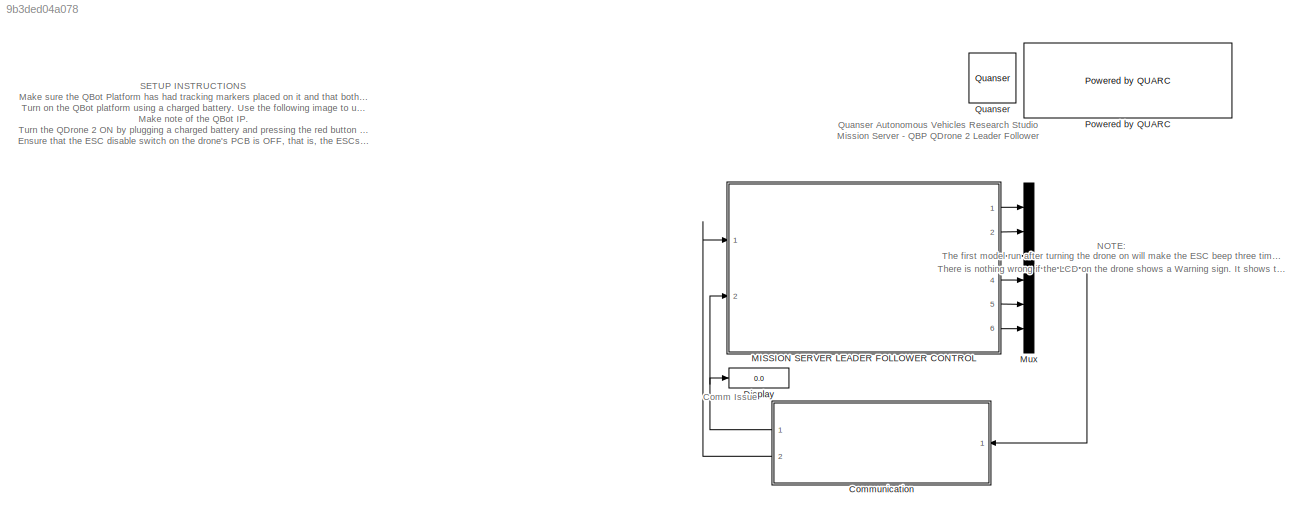
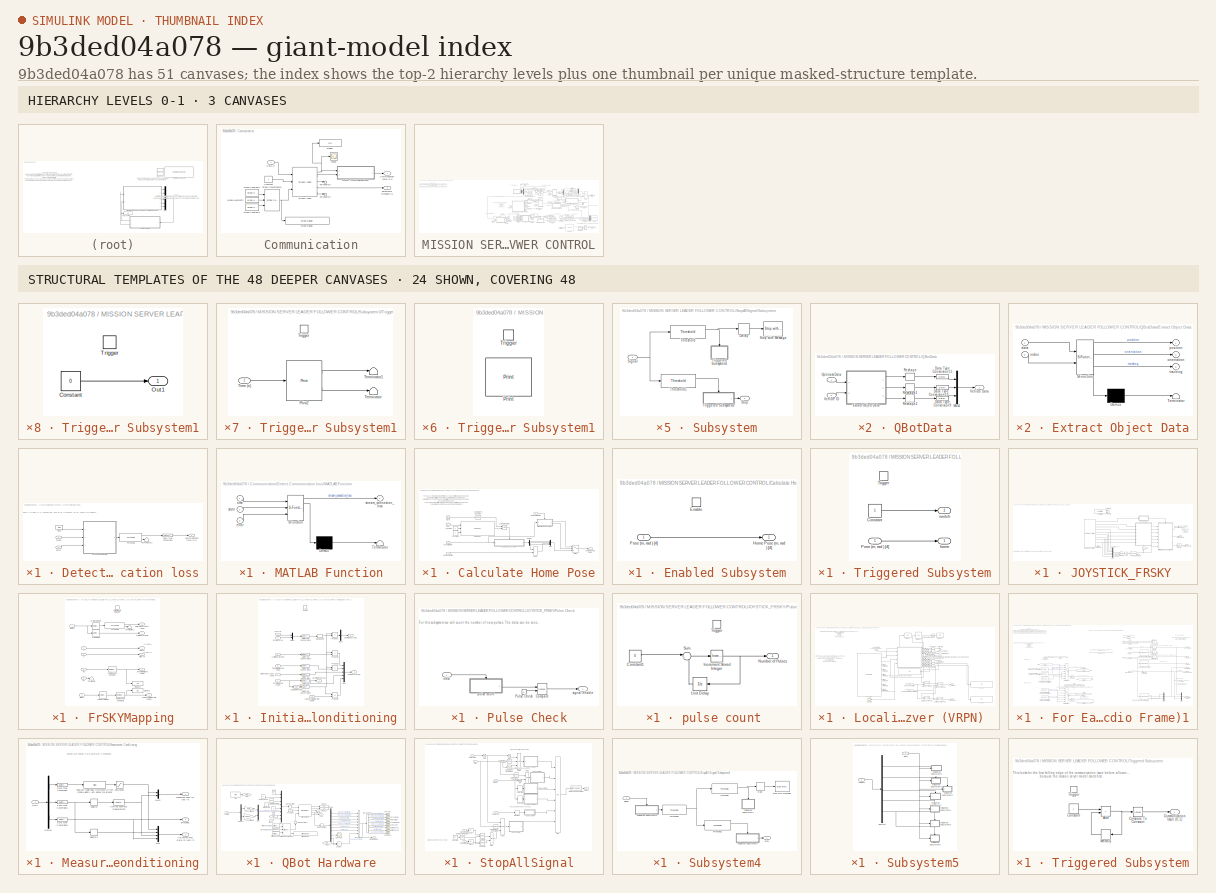
[diagram: thumbnail index - top-2 hierarchy levels (3 canvases) + 24 structural-template representatives of the remaining 48 canvases]
MODEL slx_9b3ded04a078
KIND model
CONFIG AbsTol = auto
CONFIG EnableMultiTasking = on
CONFIG FixedStep = 0.001
CONFIG MaxStep = auto
CONFIG MinStep = auto
CONFIG RelTol = 1e-3
CONFIG SampleTimeConstraint = Unconstrained
CONFIG SolverName = ode2
CONFIG StartTime = 0.0
CONFIG StopTime = inf
BLOCK [SubSystem] Communication
  Ports = [1, 2]
BLOCK [Outport] Communication/Communication Issue (0,1)
  VectorParamsAs1DForOutWhenUnconnected = off
BLOCK [Constant] Communication/Constant
BLOCK [Inport] Communication/Data In
BLOCK [SubSystem] Communication/Detect Communication loss
  Ports = [2, 1]
BLOCK [Outport] Communication/Detect Communication loss/Communication Issue (0,1)
  VectorParamsAs1DForOutWhenUnconnected = off
BLOCK [DataTypeConversion] Communication/Detect Communication loss/Data Type Conversion
  RndMeth = Floor
  SaturateOnIntegerOverflow = off
BLOCK [Inport] Communication/Detect Communication loss/Error
  NameLocation = top
  Port = 2
BLOCK [SubSystem] Communication/Detect Communication loss/MATLAB Function
  ErrorFcn = Stateflow.Translate.translate
  PermitHierarchicalResolution = ExplicitOnly
  Ports = [3, 1]
  SFBlockType = MATLAB Function
  TreatAsAtomicUnit = on
BLOCK [Demux] Communication/Detect Communication loss/MATLAB Function/ Demux 
  Outputs = 1
  Ports = [1, 1]
BLOCK [S-Function] Communication/Detect Communication loss/MATLAB Function/ SFunction 
  EnableBusSupport = off
  FunctionName = sf_sfun
  PortCounts = [3 2]
  Ports = [3, 2]
  SFcnIsStateOwnerBlock = off
  SFunctionDeploymentMode = off
  Tag = Stateflow S-Function 3
BLOCK [Terminator] Communication/Detect Communication loss/MATLAB Function/ Terminator 
BLOCK [Inport] Communication/Detect Communication loss/MATLAB Function/error
  Port = 3
BLOCK [Inport] Communication/Detect Communication loss/MATLAB Function/state
  Port = 2
BLOCK [Outport] Communication/Detect Communication loss/MATLAB Function/stream_connection_loss
  VectorParamsAs1DForOutWhenUnconnected = off
BLOCK [Inport] Communication/Detect Communication loss/MATLAB Function/time
BLOCK [Inport] Communication/Detect Communication loss/State
  NameLocation = top
BLOCK [Terminator] Communication/Detect Communication loss/Terminator2
BLOCK [Reference] Communication/Detect Communication loss/Threshold  REF=quarc_library/Discontinuities/Threshold
  Ports = [1, 2]
  SourceBlock = quarc_library/Discontinuities/Threshold
  SourceProductName = QUARC Targets
  SourceType = Threshold
BLOCK [Reference] Communication/Detect Communication loss/Time  REF=quarc_library/Sources/Time/Time
  NameLocation = top
  Ports = [0, 1]
  SourceBlock = quarc_library/Sources/Time/Time
  SourceProductName = QUARC Targets
  SourceType = Time
BLOCK [Display] Communication/Display
  Ports = [1]
BLOCK [Reference] Communication/Model Argument2  REF=quarc_library/Sources/Signals/Model Argument
  AttributesFormatString = (-%<argument_name>)
  NameLocation = left
  Ports = [0, 1]
  SourceBlock = quarc_library/Sources/Signals/Model Argument
  SourceProductName = QUARC Targets
  SourceType = Model Argument
BLOCK [Scope] Communication/Scope
  Floating = off
  NumInputPorts = 1
  Ports = [1]
  ScopeSpecificationString = Simulink.scopes.TimeScopeBlockCfg('CurrentConfiguration', extmgr.ConfigurationSet(extmgr.Configuration('Core','General UI',true),extmgr.Configuration('Core','Source UI',true),extmgr.Configuration('Sources','WiredSimulink',true,'DataLoggingVariableName','ScopeData3'),extmgr.Configuration('Visuals','Time Domain',true,'SerializedDisplays',{struct('MinYLimReal','-1.00000','MaxYLimReal','1.00000','YLab...<+1429ch>
BLOCK [Reference] Communication/Stream Client  REF=quarc_library/Communications/Basic/Stream Client
  Ports = [3, 5]
  SourceBlock = quarc_library/Communications/Basic/Stream Client
  SourceProductName = QUARC Targets
  SourceType = Stream Client
BLOCK [Reference] Communication/String Concatenate1  REF=quarc_library/Strings/String Concatenate
  Ports = [3, 1]
  SourceBlock = quarc_library/Strings/String Concatenate
  SourceProductName = QUARC Targets
  SourceType = String Concatenate
BLOCK [Reference] Communication/String Constant1  REF=quarc_library/Strings/String Constant
  AttributesFormatString = ":18011?nagle='off'"
  NameLocation = left
  Ports = [0, 1]
  SourceBlock = quarc_library/Strings/String Constant
  SourceProductName = QUARC Targets
  SourceType = String Constant
BLOCK [Reference] Communication/String Constant2  REF=quarc_library/Strings/String Constant
  AttributesFormatString = "tcpip://"
  NameLocation = left
  Ports = [0, 1]
  SourceBlock = quarc_library/Strings/String Constant
  SourceProductName = QUARC Targets
  SourceType = String Constant
BLOCK [Reference] Communication/String Display  REF=quarc_library/Strings/String Display
  Ports = [1]
  SourceBlock = quarc_library/Strings/String Display
  SourceProductName = QUARC Targets
  SourceType = String Display
BLOCK [Terminator] Communication/Terminator1
BLOCK [Terminator] Communication/Terminator2
BLOCK [Outport] Communication/Timestamp Received (s)
  Port = 2
  VectorParamsAs1DForOutWhenUnconnected = off
BLOCK [Display] Display
  Decimation = 1
  Ports = [1]
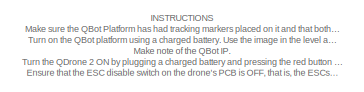
[diagram: MISSION SERVER LEADER FOLLOWER CONTROL - part 1/3, top left region]
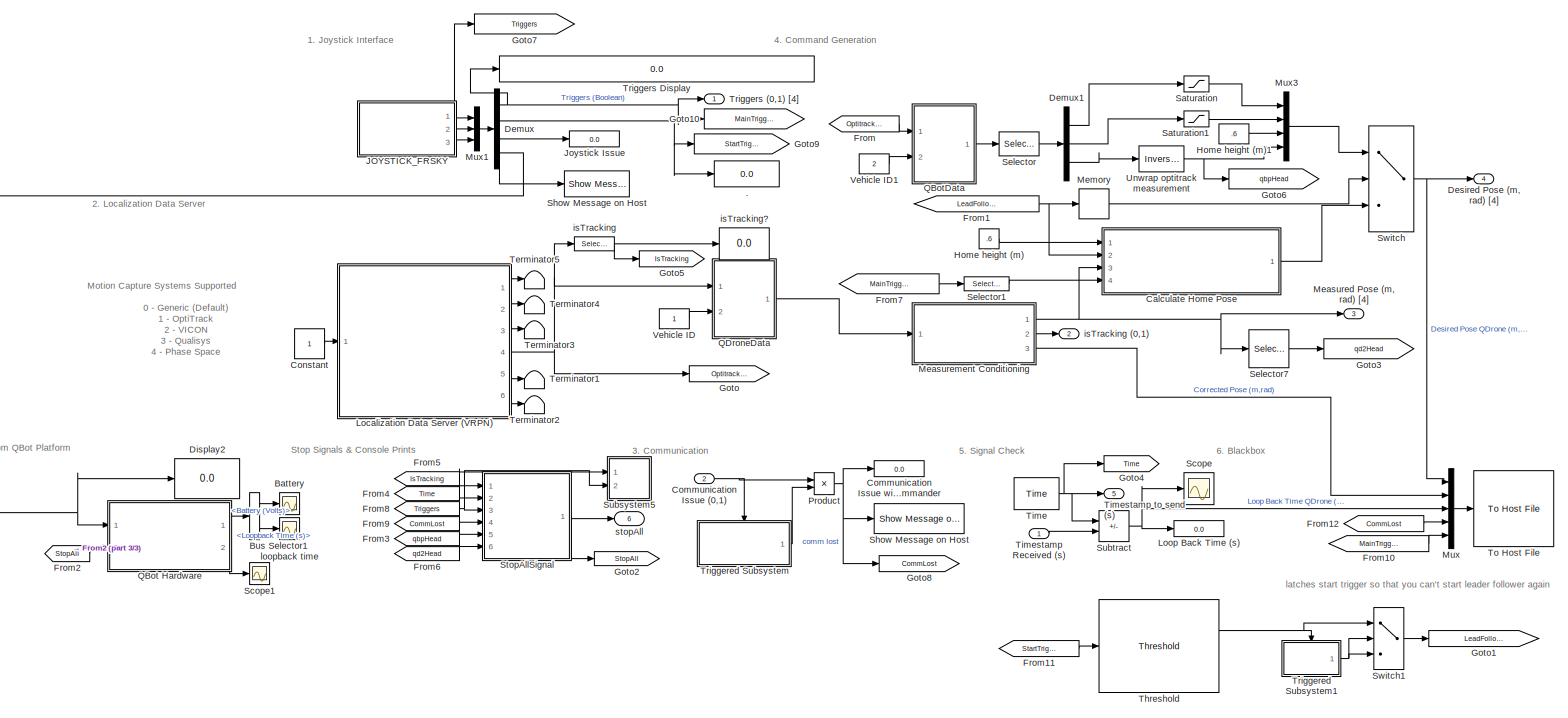
[diagram: MISSION SERVER LEADER FOLLOWER CONTROL - part 2/3, right side, full height]
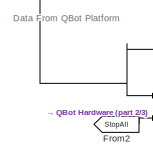
[diagram: MISSION SERVER LEADER FOLLOWER CONTROL - part 3/3, bottom center region]
BLOCK [SubSystem] MISSION SERVER LEADER FOLLOWER CONTROL
  Ports = [2, 6]
BLOCK [Display] MISSION SERVER LEADER FOLLOWER CONTROL/.
  Decimation = 1
  NameLocation = top
  Ports = [1]
BLOCK [Scope] MISSION SERVER LEADER FOLLOWER CONTROL/Battery
  Floating = off
  NameLocation = top
  NumInputPorts = 1
  Ports = [1]
  ScopeSpecificationString = Simulink.scopes.TimeScopeBlockCfg('CurrentConfiguration', extmgr.ConfigurationSet(extmgr.Configuration('Core','General UI',true),extmgr.Configuration('Core','Source UI',true),extmgr.Configuration('Sources','WiredSimulink',true,'DataLoggingVariableName','ScopeData9'),extmgr.Configuration('Visuals','Time Domain',true,'SerializedDisplays',{struct('MinYLimReal','12.81161','MaxYLimReal','12.96349','YLa...<+1408ch>
BLOCK [BusSelector] MISSION SERVER LEADER FOLLOWER CONTROL/Bus Selector1
  OutputSignals = Battery (Volts),Loopback Time (s)
  Ports = [1, 2]
BLOCK [SubSystem] MISSION SERVER LEADER FOLLOWER CONTROL/Calculate Home Pose
  Ports = [4, 1]
BLOCK [Inport] MISSION SERVER LEADER FOLLOWER CONTROL/Calculate Home Pose/Arm(0,1)
  Port = 4
BLOCK [Clock] MISSION SERVER LEADER FOLLOWER CONTROL/Calculate Home Pose/Clock
BLOCK [Reference] MISSION SERVER LEADER FOLLOWER CONTROL/Calculate Home Pose/Compare To Constant  REF=simulink/Logic and Bit
Operations/Compare
To Constant
  Ports = [1, 1]
  SourceBlock = simulink/Logic and Bit\nOperations/Compare\nTo Constant
  SourceType = Compare To Constant
BLOCK [Constant] MISSION SERVER LEADER FOLLOWER CONTROL/Calculate Home Pose/Constant
  Value = 0
BLOCK [Constant] MISSION SERVER LEADER FOLLOWER CONTROL/Calculate Home Pose/Constant1
BLOCK [Demux] MISSION SERVER LEADER FOLLOWER CONTROL/Calculate Home Pose/Demux
  Ports = [1, 4]
BLOCK [SubSystem] MISSION SERVER LEADER FOLLOWER CONTROL/Calculate Home Pose/Enabled Subsystem
  Ports = [1, 1, 1]
  TreatAsAtomicUnit = on
BLOCK [EnablePort] MISSION SERVER LEADER FOLLOWER CONTROL/Calculate Home Pose/Enabled Subsystem/Enable
  Ports = []
BLOCK [Outport] MISSION SERVER LEADER FOLLOWER CONTROL/Calculate Home Pose/Enabled Subsystem/Home Pose (m, rad ) [4]
  VectorParamsAs1DForOutWhenUnconnected = off
BLOCK [Inport] MISSION SERVER LEADER FOLLOWER CONTROL/Calculate Home Pose/Enabled Subsystem/Pose (m, rad ) [4] 
BLOCK [Outport] MISSION SERVER LEADER FOLLOWER CONTROL/Calculate Home Pose/Home Pose (m, rad) [4]
  NameLocation = right
  VectorParamsAs1DForOutWhenUnconnected = off
BLOCK [Inport] MISSION SERVER LEADER FOLLOWER CONTROL/Calculate Home Pose/Home height (m)
BLOCK [Logic] MISSION SERVER LEADER FOLLOWER CONTROL/Calculate Home Pose/Logical Operator
  AllPortsSameDT = off
  OutDataTypeStr = boolean
  Ports = [2, 1]
BLOCK [Mux] MISSION SERVER LEADER FOLLOWER CONTROL/Calculate Home Pose/Mux
  DisplayOption = bar
  Ports = [4, 1]
BLOCK [Reference] MISSION SERVER LEADER FOLLOWER CONTROL/Calculate Home Pose/One Shot  REF=quarc_library/Discontinuities/One Shot
  Ports = [3, 1]
  SourceBlock = quarc_library/Discontinuities/One Shot
  SourceProductName = QUARC Targets
  SourceType = One Shot
BLOCK [Inport] MISSION SERVER LEADER FOLLOWER CONTROL/Calculate Home Pose/Pose (m, rad ) [4]
  Port = 3
BLOCK [Sum] MISSION SERVER LEADER FOLLOWER CONTROL/Calculate Home Pose/Sum
  IconShape = rectangular
  Ports = [2, 1]
BLOCK [Switch] MISSION SERVER LEADER FOLLOWER CONTROL/Calculate Home Pose/Switch
  Criteria = u2 > Threshold
  InputSameDT = off
  SaturateOnIntegerOverflow = off
BLOCK [SubSystem] MISSION SERVER LEADER FOLLOWER CONTROL/Calculate Home Pose/Triggered Subsystem
  Ports = [1, 2, 0, 1]
  TreatAsAtomicUnit = on
BLOCK [Constant] MISSION SERVER LEADER FOLLOWER CONTROL/Calculate Home Pose/Triggered Subsystem/Constant
BLOCK [Inport] MISSION SERVER LEADER FOLLOWER CONTROL/Calculate Home Pose/Triggered Subsystem/Pose (m, rad ) [4]
BLOCK [TriggerPort] MISSION SERVER LEADER FOLLOWER CONTROL/Calculate Home Pose/Triggered Subsystem/Trigger
  Ports = []
  StatesWhenEnabling = held
  TriggerType = falling
  VariantControl = (inherit)
BLOCK [Outport] MISSION SERVER LEADER FOLLOWER CONTROL/Calculate Home Pose/Triggered Subsystem/home
  InitialOutput = [0]
BLOCK [Outport] MISSION SERVER LEADER FOLLOWER CONTROL/Calculate Home Pose/Triggered Subsystem/switch
  InitialOutput = [0]
  Port = 2
BLOCK [Inport] MISSION SERVER LEADER FOLLOWER CONTROL/Calculate Home Pose/leadFollowStart
  Port = 2
BLOCK [Inport] MISSION SERVER LEADER FOLLOWER CONTROL/Communication Issue (0,1)
  Port = 2
BLOCK [Display] MISSION SERVER LEADER FOLLOWER CONTROL/Communication Issue with Commander
  Decimation = 1
  Ports = [1]
BLOCK [Constant] MISSION SERVER LEADER FOLLOWER CONTROL/Constant
BLOCK [Demux] MISSION SERVER LEADER FOLLOWER CONTROL/Demux
  Outputs = [4 1 1 2]
  Ports = [1, 4]
BLOCK [Demux] MISSION SERVER LEADER FOLLOWER CONTROL/Demux1
  Outputs = 3
  Ports = [1, 3]
BLOCK [Outport] MISSION SERVER LEADER FOLLOWER CONTROL/Desired Pose (m, rad) [4]
  NameLocation = top
  Port = 4
  VectorParamsAs1DForOutWhenUnconnected = off
BLOCK [Display] MISSION SERVER LEADER FOLLOWER CONTROL/Display2
  Decimation = 1
  Ports = [1]
BLOCK [From] MISSION SERVER LEADER FOLLOWER CONTROL/From
  GotoTag = OptitrackData
BLOCK [From] MISSION SERVER LEADER FOLLOWER CONTROL/From1
  GotoTag = LeadFollowStart
BLOCK [From] MISSION SERVER LEADER FOLLOWER CONTROL/From10
  GotoTag = MainTriggers
BLOCK [From] MISSION SERVER LEADER FOLLOWER CONTROL/From11
  GotoTag = StartTrigger
BLOCK [From] MISSION SERVER LEADER FOLLOWER CONTROL/From12
  GotoTag = CommLost
BLOCK [From] MISSION SERVER LEADER FOLLOWER CONTROL/From2
  GotoTag = StopAll
BLOCK [From] MISSION SERVER LEADER FOLLOWER CONTROL/From3
  GotoTag = qbpHead
BLOCK [From] MISSION SERVER LEADER FOLLOWER CONTROL/From4
  GotoTag = Time
BLOCK [From] MISSION SERVER LEADER FOLLOWER CONTROL/From5
  GotoTag = IsTracking
BLOCK [From] MISSION SERVER LEADER FOLLOWER CONTROL/From6
  GotoTag = qd2Head
BLOCK [From] MISSION SERVER LEADER FOLLOWER CONTROL/From7
  GotoTag = MainTriggers
BLOCK [From] MISSION SERVER LEADER FOLLOWER CONTROL/From8
  GotoTag = Triggers
BLOCK [From] MISSION SERVER LEADER FOLLOWER CONTROL/From9
  GotoTag = CommLost
BLOCK [Goto] MISSION SERVER LEADER FOLLOWER CONTROL/Goto
  GotoTag = OptitrackData
BLOCK [Goto] MISSION SERVER LEADER FOLLOWER CONTROL/Goto1
  GotoTag = LeadFollowStart
BLOCK [Goto] MISSION SERVER LEADER FOLLOWER CONTROL/Goto10
  GotoTag = MainTriggers
BLOCK [Goto] MISSION SERVER LEADER FOLLOWER CONTROL/Goto2
  GotoTag = StopAll
BLOCK [Goto] MISSION SERVER LEADER FOLLOWER CONTROL/Goto3
  GotoTag = qd2Head
BLOCK [Goto] MISSION SERVER LEADER FOLLOWER CONTROL/Goto4
  GotoTag = Time
BLOCK [Goto] MISSION SERVER LEADER FOLLOWER CONTROL/Goto5
  GotoTag = IsTracking
BLOCK [Goto] MISSION SERVER LEADER FOLLOWER CONTROL/Goto6
  GotoTag = qbpHead
BLOCK [Goto] MISSION SERVER LEADER FOLLOWER CONTROL/Goto7
  GotoTag = Triggers
BLOCK [Goto] MISSION SERVER LEADER FOLLOWER CONTROL/Goto8
  GotoTag = CommLost
BLOCK [Goto] MISSION SERVER LEADER FOLLOWER CONTROL/Goto9
  GotoTag = StartTrigger
BLOCK [Constant] MISSION SERVER LEADER FOLLOWER CONTROL/Home height (m)
  Value = .6
BLOCK [Constant] MISSION SERVER LEADER FOLLOWER CONTROL/Home height (m)1
  Value = .6
BLOCK [SubSystem] MISSION SERVER LEADER FOLLOWER CONTROL/JOYSTICK_FRSKY
  Ports = [0, 3]
BLOCK [Logic] MISSION SERVER LEADER FOLLOWER CONTROL/JOYSTICK_FRSKY/AND
  AllPortsSameDT = off
  Inputs = 1
  OutDataTypeStr = boolean
  Ports = [1, 1]
BLOCK [Outport] MISSION SERVER LEADER FOLLOWER CONTROL/JOYSTICK_FRSKY/Commands (%) [2]
  Port = 3
  VectorParamsAs1DForOutWhenUnconnected = off
BLOCK [Reference] MISSION SERVER LEADER FOLLOWER CONTROL/JOYSTICK_FRSKY/Compare  REF=quarc_library/Logic Operations/Compare
  Ports = [2, 1]
  SourceBlock = quarc_library/Logic Operations/Compare
  SourceProductName = QUARC Targets
  SourceType = Compare
BLOCK [Constant] MISSION SERVER LEADER FOLLOWER CONTROL/JOYSTICK_FRSKY/Constant
  Value = -1*ones(1,6)
BLOCK [SubSystem] MISSION SERVER LEADER FOLLOWER CONTROL/JOYSTICK_FRSKY/FrSKYMapping
  NameLocation = top
  Ports = [6, 6, 1]
BLOCK [Selector] MISSION SERVER LEADER FOLLOWER CONTROL/JOYSTICK_FRSKY/FrSKYMapping/Arm selector
  IndexOptions = Index vector (dialog)
  Indices = [2]
  InputPortWidth = 32
  OutputSizes = 1
  Ports = [1, 1]
BLOCK [Outport] MISSION SERVER LEADER FOLLOWER CONTROL/JOYSTICK_FRSKY/FrSKYMapping/Arm//Disarm (bool) 
  Port = 4
  VectorParamsAs1DForOutWhenUnconnected = off
BLOCK [Inport] MISSION SERVER LEADER FOLLOWER CONTROL/JOYSTICK_FRSKY/FrSKYMapping/Buttons
BLOCK [Reference] MISSION SERVER LEADER FOLLOWER CONTROL/JOYSTICK_FRSKY/FrSKYMapping/Compare To Constant  REF=simulink/Logic and Bit
Operations/Compare
To Constant
  Ports = [1, 1]
  SourceBlock = simulink/Logic and Bit\nOperations/Compare\nTo Constant
  SourceType = Compare To Constant
BLOCK [Reference] MISSION SERVER LEADER FOLLOWER CONTROL/JOYSTICK_FRSKY/FrSKYMapping/Compare To Constant1  REF=simulink/Logic and Bit
Operations/Compare
To Constant
  Ports = [1, 1]
  SourceBlock = simulink/Logic and Bit\nOperations/Compare\nTo Constant
  SourceType = Compare To Constant
BLOCK [Display] MISSION SERVER LEADER FOLLOWER CONTROL/JOYSTICK_FRSKY/FrSKYMapping/Display2
  Decimation = 1
  Ports = [1]
BLOCK [Display] MISSION SERVER LEADER FOLLOWER CONTROL/JOYSTICK_FRSKY/FrSKYMapping/Display5
  Decimation = 1
  Ports = [1]
BLOCK [Selector] MISSION SERVER LEADER FOLLOWER CONTROL/JOYSTICK_FRSKY/FrSKYMapping/E-Stop Selector
  IndexOptions = Index vector (dialog)
  Indices = [1]
  InputPortWidth = 32
  NameLocation = top
  OutputSizes = 1
  Ports = [1, 1]
BLOCK [Outport] MISSION SERVER LEADER FOLLOWER CONTROL/JOYSTICK_FRSKY/FrSKYMapping/Emergency Abort (bool)
  VectorParamsAs1DForOutWhenUnconnected = off
BLOCK [Selector] MISSION SERVER LEADER FOLLOWER CONTROL/JOYSTICK_FRSKY/FrSKYMapping/Leader Follower
  IndexOptions = Index vector (dialog)
  Indices = [1]
  InputPortWidth = 2
  NameLocation = top
  OutputSizes = 1
  Ports = [1, 1]
BLOCK [Outport] MISSION SERVER LEADER FOLLOWER CONTROL/JOYSTICK_FRSKY/FrSKYMapping/LeaderFollowerStart(bool)
  Port = 6
  VectorParamsAs1DForOutWhenUnconnected = off
BLOCK [Outport] MISSION SERVER LEADER FOLLOWER CONTROL/JOYSTICK_FRSKY/FrSKYMapping/Pitch (%)
  Port = 3
  VectorParamsAs1DForOutWhenUnconnected = off
BLOCK [Outport] MISSION SERVER LEADER FOLLOWER CONTROL/JOYSTICK_FRSKY/FrSKYMapping/Roll (%)
  Port = 2
  VectorParamsAs1DForOutWhenUnconnected = off
BLOCK [Inport] MISSION SERVER LEADER FOLLOWER CONTROL/JOYSTICK_FRSKY/FrSKYMapping/Ry
  Port = 5
BLOCK [Inport] MISSION SERVER LEADER FOLLOWER CONTROL/JOYSTICK_FRSKY/FrSKYMapping/Rz
  Port = 6
BLOCK [Inport] MISSION SERVER LEADER FOLLOWER CONTROL/JOYSTICK_FRSKY/FrSKYMapping/Sliders
  Port = 2
BLOCK [Outport] MISSION SERVER LEADER FOLLOWER CONTROL/JOYSTICK_FRSKY/FrSKYMapping/Takeoff//Autoland (bool)
  Port = 5
  VectorParamsAs1DForOutWhenUnconnected = off
BLOCK [Terminator] MISSION SERVER LEADER FOLLOWER CONTROL/JOYSTICK_FRSKY/FrSKYMapping/Terminator
BLOCK [Terminator] MISSION SERVER LEADER FOLLOWER CONTROL/JOYSTICK_FRSKY/FrSKYMapping/Terminator2
BLOCK [Reference] MISSION SERVER LEADER FOLLOWER CONTROL/JOYSTICK_FRSKY/FrSKYMapping/Threshold  REF=quarc_library/Discontinuities/Threshold
  Ports = [1, 2]
  SourceBlock = quarc_library/Discontinuities/Threshold
  SourceProductName = QUARC Targets
  SourceType = Threshold
BLOCK [EnablePort] MISSION SERVER LEADER FOLLOWER CONTROL/JOYSTICK_FRSKY/FrSKYMapping/Valid Signals Detected
  Ports = []
BLOCK [Inport] MISSION SERVER LEADER FOLLOWER CONTROL/JOYSTICK_FRSKY/FrSKYMapping/y
  Port = 3
BLOCK [Inport] MISSION SERVER LEADER FOLLOWER CONTROL/JOYSTICK_FRSKY/FrSKYMapping/z
  Port = 4
BLOCK [Reference] MISSION SERVER LEADER FOLLOWER CONTROL/JOYSTICK_FRSKY/Host Game Controller  REF=quarc_library/Devices/Peripherals/Host/Host Game Controller
  Ports = [0, 10]
  SourceBlock = quarc_library/Devices/Peripherals/Host/Host Game Controller
  SourceProductName = QUARC Targets
  SourceType = Host Game Controller
BLOCK [Reference] MISSION SERVER LEADER FOLLOWER CONTROL/JOYSTICK_FRSKY/Host Initialize  REF=quarc_library/Devices/Peripherals/Host/Host Initialize
  AttributesFormatString = "tcpip://localhost:18005"
  Ports = [0, 2]
  SourceBlock = quarc_library/Devices/Peripherals/Host/Host Initialize
  SourceProductName = QUARC Targets
  SourceType = Host Initialize
BLOCK [SubSystem] MISSION SERVER LEADER FOLLOWER CONTROL/JOYSTICK_FRSKY/Initialization and Conditioning
  Ports = [7, 3, 1]
  TreatAsAtomicUnit = on
BLOCK [Inport] MISSION SERVER LEADER FOLLOWER CONTROL/JOYSTICK_FRSKY/Initialization and Conditioning/Arm//Disarm (bool)
  Port = 4
BLOCK [Outport] MISSION SERVER LEADER FOLLOWER CONTROL/JOYSTICK_FRSKY/Initialization and Conditioning/Commands (%) [2]
  InitialOutput = 0
  NameLocation = top
  Port = 3
  VectorParamsAs1DForOutWhenUnconnected = off
BLOCK [DataTypeConversion] MISSION SERVER LEADER FOLLOWER CONTROL/JOYSTICK_FRSKY/Initialization and Conditioning/Data Type Conversion2
  RndMeth = Floor
  SaturateOnIntegerOverflow = off
BLOCK [DataTypeConversion] MISSION SERVER LEADER FOLLOWER CONTROL/JOYSTICK_FRSKY/Initialization and Conditioning/Data Type Conversion3
  RndMeth = Floor
  SaturateOnIntegerOverflow = off
BLOCK [DataTypeConversion] MISSION SERVER LEADER FOLLOWER CONTROL/JOYSTICK_FRSKY/Initialization and Conditioning/Data Type Conversion4
  RndMeth = Floor
  SaturateOnIntegerOverflow = off
BLOCK [DataTypeConversion] MISSION SERVER LEADER FOLLOWER CONTROL/JOYSTICK_FRSKY/Initialization and Conditioning/Data Type Conversion5
  RndMeth = Floor
  SaturateOnIntegerOverflow = off
BLOCK [DataTypeConversion] MISSION SERVER LEADER FOLLOWER CONTROL/JOYSTICK_FRSKY/Initialization and Conditioning/Data Type Conversion6
  RndMeth = Floor
  SaturateOnIntegerOverflow = off
BLOCK [DataTypeConversion] MISSION SERVER LEADER FOLLOWER CONTROL/JOYSTICK_FRSKY/Initialization and Conditioning/Data Type Conversion7
  RndMeth = Floor
  SaturateOnIntegerOverflow = off
BLOCK [DeadZone] MISSION SERVER LEADER FOLLOWER CONTROL/JOYSTICK_FRSKY/Initialization and Conditioning/Dead Zone
  LowerValue = -0.01
  UpperValue = 0.01
BLOCK [Inport] MISSION SERVER LEADER FOLLOWER CONTROL/JOYSTICK_FRSKY/Initialization and Conditioning/Emergency Abort (bool)
BLOCK [EnablePort] MISSION SERVER LEADER FOLLOWER CONTROL/JOYSTICK_FRSKY/Initialization and Conditioning/Enable
  Ports = []
  StatesWhenEnabling = reset
BLOCK [Inport] MISSION SERVER LEADER FOLLOWER CONTROL/JOYSTICK_FRSKY/Initialization and Conditioning/Forward (%)
  NameLocation = left
  Port = 3
BLOCK [Outport] MISSION SERVER LEADER FOLLOWER CONTROL/JOYSTICK_FRSKY/Initialization and Conditioning/Joystick Issue (0,1)
  InitialOutput = 0
  NameLocation = top
  VectorParamsAs1DForOutWhenUnconnected = off
BLOCK [Inport] MISSION SERVER LEADER FOLLOWER CONTROL/JOYSTICK_FRSKY/Initialization and Conditioning/Joystick Issue (bool)
  Port = 7
BLOCK [Inport] MISSION SERVER LEADER FOLLOWER CONTROL/JOYSTICK_FRSKY/Initialization and Conditioning/LeaderFollowerStart(bool)
  Port = 6
BLOCK [Logic] MISSION SERVER LEADER FOLLOWER CONTROL/JOYSTICK_FRSKY/Initialization and Conditioning/Logical Operator
  AllPortsSameDT = off
  Operator = NOT
  OutDataTypeStr = boolean
  Ports = [1, 1]
BLOCK [Mux] MISSION SERVER LEADER FOLLOWER CONTROL/JOYSTICK_FRSKY/Initialization and Conditioning/Mux
  DisplayOption = bar
  Inputs = 5
  Ports = [5, 1]
BLOCK [Mux] MISSION SERVER LEADER FOLLOWER CONTROL/JOYSTICK_FRSKY/Initialization and Conditioning/Mux1
  DisplayOption = bar
  Inputs = 2
  Ports = [2, 1]
BLOCK [Mux] MISSION SERVER LEADER FOLLOWER CONTROL/JOYSTICK_FRSKY/Initialization and Conditioning/Mux2
  DisplayOption = bar
  Inputs = 1
  Ports = [1, 1]
BLOCK [Product] MISSION SERVER LEADER FOLLOWER CONTROL/JOYSTICK_FRSKY/Initialization and Conditioning/Product
  Ports = [2, 1]
BLOCK [Product] MISSION SERVER LEADER FOLLOWER CONTROL/JOYSTICK_FRSKY/Initialization and Conditioning/Product1
  Ports = [2, 1]
BLOCK [Product] MISSION SERVER LEADER FOLLOWER CONTROL/JOYSTICK_FRSKY/Initialization and Conditioning/Product2
  Ports = [2, 1]
BLOCK [Product] MISSION SERVER LEADER FOLLOWER CONTROL/JOYSTICK_FRSKY/Initialization and Conditioning/Product3
  Ports = [2, 1]
BLOCK [Inport] MISSION SERVER LEADER FOLLOWER CONTROL/JOYSTICK_FRSKY/Initialization and Conditioning/Takeoff//AutoLand (bool)
  Port = 5
BLOCK [Outport] MISSION SERVER LEADER FOLLOWER CONTROL/JOYSTICK_FRSKY/Initialization and Conditioning/Triggers (0,1) [5]
  InitialOutput = 0
  NameLocation = top
  Port = 2
  VectorParamsAs1DForOutWhenUnconnected = off
BLOCK [Inport] MISSION SERVER LEADER FOLLOWER CONTROL/JOYSTICK_FRSKY/Initialization and Conditioning/Turn (%)
  NameLocation = left
  Port = 2
BLOCK [Outport] MISSION SERVER LEADER FOLLOWER CONTROL/JOYSTICK_FRSKY/Joystick Issue (0,1)
  Port = 2
  VectorParamsAs1DForOutWhenUnconnected = off
BLOCK [Mux] MISSION SERVER LEADER FOLLOWER CONTROL/JOYSTICK_FRSKY/Mux
  DisplayOption = bar
  Inputs = 6
  Ports = [6, 1]
BLOCK [Logic] MISSION SERVER LEADER FOLLOWER CONTROL/JOYSTICK_FRSKY/NOT
  AllPortsSameDT = off
  IconShape = distinctive
  NameLocation = right
  Operator = NOT
  OutDataTypeStr = boolean
  Ports = [1, 1]
BLOCK [SubSystem] MISSION SERVER LEADER FOLLOWER CONTROL/JOYSTICK_FRSKY/Pulse Check
  NameLocation = top
  Ports = [1, 1]
  TreatAsAtomicUnit = on
BLOCK [Reference] MISSION SERVER LEADER FOLLOWER CONTROL/JOYSTICK_FRSKY/Pulse Check/Compare  REF=quarc_library/Logic Operations/Compare
  Ports = [2, 1]
  SourceBlock = quarc_library/Logic Operations/Compare
  SourceProductName = QUARC Targets
  SourceType = Compare
BLOCK [Constant] MISSION SERVER LEADER FOLLOWER CONTROL/JOYSTICK_FRSKY/Pulse Check/Pulse Check
BLOCK [Inport] MISSION SERVER LEADER FOLLOWER CONTROL/JOYSTICK_FRSKY/Pulse Check/new
BLOCK [SubSystem] MISSION SERVER LEADER FOLLOWER CONTROL/JOYSTICK_FRSKY/Pulse Check/pulse count 
  Ports = [0, 1, 0, 1]
  TreatAsAtomicUnit = on
BLOCK [Constant] MISSION SERVER LEADER FOLLOWER CONTROL/JOYSTICK_FRSKY/Pulse Check/pulse count /Constant1
  Value = 0
BLOCK [Reference] MISSION SERVER LEADER FOLLOWER CONTROL/JOYSTICK_FRSKY/Pulse Check/pulse count /Increment Stored Integer  REF=simulink/Additional Math
& Discrete/Additional Math:
Increment - Decrement/Increment
Stored Integer
  Ports = [1, 1]
  SourceBlock = simulink/Additional Math\n& Discrete/Additional Math:\nIncrement - Decrement/Increment\nStored Integer
  SourceType = Stored Integer Value Increment
BLOCK [Outport] MISSION SERVER LEADER FOLLOWER CONTROL/JOYSTICK_FRSKY/Pulse Check/pulse count /Number of Pulses
  VectorParamsAs1DForOutWhenUnconnected = off
BLOCK [Sum] MISSION SERVER LEADER FOLLOWER CONTROL/JOYSTICK_FRSKY/Pulse Check/pulse count /Sum
  Inputs = |++
  Ports = [2, 1]
BLOCK [TriggerPort] MISSION SERVER LEADER FOLLOWER CONTROL/JOYSTICK_FRSKY/Pulse Check/pulse count /Trigger
  Ports = []
  StatesWhenEnabling = held
  VariantControl = Variant
BLOCK [UnitDelay] MISSION SERVER LEADER FOLLOWER CONTROL/JOYSTICK_FRSKY/Pulse Check/pulse count /Unit Delay
  HasFrameUpgradeWarning = on
  NameLocation = top
  SampleTime = -1
BLOCK [Outport] MISSION SERVER LEADER FOLLOWER CONTROL/JOYSTICK_FRSKY/Pulse Check/signal enable
  InitialOutput = 0
  VectorParamsAs1DForOutWhenUnconnected = off
BLOCK [Selector] MISSION SERVER LEADER FOLLOWER CONTROL/JOYSTICK_FRSKY/Selector
  IndexOptions = Index vector (dialog)
  Indices = [2 1]
  InputPortWidth = 2
  OutputSizes = 1
  Ports = [1, 1]
BLOCK [Terminator] MISSION SERVER LEADER FOLLOWER CONTROL/JOYSTICK_FRSKY/Terminator
BLOCK [Terminator] MISSION SERVER LEADER FOLLOWER CONTROL/JOYSTICK_FRSKY/Terminator1
BLOCK [Terminator] MISSION SERVER LEADER FOLLOWER CONTROL/JOYSTICK_FRSKY/Terminator2
BLOCK [Terminator] MISSION SERVER LEADER FOLLOWER CONTROL/JOYSTICK_FRSKY/Terminator4
BLOCK [Reference] MISSION SERVER LEADER FOLLOWER CONTROL/JOYSTICK_FRSKY/Threshold  REF=quarc_library/Discontinuities/Threshold
  Ports = [1, 2]
  SourceBlock = quarc_library/Discontinuities/Threshold
  SourceProductName = QUARC Targets
  SourceType = Threshold
BLOCK [Outport] MISSION SERVER LEADER FOLLOWER CONTROL/JOYSTICK_FRSKY/Triggers (0,1) [5]
  VectorParamsAs1DForOutWhenUnconnected = off
BLOCK [Display] MISSION SERVER LEADER FOLLOWER CONTROL/Joystick Issue
  Decimation = 1
  Ports = [1]
BLOCK [SubSystem] MISSION SERVER LEADER FOLLOWER CONTROL/Localization Data Server (VRPN) 
  Ports = [1, 6]
BLOCK [Outport] MISSION SERVER LEADER FOLLOWER CONTROL/Localization Data Server (VRPN) /Agent Data [7n]
  NameLocation = right
  Port = 4
  VectorParamsAs1DForOutWhenUnconnected = off
BLOCK [Display] MISSION SERVER LEADER FOLLOWER CONTROL/Localization Data Server (VRPN) /Display
  Decimation = 1
  Ports = [1]
BLOCK [Display] MISSION SERVER LEADER FOLLOWER CONTROL/Localization Data Server (VRPN) /Display1
  Decimation = 1
  Ports = [1]
BLOCK [Display] MISSION SERVER LEADER FOLLOWER CONTROL/Localization Data Server (VRPN) /Display2
  Decimation = 1
  Ports = [1]
BLOCK [Constant] MISSION SERVER LEADER FOLLOWER CONTROL/Localization Data Server (VRPN) /Dummy Row for Transformation
  Value = [0 0 0 1]
  VectorParams1D = off
BLOCK [Constant] MISSION SERVER LEADER FOLLOWER CONTROL/Localization Data Server (VRPN) /Dummy Translation
  NameLocation = top
  Value = [0 0 0]'
  VectorParams1D = off
BLOCK [SubSystem] MISSION SERVER LEADER FOLLOWER CONTROL/Localization Data Server (VRPN) /For Each Subsystem (Convention Correction: Motive Frame to Research Studio Frame)1
  NameLocation = top
  Ports = [4, 8]
  TreatAsAtomicUnit = on
BLOCK [Constant] MISSION SERVER LEADER FOLLOWER CONTROL/Localization Data Server (VRPN) /For Each Subsystem (Convention Correction: Motive Frame to Research Studio Frame)1/ Generic Rotate Matrix R_VPRN (column vectors are basis vectors) of VF w.r.t. TNF1
  NameLocation = left
  Value = [1 0 0 ;0 1 0;0 0 1]
  VectorParams1D = off
BLOCK [Constant] MISSION SERVER LEADER FOLLOWER CONTROL/Localization Data Server (VRPN) /For Each Subsystem (Convention Correction: Motive Frame to Research Studio Frame)1/ Qualisys Rotate Matrix R_VPRN (column vectors are basis vectors) of VF w.r.t. TNF
  NameLocation = left
  Value = [0 1 0;0 0 1;1 0 0]'
  VectorParams1D = off
BLOCK [DataTypeConversion] MISSION SERVER LEADER FOLLOWER CONTROL/Localization Data Server (VRPN) /For Each Subsystem (Convention Correction: Motive Frame to Research Studio Frame)1/Data Type Conversion
  OutDataTypeStr = double
  RndMeth = Floor
  SaturateOnIntegerOverflow = off
BLOCK [Reference] MISSION SERVER LEADER FOLLOWER CONTROL/Localization Data Server (VRPN) /For Each Subsystem (Convention Correction: Motive Frame to Research Studio Frame)1/Euler Angles from Rotation Matrix (Relative ZYX)  REF=quarc_library/Math Operations/Matrices/Euler Angles from
Rotation Matrix
  Ports = [1, 3]
  SourceBlock = quarc_library/Math Operations/Matrices/Euler Angles from\nRotation Matrix
  SourceProductName = QUARC Targets
  SourceType = Euler Angles from Rotation Matrix
BLOCK [ForEach] MISSION SERVER LEADER FOLLOWER CONTROL/Localization Data Server (VRPN) /For Each Subsystem (Convention Correction: Motive Frame to Research Studio Frame)1/For Each
  DisableCoverage = on
  Ports = []
BLOCK [From] MISSION SERVER LEADER FOLLOWER CONTROL/Localization Data Server (VRPN) /For Each Subsystem (Convention Correction: Motive Frame to Research Studio Frame)1/From
  GotoTag = system_index
BLOCK [From] MISSION SERVER LEADER FOLLOWER CONTROL/Localization Data Server (VRPN) /For Each Subsystem (Convention Correction: Motive Frame to Research Studio Frame)1/From1
  GotoTag = R_Tool
BLOCK [From] MISSION SERVER LEADER FOLLOWER CONTROL/Localization Data Server (VRPN) /For Each Subsystem (Convention Correction: Motive Frame to Research Studio Frame)1/From2
  GotoTag = R_VRPN
BLOCK [From] MISSION SERVER LEADER FOLLOWER CONTROL/Localization Data Server (VRPN) /For Each Subsystem (Convention Correction: Motive Frame to Research Studio Frame)1/From4
  GotoTag = R_Tool_transpose
BLOCK [Constant] MISSION SERVER LEADER FOLLOWER CONTROL/Localization Data Server (VRPN) /For Each Subsystem (Convention Correction: Motive Frame to Research Studio Frame)1/Generic Rotate Matrix R_Tool (column vectors are basis vectors) of TNF w.r.t. RSF
  NameLocation = left
  Value = [1 0 0;0 1 0 ;0 0 1]
  VectorParams1D = off
BLOCK [Goto] MISSION SERVER LEADER FOLLOWER CONTROL/Localization Data Server (VRPN) /For Each Subsystem (Convention Correction: Motive Frame to Research Studio Frame)1/Goto
  GotoTag = system_index
BLOCK [Goto] MISSION SERVER LEADER FOLLOWER CONTROL/Localization Data Server (VRPN) /For Each Subsystem (Convention Correction: Motive Frame to Research Studio Frame)1/Goto1
  GotoTag = R_Tool
BLOCK [Goto] MISSION SERVER LEADER FOLLOWER CONTROL/Localization Data Server (VRPN) /For Each Subsystem (Convention Correction: Motive Frame to Research Studio Frame)1/Goto2
  GotoTag = R_Tool_transpose
BLOCK [Goto] MISSION SERVER LEADER FOLLOWER CONTROL/Localization Data Server (VRPN) /For Each Subsystem (Convention Correction: Motive Frame to Research Studio Frame)1/Goto3
  GotoTag = R_VRPN
BLOCK [Goto] MISSION SERVER LEADER FOLLOWER CONTROL/Localization Data Server (VRPN) /For Each Subsystem (Convention Correction: Motive Frame to Research Studio Frame)1/Goto4
  Commented = on
  GotoTag = R_VRPN_transpose
BLOCK [Inport] MISSION SERVER LEADER FOLLOWER CONTROL/Localization Data Server (VRPN) /For Each Subsystem (Convention Correction: Motive Frame to Research Studio Frame)1/Localization System Index
  NameLocation = left
BLOCK [Product] MISSION SERVER LEADER FOLLOWER CONTROL/Localization Data Server (VRPN) /For Each Subsystem (Convention Correction: Motive Frame to Research Studio Frame)1/Matrix Multiply
  Multiplication = Matrix(*)
  Ports = [2, 1]
BLOCK [Product] MISSION SERVER LEADER FOLLOWER CONTROL/Localization Data Server (VRPN) /For Each Subsystem (Convention Correction: Motive Frame to Research Studio Frame)1/Matrix Multiply1
  Multiplication = Matrix(*)
  Ports = [2, 1]
BLOCK [Product] MISSION SERVER LEADER FOLLOWER CONTROL/Localization Data Server (VRPN) /For Each Subsystem (Convention Correction: Motive Frame to Research Studio Frame)1/Matrix Multiply2
  Multiplication = Matrix(*)
  Ports = [2, 1]
BLOCK [Product] MISSION SERVER LEADER FOLLOWER CONTROL/Localization Data Server (VRPN) /For Each Subsystem (Convention Correction: Motive Frame to Research Studio Frame)1/Matrix Multiply3
  Multiplication = Matrix(*)
  Ports = [2, 1]
BLOCK [MultiPortSwitch] MISSION SERVER LEADER FOLLOWER CONTROL/Localization Data Server (VRPN) /For Each Subsystem (Convention Correction: Motive Frame to Research Studio Frame)1/Multiport Switch
  DataPortForDefault = Additional data port
  DataPortOrder = Zero-based contiguous
  DiagnosticForDefault = None
  InputSameDT = off
  Inputs = 5
  Ports = [7, 1]
  SaturateOnIntegerOverflow = off
  zeroidx = on
BLOCK [MultiPortSwitch] MISSION SERVER LEADER FOLLOWER CONTROL/Localization Data Server (VRPN) /For Each Subsystem (Convention Correction: Motive Frame to Research Studio Frame)1/Multiport Switch1
  DataPortForDefault = Additional data port
  DataPortOrder = Zero-based contiguous
  DiagnosticForDefault = None
  InputSameDT = off
  Inputs = 5
  Ports = [7, 1]
  SaturateOnIntegerOverflow = off
  zeroidx = on
BLOCK [Mux] MISSION SERVER LEADER FOLLOWER CONTROL/Localization Data Server (VRPN) /For Each Subsystem (Convention Correction: Motive Frame to Research Studio Frame)1/Mux1
  DisplayOption = bar
  Inputs = 3
  Ports = [3, 1]
BLOCK [Mux] MISSION SERVER LEADER FOLLOWER CONTROL/Localization Data Server (VRPN) /For Each Subsystem (Convention Correction: Motive Frame to Research Studio Frame)1/Mux2
  DisplayOption = bar
  Inputs = 3
  Ports = [3, 1]
BLOCK [Constant] MISSION SERVER LEADER FOLLOWER CONTROL/Localization Data Server (VRPN) /For Each Subsystem (Convention Correction: Motive Frame to Research Studio Frame)1/OptiTrack Rotate Matrix R_Tool (column vectors are basis vectors) of TNF w.r.t. RSF
  NameLocation = left
  Value = [0 0 -1 ;-1 0 0 ;0 1 0 ]
  VectorParams1D = off
BLOCK [Constant] MISSION SERVER LEADER FOLLOWER CONTROL/Localization Data Server (VRPN) /For Each Subsystem (Convention Correction: Motive Frame to Research Studio Frame)1/Phase Space Rotate Matrix R_Tool (column vectors are basis vectors) of TNF w.r.t. RSF
  NameLocation = left
  Value = [0 0 1 ;1 0 0 ;0 1 0 ]
  VectorParams1D = off
BLOCK [Reference] MISSION SERVER LEADER FOLLOWER CONTROL/Localization Data Server (VRPN) /For Each Subsystem (Convention Correction: Motive Frame to Research Studio Frame)1/Quaternion from Rotation Matrix  REF=quarc_library/Math Operations/Quaternions/Quaternion
from Rotation Matrix
  Ports = [1, 1]
  SourceBlock = quarc_library/Math Operations/Quaternions/Quaternion\nfrom Rotation Matrix
  SourceProductName = QUARC Targets
  SourceType = Quaternion from Rotation Matrix
BLOCK [Reference] MISSION SERVER LEADER FOLLOWER CONTROL/Localization Data Server (VRPN) /For Each Subsystem (Convention Correction: Motive Frame to Research Studio Frame)1/Quaternion to Rotation Matrix  REF=quarc_library/Math Operations/Quaternions/Quaternion
to Rotation Matrix
  Ports = [1, 1]
  SourceBlock = quarc_library/Math Operations/Quaternions/Quaternion\nto Rotation Matrix
  SourceProductName = QUARC Targets
  SourceType = Quaternion to Rotation Matrix
BLOCK [Outport] MISSION SERVER LEADER FOLLOWER CONTROL/Localization Data Server (VRPN) /For Each Subsystem (Convention Correction: Motive Frame to Research Studio Frame)1/R_RSF [3n x 3]
  ConcatenationDimension = 1
  NameLocation = right
  Port = 5
BLOCK [Outport] MISSION SERVER LEADER FOLLOWER CONTROL/Localization Data Server (VRPN) /For Each Subsystem (Convention Correction: Motive Frame to Research Studio Frame)1/R_Tool [3nx3]
  ConcatenationDimension = 1
  NameLocation = right
  Port = 7
BLOCK [Outport] MISSION SERVER LEADER FOLLOWER CONTROL/Localization Data Server (VRPN) /For Each Subsystem (Convention Correction: Motive Frame to Research Studio Frame)1/R_VRPN [3nx3]
  ConcatenationDimension = 1
  NameLocation = right
  Port = 8
BLOCK [Math] MISSION SERVER LEADER FOLLOWER CONTROL/Localization Data Server (VRPN) /For Each Subsystem (Convention Correction: Motive Frame to Research Studio Frame)1/Transpose
  Operator = transpose
  Ports = [1, 1]
BLOCK [Math] MISSION SERVER LEADER FOLLOWER CONTROL/Localization Data Server (VRPN) /For Each Subsystem (Convention Correction: Motive Frame to Research Studio Frame)1/Transpose1
  Operator = transpose
  Ports = [1, 1]
BLOCK [Outport] MISSION SERVER LEADER FOLLOWER CONTROL/Localization Data Server (VRPN) /For Each Subsystem (Convention Correction: Motive Frame to Research Studio Frame)1/data_RSF (m, rad, bool) [7n]
  ConcatenationDimension = 1
  NameLocation = right
  Port = 6
BLOCK [Inport] MISSION SERVER LEADER FOLLOWER CONTROL/Localization Data Server (VRPN) /For Each Subsystem (Convention Correction: Motive Frame to Research Studio Frame)1/isTracking [1xn]
  NameLocation = left
  Partition = on
  PartitionDimension = 2
  PartitionOffset = 0
  PartitionWidth = 1
  Port = 4
BLOCK [Outport] MISSION SERVER LEADER FOLLOWER CONTROL/Localization Data Server (VRPN) /For Each Subsystem (Convention Correction: Motive Frame to Research Studio Frame)1/isTracking_RSF [n]
  ConcatenationDimension = 1
  NameLocation = right
  Port = 4
BLOCK [Outport] MISSION SERVER LEADER FOLLOWER CONTROL/Localization Data Server (VRPN) /For Each Subsystem (Convention Correction: Motive Frame to Research Studio Frame)1/q_RSF [4n]
  ConcatenationDimension = 1
  NameLocation = right
BLOCK [Inport] MISSION SERVER LEADER FOLLOWER CONTROL/Localization Data Server (VRPN) /For Each Subsystem (Convention Correction: Motive Frame to Research Studio Frame)1/q_VF [4xn]
  NameLocation = left
  Partition = on
  PartitionDimension = 2
  PartitionOffset = 0
  PartitionWidth = 1
  Port = 3
BLOCK [Outport] MISSION SERVER LEADER FOLLOWER CONTROL/Localization Data Server (VRPN) /For Each Subsystem (Convention Correction: Motive Frame to Research Studio Frame)1/rot_RSF (rad) [3n]
  ConcatenationDimension = 1
  NameLocation = right
  Port = 3
BLOCK [Outport] MISSION SERVER LEADER FOLLOWER CONTROL/Localization Data Server (VRPN) /For Each Subsystem (Convention Correction: Motive Frame to Research Studio Frame)1/xyz_RSF (m) [3n]
  ConcatenationDimension = 1
  NameLocation = right
  Port = 2
BLOCK [Inport] MISSION SERVER LEADER FOLLOWER CONTROL/Localization Data Server (VRPN) /For Each Subsystem (Convention Correction: Motive Frame to Research Studio Frame)1/xyz_VF (m) [3xn]
  NameLocation = left
  Partition = on
  PartitionDimension = 2
  PartitionOffset = 0
  PartitionWidth = 1
  Port = 2
BLOCK [Inport] MISSION SERVER LEADER FOLLOWER CONTROL/Localization Data Server (VRPN) /Localization System Index Number
BLOCK [Concatenate] MISSION SERVER LEADER FOLLOWER CONTROL/Localization Data Server (VRPN) /Matrix Concatenate
  ConcatenateDimension = 2
  Mode = Multidimensional array
  Ports = [2, 1]
BLOCK [Concatenate] MISSION SERVER LEADER FOLLOWER CONTROL/Localization Data Server (VRPN) /Matrix Concatenate1
  Mode = Multidimensional array
  Ports = [2, 1]
BLOCK [Concatenate] MISSION SERVER LEADER FOLLOWER CONTROL/Localization Data Server (VRPN) /Matrix Concatenate2
  ConcatenateDimension = 2
  Mode = Multidimensional array
  Ports = [2, 1]
BLOCK [Concatenate] MISSION SERVER LEADER FOLLOWER CONTROL/Localization Data Server (VRPN) /Matrix Concatenate3
  Mode = Multidimensional array
  Ports = [2, 1]
BLOCK [Scope] MISSION SERVER LEADER FOLLOWER CONTROL/Localization Data Server (VRPN) /New Data
  Floating = off
  NumInputPorts = 1
  Ports = [1]
  ScopeSpecificationString = Simulink.scopes.TimeScopeBlockCfg('CurrentConfiguration', extmgr.ConfigurationSet(extmgr.Configuration('Core','General UI',true),extmgr.Configuration('Core','Source UI',true),extmgr.Configuration('Sources','WiredSimulink',true),extmgr.Configuration('Visuals','Time Domain',true),extmgr.Configuration('Tools','Plot Navigation',true),extmgr.Configuration('Tools','Measurements',true)),'Version','2024a'...<+1ch>
BLOCK [Outport] MISSION SERVER LEADER FOLLOWER CONTROL/Localization Data Server (VRPN) /Orientation [3n]
  NameLocation = right
  Port = 2
  VectorParamsAs1DForOutWhenUnconnected = off
BLOCK [Outport] MISSION SERVER LEADER FOLLOWER CONTROL/Localization Data Server (VRPN) /Position [3n]
  NameLocation = right
  VectorParamsAs1DForOutWhenUnconnected = off
BLOCK [Display] MISSION SERVER LEADER FOLLOWER CONTROL/Localization Data Server (VRPN) /R
  Decimation = 1
  NameLocation = left
  Ports = [1]
BLOCK [Display] MISSION SERVER LEADER FOLLOWER CONTROL/Localization Data Server (VRPN) /R_Tool
  Decimation = 1
  Ports = [1]
BLOCK [Display] MISSION SERVER LEADER FOLLOWER CONTROL/Localization Data Server (VRPN) /R_VRPN
  Decimation = 1
  Ports = [1]
BLOCK [Reference] MISSION SERVER LEADER FOLLOWER CONTROL/Localization Data Server (VRPN) /Radians to Degrees  REF=simulink_extras/Transformations/Radians
to Degrees
  Ports = [1, 1]
  SourceBlock = simulink_extras/Transformations/Radians\nto Degrees
  SourceType = RadiansToDegrees
BLOCK [RateTransition] MISSION SERVER LEADER FOLLOWER CONTROL/Localization Data Server (VRPN) /Rate Transition1
BLOCK [RateTransition] MISSION SERVER LEADER FOLLOWER CONTROL/Localization Data Server (VRPN) /Rate Transition2
BLOCK [RateTransition] MISSION SERVER LEADER FOLLOWER CONTROL/Localization Data Server (VRPN) /Rate Transition3
BLOCK [RateTransition] MISSION SERVER LEADER FOLLOWER CONTROL/Localization Data Server (VRPN) /Rate Transition4
BLOCK [RateTransition] MISSION SERVER LEADER FOLLOWER CONTROL/Localization Data Server (VRPN) /Rate Transition5
BLOCK [RateTransition] MISSION SERVER LEADER FOLLOWER CONTROL/Localization Data Server (VRPN) /Rate Transition6
BLOCK [RateTransition] MISSION SERVER LEADER FOLLOWER CONTROL/Localization Data Server (VRPN) /Rate Transition7
BLOCK [RateTransition] MISSION SERVER LEADER FOLLOWER CONTROL/Localization Data Server (VRPN) /Rate Transition8
BLOCK [Reshape] MISSION SERVER LEADER FOLLOWER CONTROL/Localization Data Server (VRPN) /Reshape
  Ports = [1, 1]
BLOCK [Reshape] MISSION SERVER LEADER FOLLOWER CONTROL/Localization Data Server (VRPN) /Reshape1
  Ports = [1, 1]
BLOCK [Reshape] MISSION SERVER LEADER FOLLOWER CONTROL/Localization Data Server (VRPN) /Reshape2
  Ports = [1, 1]
BLOCK [Selector] MISSION SERVER LEADER FOLLOWER CONTROL/Localization Data Server (VRPN) /Selector
  IndexOptions = Index vector (dialog),Index vector (dialog)
  Indices = [1:3],[1:3]
  InputPortWidth = 3
  NumberOfDimensions = 2
  OutputSizes = 1,1
  Ports = [1, 1]
BLOCK [Selector] MISSION SERVER LEADER FOLLOWER CONTROL/Localization Data Server (VRPN) /Selector1
  IndexOptions = Index vector (dialog),Index vector (dialog)
  Indices = [1:3],[1:3]
  InputPortWidth = 3
  NumberOfDimensions = 2
  OutputSizes = 1,1
  Ports = [1, 1]
BLOCK [Outport] MISSION SERVER LEADER FOLLOWER CONTROL/Localization Data Server (VRPN) /T_Tool [4x4]
  NameLocation = right
  Port = 5
  VectorParamsAs1DForOutWhenUnconnected = off
BLOCK [Outport] MISSION SERVER LEADER FOLLOWER CONTROL/Localization Data Server (VRPN) /T_VRPN [4x4]
  NameLocation = right
  Port = 6
  VectorParamsAs1DForOutWhenUnconnected = off
BLOCK [Terminator] MISSION SERVER LEADER FOLLOWER CONTROL/Localization Data Server (VRPN) /Terminator10
BLOCK [Terminator] MISSION SERVER LEADER FOLLOWER CONTROL/Localization Data Server (VRPN) /Terminator3
BLOCK [Terminator] MISSION SERVER LEADER FOLLOWER CONTROL/Localization Data Server (VRPN) /Terminator5
BLOCK [Terminator] MISSION SERVER LEADER FOLLOWER CONTROL/Localization Data Server (VRPN) /Terminator6
BLOCK [Terminator] MISSION SERVER LEADER FOLLOWER CONTROL/Localization Data Server (VRPN) /Terminator7
BLOCK [Terminator] MISSION SERVER LEADER FOLLOWER CONTROL/Localization Data Server (VRPN) /Terminator8
BLOCK [Terminator] MISSION SERVER LEADER FOLLOWER CONTROL/Localization Data Server (VRPN) /Terminator9
BLOCK [Outport] MISSION SERVER LEADER FOLLOWER CONTROL/Localization Data Server (VRPN) /Tracking? [n]
  NameLocation = right
  Port = 3
  VectorParamsAs1DForOutWhenUnconnected = off
BLOCK [Reference] MISSION SERVER LEADER FOLLOWER CONTROL/Localization Data Server (VRPN) /VRPN Client  REF=quarc_library/Devices/Third-Party/VRPN/VRPN Client
  Ports = [0, 9]
  SourceBlock = quarc_library/Devices/Third-Party/VRPN/VRPN Client
  SourceProductName = QUARC Targets
  SourceType = VRPN Client
BLOCK [Display] MISSION SERVER LEADER FOLLOWER CONTROL/Loop Back Time (s)
  Decimation = 1
  Ports = [1]
BLOCK [Outport] MISSION SERVER LEADER FOLLOWER CONTROL/Measured Pose (m, rad) [4]
  NameLocation = top
  Port = 3
  VectorParamsAs1DForOutWhenUnconnected = off
BLOCK [SubSystem] MISSION SERVER LEADER FOLLOWER CONTROL/Measurement Conditioning
  Ports = [1, 3]
BLOCK [Outport] MISSION SERVER LEADER FOLLOWER CONTROL/Measurement Conditioning/Corrected Pose Data (m,rad) [7]
  Port = 3
  VectorParamsAs1DForOutWhenUnconnected = off
BLOCK [Inport] MISSION SERVER LEADER FOLLOWER CONTROL/Measurement Conditioning/Data
BLOCK [DataTypeConversion] MISSION SERVER LEADER FOLLOWER CONTROL/Measurement Conditioning/Data Type Conversion
  RndMeth = Floor
  SaturateOnIntegerOverflow = off
BLOCK [DataTypeConversion] MISSION SERVER LEADER FOLLOWER CONTROL/Measurement Conditioning/Data Type Conversion1
  RndMeth = Floor
  SaturateOnIntegerOverflow = off
BLOCK [DataTypeConversion] MISSION SERVER LEADER FOLLOWER CONTROL/Measurement Conditioning/Data Type Conversion2
  RndMeth = Floor
  SaturateOnIntegerOverflow = off
BLOCK [Demux] MISSION SERVER LEADER FOLLOWER CONTROL/Measurement Conditioning/Demux
  Outputs = [3 3 1]
  Ports = [1, 3]
BLOCK [Outport] MISSION SERVER LEADER FOLLOWER CONTROL/Measurement Conditioning/Measured Pose (m, rad) [4]
  VectorParamsAs1DForOutWhenUnconnected = off
BLOCK [Mux] MISSION SERVER LEADER FOLLOWER CONTROL/Measurement Conditioning/Mux
  DisplayOption = bar
  Ports = [4, 1]
BLOCK [Mux] MISSION SERVER LEADER FOLLOWER CONTROL/Measurement Conditioning/Mux2
  DisplayOption = bar
  Inputs = [3 1]
  Ports = [2, 1]
BLOCK [Saturate] MISSION SERVER LEADER FOLLOWER CONTROL/Measurement Conditioning/Saturation
  LowerLimit = [-2 -2 0]
  UpperLimit = [2 2 5]
BLOCK [Selector] MISSION SERVER LEADER FOLLOWER CONTROL/Measurement Conditioning/Selector
  IndexOptions = Index vector (dialog)
  Indices = [3]
  InputPortWidth = 3
  OutputSizes = 1
  Ports = [1, 1]
BLOCK [Selector] MISSION SERVER LEADER FOLLOWER CONTROL/Measurement Conditioning/Selector1
  IndexOptions = Index vector (dialog)
  Indices = [1 2]
  InputPortWidth = 3
  OutputSizes = 1
  Ports = [1, 1]
BLOCK [Bias] MISSION SERVER LEADER FOLLOWER CONTROL/Measurement Conditioning/Subtract Rigid Body Reference Offset (Initial Height) to get height above the ground
  Bias = [0 0 -0.07]
  NameLocation = top
  SaturateOnIntegerOverflow = off
BLOCK [Reference] MISSION SERVER LEADER FOLLOWER CONTROL/Measurement Conditioning/Unwrap optitrack measurement  REF=quarc_library/Discontinuities/Inverse
Modulus
  Ports = [1, 1]
  SourceBlock = quarc_library/Discontinuities/Inverse\nModulus
  SourceProductName = QUARC Targets
  SourceType = Inverse Modulus
BLOCK [Outport] MISSION SERVER LEADER FOLLOWER CONTROL/Measurement Conditioning/isTracking
  Port = 2
  VectorParamsAs1DForOutWhenUnconnected = off
BLOCK [Memory] MISSION SERVER LEADER FOLLOWER CONTROL/Memory
BLOCK [Mux] MISSION SERVER LEADER FOLLOWER CONTROL/Mux
  DisplayOption = bar
  Inputs = 5
  Ports = [5, 1]
BLOCK [Mux] MISSION SERVER LEADER FOLLOWER CONTROL/Mux1
  DisplayOption = bar
  Inputs = [5 1 2]
  Ports = [3, 1]
BLOCK [Mux] MISSION SERVER LEADER FOLLOWER CONTROL/Mux3
  DisplayOption = bar
  Ports = [4, 1]
BLOCK [Product] MISSION SERVER LEADER FOLLOWER CONTROL/Product
  Ports = [2, 1]
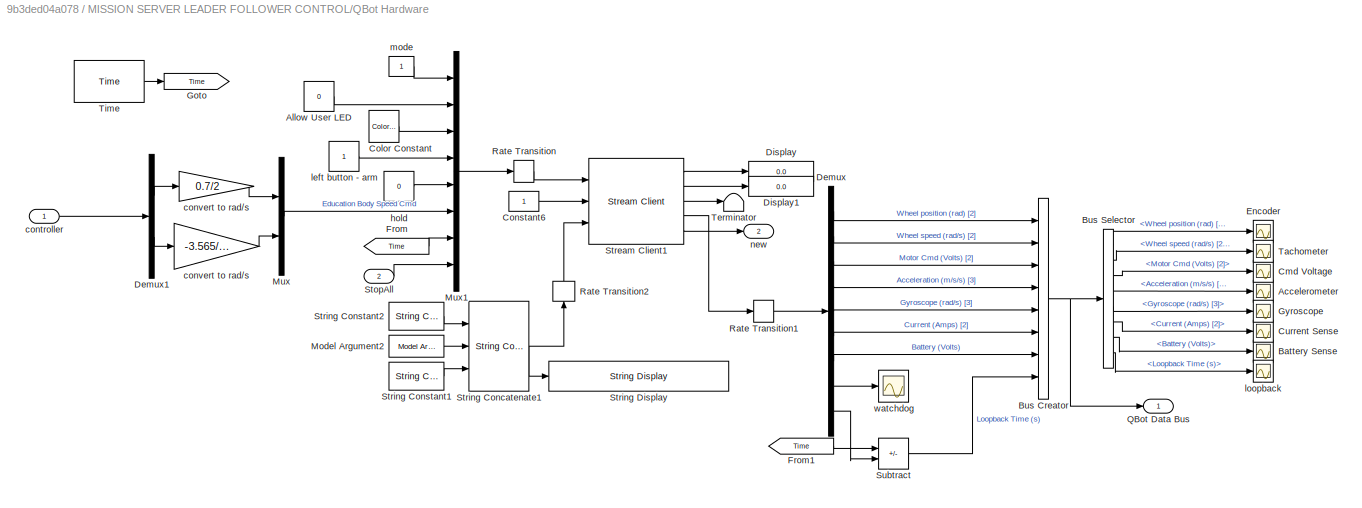
BLOCK [SubSystem] MISSION SERVER LEADER FOLLOWER CONTROL/QBot Hardware
  Ports = [2, 2]
BLOCK [Scope] MISSION SERVER LEADER FOLLOWER CONTROL/QBot Hardware/Accelerometer
  Floating = off
  NameLocation = right
  NumInputPorts = 1
  Ports = [1]
  ScopeSpecificationString = Simulink.scopes.TimeScopeBlockCfg('CurrentConfiguration', extmgr.ConfigurationSet(extmgr.Configuration('Core','General UI',true),extmgr.Configuration('Core','Source UI',true),extmgr.Configuration('Sources','WiredSimulink',true,'DataLoggingVariableName','ScopeData1'),extmgr.Configuration('Visuals','Time Domain',true,'SerializedDisplays',{struct('MinYLimReal','-1.32758','MaxYLimReal','11.23','YLabel...<+1468ch>
BLOCK [Constant] MISSION SERVER LEADER FOLLOWER CONTROL/QBot Hardware/Allow User LED
  Value = 0
BLOCK [Scope] MISSION SERVER LEADER FOLLOWER CONTROL/QBot Hardware/Battery Sense
  Floating = off
  NameLocation = right
  NumInputPorts = 1
  Ports = [1]
  ScopeSpecificationString = Simulink.scopes.TimeScopeBlockCfg('CurrentConfiguration', extmgr.ConfigurationSet(extmgr.Configuration('Core','General UI',true),extmgr.Configuration('Core','Source UI',true),extmgr.Configuration('Sources','WiredSimulink',true,'DataLoggingVariableName','ScopeData2'),extmgr.Configuration('Visuals','Time Domain',true,'SerializedDisplays',{struct('MinYLimReal','12.81161','MaxYLimReal','12.96349','YLa...<+1408ch>
BLOCK [BusCreator] MISSION SERVER LEADER FOLLOWER CONTROL/QBot Hardware/Bus Creator
  DisplayOption = bar
  InheritFromInputs = on
  Inputs = 8
  Ports = [8, 1]
BLOCK [BusSelector] MISSION SERVER LEADER FOLLOWER CONTROL/QBot Hardware/Bus Selector
  OutputSignals = Wheel position (rad) [2],Wheel speed (rad/s) [2],Motor Cmd (Volts) [2],Acceleration (m/s/s) [3],Gyroscope (rad/s) [3],Current (Amps) [2],Battery (Volts),Loopback Time (s)
  Ports = [1, 8]
BLOCK [Scope] MISSION SERVER LEADER FOLLOWER CONTROL/QBot Hardware/Cmd Voltage
  Floating = off
  NameLocation = right
  NumInputPorts = 1
  Ports = [1]
  ScopeSpecificationString = Simulink.scopes.TimeScopeBlockCfg('CurrentConfiguration', extmgr.ConfigurationSet(extmgr.Configuration('Core','General UI',true),extmgr.Configuration('Core','Source UI',true),extmgr.Configuration('Sources','WiredSimulink',true,'DataLoggingVariableName','ScopeData3'),extmgr.Configuration('Visuals','Time Domain',true,'SerializedDisplays',{struct('MinYLimReal','-1.00000','MaxYLimReal','1.00000','YLab...<+1441ch>
BLOCK [Reference] MISSION SERVER LEADER FOLLOWER CONTROL/QBot Hardware/Color Constant  REF=quarc_library/Sources/Signals/Color Constant
  Ports = [0, 1]
  SourceBlock = quarc_library/Sources/Signals/Color Constant
  SourceProductName = QUARC Targets
  SourceType = Color Constant
BLOCK [Constant] MISSION SERVER LEADER FOLLOWER CONTROL/QBot Hardware/Constant6
BLOCK [Scope] MISSION SERVER LEADER FOLLOWER CONTROL/QBot Hardware/Current Sense
  Floating = off
  NameLocation = right
  NumInputPorts = 1
  Ports = [1]
  ScopeSpecificationString = Simulink.scopes.TimeScopeBlockCfg('CurrentConfiguration', extmgr.ConfigurationSet(extmgr.Configuration('Core','General UI',true),extmgr.Configuration('Core','Source UI',true),extmgr.Configuration('Sources','WiredSimulink',true,'DataLoggingVariableName','ScopeData4'),extmgr.Configuration('Visuals','Time Domain',true,'SerializedDisplays',{struct('MinYLimReal','-0.05029','MaxYLimReal','0.45265','YLab...<+1434ch>
BLOCK [Demux] MISSION SERVER LEADER FOLLOWER CONTROL/QBot Hardware/Demux
  Outputs = [2 2 2 3 3 2 1 1 1]
  Ports = [1, 9]
BLOCK [Demux] MISSION SERVER LEADER FOLLOWER CONTROL/QBot Hardware/Demux1
  Outputs = 2
  Ports = [1, 2]
BLOCK [Display] MISSION SERVER LEADER FOLLOWER CONTROL/QBot Hardware/Display
  Decimation = 1
  Ports = [1]
BLOCK [Display] MISSION SERVER LEADER FOLLOWER CONTROL/QBot Hardware/Display1
  Decimation = 1
  Ports = [1]
BLOCK [Scope] MISSION SERVER LEADER FOLLOWER CONTROL/QBot Hardware/Encoder
  Floating = off
  NameLocation = right
  NumInputPorts = 1
  Ports = [1]
  ScopeSpecificationString = Simulink.scopes.TimeScopeBlockCfg('CurrentConfiguration', extmgr.ConfigurationSet(extmgr.Configuration('Core','General UI',true),extmgr.Configuration('Core','Source UI',true),extmgr.Configuration('Sources','WiredSimulink',true,'DataLoggingVariableName','ScopeData5'),extmgr.Configuration('Visuals','Time Domain',true,'SerializedDisplays',{struct('MinYLimReal','-23.46955','MaxYLimReal','23.65434','YL...<+1452ch>
BLOCK [From] MISSION SERVER LEADER FOLLOWER CONTROL/QBot Hardware/From
  GotoTag = Time
BLOCK [From] MISSION SERVER LEADER FOLLOWER CONTROL/QBot Hardware/From1
  GotoTag = Time
BLOCK [Goto] MISSION SERVER LEADER FOLLOWER CONTROL/QBot Hardware/Goto
  GotoTag = Time
BLOCK [Scope] MISSION SERVER LEADER FOLLOWER CONTROL/QBot Hardware/Gyroscope
  Floating = off
  NameLocation = right
  NumInputPorts = 1
  Ports = [1]
  ScopeSpecificationString = Simulink.scopes.TimeScopeBlockCfg('CurrentConfiguration', extmgr.ConfigurationSet(extmgr.Configuration('Core','General UI',true),extmgr.Configuration('Core','Source UI',true),extmgr.Configuration('Sources','WiredSimulink',true,'DataLoggingVariableName','ScopeData6'),extmgr.Configuration('Visuals','Time Domain',true,'SerializedDisplays',{struct('MinYLimReal','-0.40322','MaxYLimReal','1.99912','YLab...<+1468ch>
BLOCK [Reference] MISSION SERVER LEADER FOLLOWER CONTROL/QBot Hardware/Model Argument2  REF=quarc_library/Sources/Signals/Model Argument
  AttributesFormatString = (-%<argument_name>)
  NameLocation = left
  Ports = [0, 1]
  SourceBlock = quarc_library/Sources/Signals/Model Argument
  SourceProductName = QUARC Targets
  SourceType = Model Argument
BLOCK [Mux] MISSION SERVER LEADER FOLLOWER CONTROL/QBot Hardware/Mux
  DisplayOption = bar
  Inputs = 2
  Ports = [2, 1]
BLOCK [Mux] MISSION SERVER LEADER FOLLOWER CONTROL/QBot Hardware/Mux1
  DisplayOption = bar
  Inputs = 8
  Ports = [8, 1]
BLOCK [Outport] MISSION SERVER LEADER FOLLOWER CONTROL/QBot Hardware/QBot Data Bus
BLOCK [RateTransition] MISSION SERVER LEADER FOLLOWER CONTROL/QBot Hardware/Rate Transition
BLOCK [RateTransition] MISSION SERVER LEADER FOLLOWER CONTROL/QBot Hardware/Rate Transition1
BLOCK [RateTransition] MISSION SERVER LEADER FOLLOWER CONTROL/QBot Hardware/Rate Transition2
  NameLocation = right
BLOCK [Inport] MISSION SERVER LEADER FOLLOWER CONTROL/QBot Hardware/StopAll
  Port = 2
BLOCK [Reference] MISSION SERVER LEADER FOLLOWER CONTROL/QBot Hardware/Stream Client1  REF=quarc_library/Communications/Basic/Stream Client
  Ports = [3, 5]
  SourceBlock = quarc_library/Communications/Basic/Stream Client
  SourceProductName = QUARC Targets
  SourceType = Stream Client
BLOCK [Reference] MISSION SERVER LEADER FOLLOWER CONTROL/QBot Hardware/String Concatenate1  REF=quarc_library/Strings/String Concatenate
  Ports = [3, 1]
  SourceBlock = quarc_library/Strings/String Concatenate
  SourceProductName = QUARC Targets
  SourceType = String Concatenate
BLOCK [Reference] MISSION SERVER LEADER FOLLOWER CONTROL/QBot Hardware/String Constant1  REF=quarc_library/Strings/String Constant
  AttributesFormatString = ":18021?nagle='off'"
  NameLocation = left
  Ports = [0, 1]
  SourceBlock = quarc_library/Strings/String Constant
  SourceProductName = QUARC Targets
  SourceType = String Constant
BLOCK [Reference] MISSION SERVER LEADER FOLLOWER CONTROL/QBot Hardware/String Constant2  REF=quarc_library/Strings/String Constant
  AttributesFormatString = "tcpip://"
  NameLocation = left
  Ports = [0, 1]
  SourceBlock = quarc_library/Strings/String Constant
  SourceProductName = QUARC Targets
  SourceType = String Constant
BLOCK [Reference] MISSION SERVER LEADER FOLLOWER CONTROL/QBot Hardware/String Display  REF=quarc_library/Strings/String Display
  Ports = [1]
  SourceBlock = quarc_library/Strings/String Display
  SourceProductName = QUARC Targets
  SourceType = String Display
BLOCK [Sum] MISSION SERVER LEADER FOLLOWER CONTROL/QBot Hardware/Subtract
  IconShape = rectangular
  Inputs = +-
  Ports = [2, 1]
BLOCK [Scope] MISSION SERVER LEADER FOLLOWER CONTROL/QBot Hardware/Tachometer
  Floating = off
  NameLocation = right
  NumInputPorts = 1
  Ports = [1]
  ScopeSpecificationString = Simulink.scopes.TimeScopeBlockCfg('CurrentConfiguration', extmgr.ConfigurationSet(extmgr.Configuration('Core','General UI',true),extmgr.Configuration('Core','Source UI',true),extmgr.Configuration('Sources','WiredSimulink',true,'DataLoggingVariableName','ScopeData7'),extmgr.Configuration('Visuals','Time Domain',true,'SerializedDisplays',{struct('MinYLimReal','-11.69986','MaxYLimReal','11.67552','YL...<+1449ch>
BLOCK [Terminator] MISSION SERVER LEADER FOLLOWER CONTROL/QBot Hardware/Terminator
BLOCK [Reference] MISSION SERVER LEADER FOLLOWER CONTROL/QBot Hardware/Time  REF=quarc_library/Sources/Time/Time
  Ports = [0, 1]
  SourceBlock = quarc_library/Sources/Time/Time
  SourceProductName = QUARC Targets
  SourceType = Time
BLOCK [Inport] MISSION SERVER LEADER FOLLOWER CONTROL/QBot Hardware/controller
BLOCK [Gain] MISSION SERVER LEADER FOLLOWER CONTROL/QBot Hardware/convert to rad//s
  Gain = 0.7/2
BLOCK [Gain] MISSION SERVER LEADER FOLLOWER CONTROL/QBot Hardware/convert to rad//s 
  Gain = -3.565/2.5
BLOCK [Constant] MISSION SERVER LEADER FOLLOWER CONTROL/QBot Hardware/hold
  Value = 0
BLOCK [Constant] MISSION SERVER LEADER FOLLOWER CONTROL/QBot Hardware/left button - arm
BLOCK [Scope] MISSION SERVER LEADER FOLLOWER CONTROL/QBot Hardware/loopback
  Floating = off
  NameLocation = right
  NumInputPorts = 1
  Ports = [1]
  ScopeSpecificationString = Simulink.scopes.TimeScopeBlockCfg('CurrentConfiguration', extmgr.ConfigurationSet(extmgr.Configuration('Core','General UI',true),extmgr.Configuration('Core','Source UI',true),extmgr.Configuration('Sources','WiredSimulink',true,'DataLoggingVariableName','ScopeData8'),extmgr.Configuration('Visuals','Time Domain',true,'SerializedDisplays',{struct('MinYLimReal','12.81161','MaxYLimReal','12.96349','YLa...<+1408ch>
BLOCK [Constant] MISSION SERVER LEADER FOLLOWER CONTROL/QBot Hardware/mode
  NameLocation = left
BLOCK [Outport] MISSION SERVER LEADER FOLLOWER CONTROL/QBot Hardware/new
  Port = 2
BLOCK [Scope] MISSION SERVER LEADER FOLLOWER CONTROL/QBot Hardware/watchdog
  Floating = off
  NumInputPorts = 1
  Ports = [1]
  ScopeSpecificationString = Simulink.scopes.TimeScopeBlockCfg('CurrentConfiguration', extmgr.ConfigurationSet(extmgr.Configuration('Core','General UI',true),extmgr.Configuration('Core','Source UI',true),extmgr.Configuration('Sources','WiredSimulink',true,'DataLoggingVariableName','ScopeData1'),extmgr.Configuration('Visuals','Time Domain',true),extmgr.Configuration('Tools','Plot Navigation',true),extmgr.Configuration('Tools',...<+40ch>
BLOCK [SubSystem] MISSION SERVER LEADER FOLLOWER CONTROL/QBotData
  Ports = [2, 1]
BLOCK [DataTypeConversion] MISSION SERVER LEADER FOLLOWER CONTROL/QBotData/Data Type Conversion10
  RndMeth = Floor
  SaturateOnIntegerOverflow = off
BLOCK [DataTypeConversion] MISSION SERVER LEADER FOLLOWER CONTROL/QBotData/Data Type Conversion11
  RndMeth = Floor
  SaturateOnIntegerOverflow = off
BLOCK [DataTypeConversion] MISSION SERVER LEADER FOLLOWER CONTROL/QBotData/Data Type Conversion9
  RndMeth = Floor
  SaturateOnIntegerOverflow = off
BLOCK [SubSystem] MISSION SERVER LEADER FOLLOWER CONTROL/QBotData/Extract Object Data
  ErrorFcn = Stateflow.Translate.translate
  PermitHierarchicalResolution = ExplicitOnly
  Ports = [2, 3]
  SFBlockType = MATLAB Function
  TreatAsAtomicUnit = on
BLOCK [Demux] MISSION SERVER LEADER FOLLOWER CONTROL/QBotData/Extract Object Data/ Demux 
  Outputs = 1
  Ports = [1, 1]
BLOCK [S-Function] MISSION SERVER LEADER FOLLOWER CONTROL/QBotData/Extract Object Data/ SFunction 
  EnableBusSupport = off
  FunctionName = sf_sfun
  PortCounts = [2 4]
  Ports = [2, 4]
  SFcnIsStateOwnerBlock = off
  SFunctionDeploymentMode = off
  Tag = Stateflow S-Function 1
BLOCK [Terminator] MISSION SERVER LEADER FOLLOWER CONTROL/QBotData/Extract Object Data/ Terminator 
BLOCK [Inport] MISSION SERVER LEADER FOLLOWER CONTROL/QBotData/Extract Object Data/data
BLOCK [Inport] MISSION SERVER LEADER FOLLOWER CONTROL/QBotData/Extract Object Data/index
  Port = 2
BLOCK [Outport] MISSION SERVER LEADER FOLLOWER CONTROL/QBotData/Extract Object Data/orientation
  Port = 2
  VectorParamsAs1DForOutWhenUnconnected = off
BLOCK [Outport] MISSION SERVER LEADER FOLLOWER CONTROL/QBotData/Extract Object Data/position
  VectorParamsAs1DForOutWhenUnconnected = off
BLOCK [Outport] MISSION SERVER LEADER FOLLOWER CONTROL/QBotData/Extract Object Data/tracking
  Port = 3
  VectorParamsAs1DForOutWhenUnconnected = off
BLOCK [Mux] MISSION SERVER LEADER FOLLOWER CONTROL/QBotData/Mux1
  DisplayOption = bar
  Inputs = 3
  Ports = [3, 1]
BLOCK [Inport] MISSION SERVER LEADER FOLLOWER CONTROL/QBotData/Optitrack Data
BLOCK [Reshape] MISSION SERVER LEADER FOLLOWER CONTROL/QBotData/Reshape
  Ports = [1, 1]
BLOCK [Reshape] MISSION SERVER LEADER FOLLOWER CONTROL/QBotData/Reshape1
  Ports = [1, 1]
BLOCK [Reshape] MISSION SERVER LEADER FOLLOWER CONTROL/QBotData/Reshape2
  Ports = [1, 1]
BLOCK [Outport] MISSION SERVER LEADER FOLLOWER CONTROL/QBotData/Vehicle Data
  VectorParamsAs1DForOutWhenUnconnected = off
BLOCK [Inport] MISSION SERVER LEADER FOLLOWER CONTROL/QBotData/Vehicle ID
  Port = 2
BLOCK [SubSystem] MISSION SERVER LEADER FOLLOWER CONTROL/QDroneData
  Ports = [2, 1]
BLOCK [DataTypeConversion] MISSION SERVER LEADER FOLLOWER CONTROL/QDroneData/Data Type Conversion10
  RndMeth = Floor
  SaturateOnIntegerOverflow = off
BLOCK [DataTypeConversion] MISSION SERVER LEADER FOLLOWER CONTROL/QDroneData/Data Type Conversion11
  RndMeth = Floor
  SaturateOnIntegerOverflow = off
BLOCK [DataTypeConversion] MISSION SERVER LEADER FOLLOWER CONTROL/QDroneData/Data Type Conversion9
  RndMeth = Floor
  SaturateOnIntegerOverflow = off
BLOCK [SubSystem] MISSION SERVER LEADER FOLLOWER CONTROL/QDroneData/Extract Object Data
  ErrorFcn = Stateflow.Translate.translate
  PermitHierarchicalResolution = ExplicitOnly
  Ports = [2, 3]
  SFBlockType = MATLAB Function
  TreatAsAtomicUnit = on
BLOCK [Demux] MISSION SERVER LEADER FOLLOWER CONTROL/QDroneData/Extract Object Data/ Demux 
  Outputs = 1
  Ports = [1, 1]
BLOCK [S-Function] MISSION SERVER LEADER FOLLOWER CONTROL/QDroneData/Extract Object Data/ SFunction 
  EnableBusSupport = off
  FunctionName = sf_sfun
  PortCounts = [2 4]
  Ports = [2, 4]
  SFcnIsStateOwnerBlock = off
  SFunctionDeploymentMode = off
  Tag = Stateflow S-Function 2
BLOCK [Terminator] MISSION SERVER LEADER FOLLOWER CONTROL/QDroneData/Extract Object Data/ Terminator 
BLOCK [Inport] MISSION SERVER LEADER FOLLOWER CONTROL/QDroneData/Extract Object Data/data
BLOCK [Inport] MISSION SERVER LEADER FOLLOWER CONTROL/QDroneData/Extract Object Data/index
  Port = 2
BLOCK [Outport] MISSION SERVER LEADER FOLLOWER CONTROL/QDroneData/Extract Object Data/orientation
  Port = 2
  VectorParamsAs1DForOutWhenUnconnected = off
BLOCK [Outport] MISSION SERVER LEADER FOLLOWER CONTROL/QDroneData/Extract Object Data/position
  VectorParamsAs1DForOutWhenUnconnected = off
BLOCK [Outport] MISSION SERVER LEADER FOLLOWER CONTROL/QDroneData/Extract Object Data/tracking
  Port = 3
  VectorParamsAs1DForOutWhenUnconnected = off
BLOCK [Mux] MISSION SERVER LEADER FOLLOWER CONTROL/QDroneData/Mux1
  DisplayOption = bar
  Inputs = 3
  Ports = [3, 1]
BLOCK [Inport] MISSION SERVER LEADER FOLLOWER CONTROL/QDroneData/Optitrack Data
BLOCK [Reshape] MISSION SERVER LEADER FOLLOWER CONTROL/QDroneData/Reshape
  Ports = [1, 1]
BLOCK [Reshape] MISSION SERVER LEADER FOLLOWER CONTROL/QDroneData/Reshape1
  Ports = [1, 1]
BLOCK [Reshape] MISSION SERVER LEADER FOLLOWER CONTROL/QDroneData/Reshape2
  Ports = [1, 1]
BLOCK [Outport] MISSION SERVER LEADER FOLLOWER CONTROL/QDroneData/Vehicle Data
  VectorParamsAs1DForOutWhenUnconnected = off
BLOCK [Inport] MISSION SERVER LEADER FOLLOWER CONTROL/QDroneData/Vehicle ID
  Port = 2
BLOCK [Saturate] MISSION SERVER LEADER FOLLOWER CONTROL/Saturation
  LowerLimit = -1
  UpperLimit = 1
BLOCK [Saturate] MISSION SERVER LEADER FOLLOWER CONTROL/Saturation1
  LowerLimit = -1
  UpperLimit = 1
BLOCK [Scope] MISSION SERVER LEADER FOLLOWER CONTROL/Scope
  Floating = off
  NumInputPorts = 1
  Ports = [1]
  ScopeSpecificationString = Simulink.scopes.TimeScopeBlockCfg('CurrentConfiguration', extmgr.ConfigurationSet(extmgr.Configuration('Core','General UI',true),extmgr.Configuration('Core','Source UI',true),extmgr.Configuration('Sources','WiredSimulink',true),extmgr.Configuration('Visuals','Time Domain',true,'SerializedDisplays',{struct('MinYLimReal','109.87009','MaxYLimReal','111.26511','YLabelReal','','MinYLimMag','109.87009',...<+1463ch>
BLOCK [Scope] MISSION SERVER LEADER FOLLOWER CONTROL/Scope1
  Floating = off
  NumInputPorts = 1
  Ports = [1]
  ScopeSpecificationString = Simulink.scopes.TimeScopeBlockCfg('CurrentConfiguration', extmgr.ConfigurationSet(extmgr.Configuration('Core','General UI',true),extmgr.Configuration('Core','Source UI',true),extmgr.Configuration('Sources','WiredSimulink',true,'DataLoggingVariableName','ScopeData1'),extmgr.Configuration('Visuals','Time Domain',true,'SerializedDisplays',{struct('MinYLimReal','-0.125','MaxYLimReal','1.125','YLabelRe...<+1418ch>
BLOCK [Selector] MISSION SERVER LEADER FOLLOWER CONTROL/Selector
  IndexOptions = Index vector (dialog)
  Indices = [1 2 6]
  InputPortWidth = 7
  OutputSizes = 1
  Ports = [1, 1]
BLOCK [Selector] MISSION SERVER LEADER FOLLOWER CONTROL/Selector1
  IndexOptions = Index vector (dialog)
  Indices = [1]
  InputPortWidth = 4
  OutputSizes = 1
  Ports = [1, 1]
BLOCK [Selector] MISSION SERVER LEADER FOLLOWER CONTROL/Selector7
  IndexOptions = Index vector (dialog)
  Indices = [4]
  InputPortWidth = 4
  OutputSizes = 1
  Ports = [1, 1]
BLOCK [Reference] MISSION SERVER LEADER FOLLOWER CONTROL/Show Message on Host  REF=quarc_library/Sinks/Error Handling/Show Message on Host
  AttributesFormatString = "%<message>"
  Ports = [1]
  SourceBlock = quarc_library/Sinks/Error Handling/Show Message on Host
  SourceProductName = QUARC Targets
  SourceType = Host Show Message
BLOCK [Reference] MISSION SERVER LEADER FOLLOWER CONTROL/Show Message on Host   REF=quarc_library/Sinks/Error Handling/Show Message on Host
  AttributesFormatString = "%<message>"
  NameLocation = top
  Ports = [1]
  SourceBlock = quarc_library/Sinks/Error Handling/Show Message on Host
  SourceProductName = QUARC Targets
  SourceType = Host Show Message
BLOCK [SubSystem] MISSION SERVER LEADER FOLLOWER CONTROL/StopAllSignal
  Ports = [6, 1]
BLOCK [Logic] MISSION SERVER LEADER FOLLOWER CONTROL/StopAllSignal/AND
  AllPortsSameDT = off
  IconShape = distinctive
  Inputs = 1
  OutDataTypeStr = boolean
  Ports = [1, 1]
BLOCK [Logic] MISSION SERVER LEADER FOLLOWER CONTROL/StopAllSignal/AND1
  AllPortsSameDT = off
  Inputs = 3
  OutDataTypeStr = boolean
  Ports = [3, 1]
BLOCK [Logic] MISSION SERVER LEADER FOLLOWER CONTROL/StopAllSignal/AND2
  AllPortsSameDT = off
  OutDataTypeStr = boolean
  Ports = [2, 1]
BLOCK [Logic] MISSION SERVER LEADER FOLLOWER CONTROL/StopAllSignal/AND3
  AllPortsSameDT = off
  Inputs = 3
  OutDataTypeStr = boolean
  Ports = [3, 1]
BLOCK [Abs] MISSION SERVER LEADER FOLLOWER CONTROL/StopAllSignal/Abs
  SaturateOnIntegerOverflow = off
BLOCK [Abs] MISSION SERVER LEADER FOLLOWER CONTROL/StopAllSignal/Abs1
  SaturateOnIntegerOverflow = off
BLOCK [Reference] MISSION SERVER LEADER FOLLOWER CONTROL/StopAllSignal/Compare  REF=quarc_library/Logic Operations/Compare
  Ports = [2, 1]
  SourceBlock = quarc_library/Logic Operations/Compare
  SourceProductName = QUARC Targets
  SourceType = Compare
BLOCK [Reference] MISSION SERVER LEADER FOLLOWER CONTROL/StopAllSignal/Compare To Constant  REF=simulink/Logic and Bit
Operations/Compare
To Constant
  Ports = [1, 1]
  SourceBlock = simulink/Logic and Bit\nOperations/Compare\nTo Constant
  SourceType = Compare To Constant
BLOCK [Reference] MISSION SERVER LEADER FOLLOWER CONTROL/StopAllSignal/Compare To Constant1  REF=simulink/Logic and Bit
Operations/Compare
To Constant
  Ports = [1, 1]
  SourceBlock = simulink/Logic and Bit\nOperations/Compare\nTo Constant
  SourceType = Compare To Constant
BLOCK [Reference] MISSION SERVER LEADER FOLLOWER CONTROL/StopAllSignal/Compare To Constant2  REF=simulink/Logic and Bit
Operations/Compare
To Constant
  Ports = [1, 1]
  SourceBlock = simulink/Logic and Bit\nOperations/Compare\nTo Constant
  SourceType = Compare To Constant
BLOCK [Reference] MISSION SERVER LEADER FOLLOWER CONTROL/StopAllSignal/Compare To Constant4  REF=simulink/Logic and Bit
Operations/Compare
To Constant
  Ports = [1, 1]
  SourceBlock = simulink/Logic and Bit\nOperations/Compare\nTo Constant
  SourceType = Compare To Constant
BLOCK [Reference] MISSION SERVER LEADER FOLLOWER CONTROL/StopAllSignal/Compare1  REF=quarc_library/Logic Operations/Compare
  Ports = [2, 1]
  SourceBlock = quarc_library/Logic Operations/Compare
  SourceProductName = QUARC Targets
  SourceType = Compare
BLOCK [Constant] MISSION SERVER LEADER FOLLOWER CONTROL/StopAllSignal/Constant
  Value = 30
BLOCK [DataTypeConversion] MISSION SERVER LEADER FOLLOWER CONTROL/StopAllSignal/Data Type Conversion
  OutDataTypeStr = double
  RndMeth = Floor
  SaturateOnIntegerOverflow = off
BLOCK [Reference] MISSION SERVER LEADER FOLLOWER CONTROL/StopAllSignal/Degrees to Radians  REF=simulink_extras/Transformations/Degrees to
Radians
  Ports = [1, 1]
  SourceBlock = simulink_extras/Transformations/Degrees to\nRadians
  SourceType = DegreesToRadians
BLOCK [Memory] MISSION SERVER LEADER FOLLOWER CONTROL/StopAllSignal/Memory1
BLOCK [Logic] MISSION SERVER LEADER FOLLOWER CONTROL/StopAllSignal/NOT
  AllPortsSameDT = off
  IconShape = distinctive
  Operator = NOT
  OutDataTypeStr = boolean
  Ports = [1, 1]
BLOCK [Logic] MISSION SERVER LEADER FOLLOWER CONTROL/StopAllSignal/OR
  AllPortsSameDT = off
  IconShape = distinctive
  Inputs = 1
  Operator = OR
  OutDataTypeStr = boolean
  Ports = [1, 1]
BLOCK [Logic] MISSION SERVER LEADER FOLLOWER CONTROL/StopAllSignal/OR1
  AllPortsSameDT = off
  Inputs = 6
  Operator = OR
  OutDataTypeStr = boolean
  Ports = [6, 1]
BLOCK [Logic] MISSION SERVER LEADER FOLLOWER CONTROL/StopAllSignal/OR2
  AllPortsSameDT = off
  Operator = OR
  OutDataTypeStr = boolean
  Ports = [2, 1]
BLOCK [Selector] MISSION SERVER LEADER FOLLOWER CONTROL/StopAllSignal/Selector2
  IndexOptions = Index vector (dialog)
  Indices = [3]
  InputPortWidth = 5
  OutputSizes = 1
  Ports = [1, 1]
BLOCK [Selector] MISSION SERVER LEADER FOLLOWER CONTROL/StopAllSignal/Selector3
  IndexOptions = Index vector (dialog)
  Indices = [2]
  InputPortWidth = 5
  OutputSizes = 1
  Ports = [1, 1]
BLOCK [Outport] MISSION SERVER LEADER FOLLOWER CONTROL/StopAllSignal/StopAll
BLOCK [SubSystem] MISSION SERVER LEADER FOLLOWER CONTROL/StopAllSignal/Subsystem
  Ports = [1, 1]
BLOCK [Delay] MISSION SERVER LEADER FOLLOWER CONTROL/StopAllSignal/Subsystem/Delay
  DelayLength = 4
  InputPortMap = u0
  Ports = [1, 1]
BLOCK [Inport] MISSION SERVER LEADER FOLLOWER CONTROL/StopAllSignal/Subsystem/Signal
BLOCK [Outport] MISSION SERVER LEADER FOLLOWER CONTROL/StopAllSignal/Subsystem/Stop
BLOCK [Reference] MISSION SERVER LEADER FOLLOWER CONTROL/StopAllSignal/Subsystem/Stop with Message  REF=quarc_library/Sinks/Error Handling/Stop with Message
  AttributesFormatString = "%<message>"
  Ports = [1]
  SourceBlock = quarc_library/Sinks/Error Handling/Stop with Message
  SourceProductName = QUARC Targets
  SourceType = Stop with Message
BLOCK [Reference] MISSION SERVER LEADER FOLLOWER CONTROL/StopAllSignal/Subsystem/Threshold  REF=quarc_library/Discontinuities/Threshold
  Ports = [1, 2]
  SourceBlock = quarc_library/Discontinuities/Threshold
  SourceProductName = QUARC Targets
  SourceType = Threshold
BLOCK [Reference] MISSION SERVER LEADER FOLLOWER CONTROL/StopAllSignal/Subsystem/Threshold1  REF=quarc_library/Discontinuities/Threshold
  Ports = [1, 2]
  SourceBlock = quarc_library/Discontinuities/Threshold
  SourceProductName = QUARC Targets
  SourceType = Threshold
BLOCK [SubSystem] MISSION SERVER LEADER FOLLOWER CONTROL/StopAllSignal/Subsystem/Triggered Subsystem1
  Ports = [0, 0, 0, 1]
  TreatAsAtomicUnit = on
BLOCK [Reference] MISSION SERVER LEADER FOLLOWER CONTROL/StopAllSignal/Subsystem/Triggered Subsystem1/Print  REF=quarc_library/User Interface/Standard I//O/Print
  Ports = [0, 2]
  SourceBlock = quarc_library/User Interface/Standard I//O/Print
  SourceProductName = QUARC Targets
  SourceType = Print
BLOCK [TriggerPort] MISSION SERVER LEADER FOLLOWER CONTROL/StopAllSignal/Subsystem/Triggered Subsystem1/Trigger
  Ports = []
  StatesWhenEnabling = held
  VariantControl = (inherit)
BLOCK [SubSystem] MISSION SERVER LEADER FOLLOWER CONTROL/StopAllSignal/Subsystem/Triggered Subsystem2
  Ports = [0, 1, 0, 1]
  TreatAsAtomicUnit = on
BLOCK [Constant] MISSION SERVER LEADER FOLLOWER CONTROL/StopAllSignal/Subsystem/Triggered Subsystem2/Constant
BLOCK [Outport] MISSION SERVER LEADER FOLLOWER CONTROL/StopAllSignal/Subsystem/Triggered Subsystem2/StopAllModels
  InitialOutput = [0]
BLOCK [TriggerPort] MISSION SERVER LEADER FOLLOWER CONTROL/StopAllSignal/Subsystem/Triggered Subsystem2/Trigger
  Ports = []
  StatesWhenEnabling = held
  VariantControl = (inherit)
BLOCK [SubSystem] MISSION SERVER LEADER FOLLOWER CONTROL/StopAllSignal/Subsystem1
  Ports = [1, 1]
BLOCK [Delay] MISSION SERVER LEADER FOLLOWER CONTROL/StopAllSignal/Subsystem1/Delay
  DelayLength = 4
  InputPortMap = u0
  Ports = [1, 1]
BLOCK [Inport] MISSION SERVER LEADER FOLLOWER CONTROL/StopAllSignal/Subsystem1/Signal
BLOCK [Outport] MISSION SERVER LEADER FOLLOWER CONTROL/StopAllSignal/Subsystem1/Stop
BLOCK [Reference] MISSION SERVER LEADER FOLLOWER CONTROL/StopAllSignal/Subsystem1/Stop with Message  REF=quarc_library/Sinks/Error Handling/Stop with Message
  AttributesFormatString = "%<message>"
  Ports = [1]
  SourceBlock = quarc_library/Sinks/Error Handling/Stop with Message
  SourceProductName = QUARC Targets
  SourceType = Stop with Message
BLOCK [Reference] MISSION SERVER LEADER FOLLOWER CONTROL/StopAllSignal/Subsystem1/Threshold  REF=quarc_library/Discontinuities/Threshold
  Ports = [1, 2]
  SourceBlock = quarc_library/Discontinuities/Threshold
  SourceProductName = QUARC Targets
  SourceType = Threshold
BLOCK [Reference] MISSION SERVER LEADER FOLLOWER CONTROL/StopAllSignal/Subsystem1/Threshold1  REF=quarc_library/Discontinuities/Threshold
  Ports = [1, 2]
  SourceBlock = quarc_library/Discontinuities/Threshold
  SourceProductName = QUARC Targets
  SourceType = Threshold
BLOCK [SubSystem] MISSION SERVER LEADER FOLLOWER CONTROL/StopAllSignal/Subsystem1/Triggered Subsystem1
  Ports = [0, 0, 0, 1]
  TreatAsAtomicUnit = on
BLOCK [Reference] MISSION SERVER LEADER FOLLOWER CONTROL/StopAllSignal/Subsystem1/Triggered Subsystem1/Print  REF=quarc_library/User Interface/Standard I//O/Print
  Ports = [0, 2]
  SourceBlock = quarc_library/User Interface/Standard I//O/Print
  SourceProductName = QUARC Targets
  SourceType = Print
BLOCK [TriggerPort] MISSION SERVER LEADER FOLLOWER CONTROL/StopAllSignal/Subsystem1/Triggered Subsystem1/Trigger
  Ports = []
  StatesWhenEnabling = held
  VariantControl = (inherit)
BLOCK [SubSystem] MISSION SERVER LEADER FOLLOWER CONTROL/StopAllSignal/Subsystem1/Triggered Subsystem2
  Ports = [0, 1, 0, 1]
  TreatAsAtomicUnit = on
BLOCK [Constant] MISSION SERVER LEADER FOLLOWER CONTROL/StopAllSignal/Subsystem1/Triggered Subsystem2/Constant
BLOCK [Outport] MISSION SERVER LEADER FOLLOWER CONTROL/StopAllSignal/Subsystem1/Triggered Subsystem2/StopAllModels
  InitialOutput = [0]
BLOCK [TriggerPort] MISSION SERVER LEADER FOLLOWER CONTROL/StopAllSignal/Subsystem1/Triggered Subsystem2/Trigger
  Ports = []
  StatesWhenEnabling = held
  VariantControl = (inherit)
BLOCK [SubSystem] MISSION SERVER LEADER FOLLOWER CONTROL/StopAllSignal/Subsystem2
  Ports = [1, 1]
BLOCK [Delay] MISSION SERVER LEADER FOLLOWER CONTROL/StopAllSignal/Subsystem2/Delay
  DelayLength = 4
  InputPortMap = u0
  Ports = [1, 1]
BLOCK [Inport] MISSION SERVER LEADER FOLLOWER CONTROL/StopAllSignal/Subsystem2/Signal
BLOCK [Outport] MISSION SERVER LEADER FOLLOWER CONTROL/StopAllSignal/Subsystem2/Stop
BLOCK [Reference] MISSION SERVER LEADER FOLLOWER CONTROL/StopAllSignal/Subsystem2/Stop with Message  REF=quarc_library/Sinks/Error Handling/Stop with Message
  AttributesFormatString = "%<message>"
  Ports = [1]
  SourceBlock = quarc_library/Sinks/Error Handling/Stop with Message
  SourceProductName = QUARC Targets
  SourceType = Stop with Message
BLOCK [Reference] MISSION SERVER LEADER FOLLOWER CONTROL/StopAllSignal/Subsystem2/Threshold  REF=quarc_library/Discontinuities/Threshold
  Ports = [1, 2]
  SourceBlock = quarc_library/Discontinuities/Threshold
  SourceProductName = QUARC Targets
  SourceType = Threshold
BLOCK [Reference] MISSION SERVER LEADER FOLLOWER CONTROL/StopAllSignal/Subsystem2/Threshold1  REF=quarc_library/Discontinuities/Threshold
  Ports = [1, 2]
  SourceBlock = quarc_library/Discontinuities/Threshold
  SourceProductName = QUARC Targets
  SourceType = Threshold
BLOCK [SubSystem] MISSION SERVER LEADER FOLLOWER CONTROL/StopAllSignal/Subsystem2/Triggered Subsystem1
  Ports = [0, 0, 0, 1]
  TreatAsAtomicUnit = on
BLOCK [Reference] MISSION SERVER LEADER FOLLOWER CONTROL/StopAllSignal/Subsystem2/Triggered Subsystem1/Print  REF=quarc_library/User Interface/Standard I//O/Print
  Ports = [0, 2]
  SourceBlock = quarc_library/User Interface/Standard I//O/Print
  SourceProductName = QUARC Targets
  SourceType = Print
BLOCK [TriggerPort] MISSION SERVER LEADER FOLLOWER CONTROL/StopAllSignal/Subsystem2/Triggered Subsystem1/Trigger
  Ports = []
  StatesWhenEnabling = held
  VariantControl = (inherit)
BLOCK [SubSystem] MISSION SERVER LEADER FOLLOWER CONTROL/StopAllSignal/Subsystem2/Triggered Subsystem2
  Ports = [0, 1, 0, 1]
  TreatAsAtomicUnit = on
BLOCK [Constant] MISSION SERVER LEADER FOLLOWER CONTROL/StopAllSignal/Subsystem2/Triggered Subsystem2/Constant
BLOCK [Outport] MISSION SERVER LEADER FOLLOWER CONTROL/StopAllSignal/Subsystem2/Triggered Subsystem2/StopAllModels
  InitialOutput = [0]
BLOCK [TriggerPort] MISSION SERVER LEADER FOLLOWER CONTROL/StopAllSignal/Subsystem2/Triggered Subsystem2/Trigger
  Ports = []
  StatesWhenEnabling = held
  VariantControl = (inherit)
BLOCK [SubSystem] MISSION SERVER LEADER FOLLOWER CONTROL/StopAllSignal/Subsystem3
  Ports = [1, 1]
BLOCK [Delay] MISSION SERVER LEADER FOLLOWER CONTROL/StopAllSignal/Subsystem3/Delay
  DelayLength = 4
  InputPortMap = u0
  Ports = [1, 1]
BLOCK [Inport] MISSION SERVER LEADER FOLLOWER CONTROL/StopAllSignal/Subsystem3/Signal
BLOCK [Outport] MISSION SERVER LEADER FOLLOWER CONTROL/StopAllSignal/Subsystem3/Stop
BLOCK [Reference] MISSION SERVER LEADER FOLLOWER CONTROL/StopAllSignal/Subsystem3/Stop with Message  REF=quarc_library/Sinks/Error Handling/Stop with Message
  AttributesFormatString = "%<message>"
  Ports = [1]
  SourceBlock = quarc_library/Sinks/Error Handling/Stop with Message
  SourceProductName = QUARC Targets
  SourceType = Stop with Message
BLOCK [Reference] MISSION SERVER LEADER FOLLOWER CONTROL/StopAllSignal/Subsystem3/Threshold  REF=quarc_library/Discontinuities/Threshold
  Ports = [1, 2]
  SourceBlock = quarc_library/Discontinuities/Threshold
  SourceProductName = QUARC Targets
  SourceType = Threshold
BLOCK [Reference] MISSION SERVER LEADER FOLLOWER CONTROL/StopAllSignal/Subsystem3/Threshold1  REF=quarc_library/Discontinuities/Threshold
  Ports = [1, 2]
  SourceBlock = quarc_library/Discontinuities/Threshold
  SourceProductName = QUARC Targets
  SourceType = Threshold
BLOCK [SubSystem] MISSION SERVER LEADER FOLLOWER CONTROL/StopAllSignal/Subsystem3/Triggered Subsystem1
  Ports = [0, 0, 0, 1]
  TreatAsAtomicUnit = on
BLOCK [Reference] MISSION SERVER LEADER FOLLOWER CONTROL/StopAllSignal/Subsystem3/Triggered Subsystem1/Print  REF=quarc_library/User Interface/Standard I//O/Print
  Ports = [0, 2]
  SourceBlock = quarc_library/User Interface/Standard I//O/Print
  SourceProductName = QUARC Targets
  SourceType = Print
BLOCK [TriggerPort] MISSION SERVER LEADER FOLLOWER CONTROL/StopAllSignal/Subsystem3/Triggered Subsystem1/Trigger
  Ports = []
  StatesWhenEnabling = held
  VariantControl = (inherit)
BLOCK [SubSystem] MISSION SERVER LEADER FOLLOWER CONTROL/StopAllSignal/Subsystem3/Triggered Subsystem2
  Ports = [0, 1, 0, 1]
  TreatAsAtomicUnit = on
BLOCK [Constant] MISSION SERVER LEADER FOLLOWER CONTROL/StopAllSignal/Subsystem3/Triggered Subsystem2/Constant
BLOCK [Outport] MISSION SERVER LEADER FOLLOWER CONTROL/StopAllSignal/Subsystem3/Triggered Subsystem2/StopAllModels
  InitialOutput = [0]
BLOCK [TriggerPort] MISSION SERVER LEADER FOLLOWER CONTROL/StopAllSignal/Subsystem3/Triggered Subsystem2/Trigger
  Ports = []
  StatesWhenEnabling = held
  VariantControl = (inherit)
BLOCK [SubSystem] MISSION SERVER LEADER FOLLOWER CONTROL/StopAllSignal/Subsystem4
  Ports = [1, 1]
BLOCK [Delay] MISSION SERVER LEADER FOLLOWER CONTROL/StopAllSignal/Subsystem4/Delay
  DelayLength = 4
  InputPortMap = u0
  Ports = [1, 1]
BLOCK [Inport] MISSION SERVER LEADER FOLLOWER CONTROL/StopAllSignal/Subsystem4/Signal
BLOCK [Outport] MISSION SERVER LEADER FOLLOWER CONTROL/StopAllSignal/Subsystem4/Stop
BLOCK [Reference] MISSION SERVER LEADER FOLLOWER CONTROL/StopAllSignal/Subsystem4/Stop with Message  REF=quarc_library/Sinks/Error Handling/Stop with Message
  AttributesFormatString = "%<message>"
  Ports = [1]
  SourceBlock = quarc_library/Sinks/Error Handling/Stop with Message
  SourceProductName = QUARC Targets
  SourceType = Stop with Message
BLOCK [Reference] MISSION SERVER LEADER FOLLOWER CONTROL/StopAllSignal/Subsystem4/Threshold  REF=quarc_library/Discontinuities/Threshold
  Ports = [1, 2]
  SourceBlock = quarc_library/Discontinuities/Threshold
  SourceProductName = QUARC Targets
  SourceType = Threshold
BLOCK [Reference] MISSION SERVER LEADER FOLLOWER CONTROL/StopAllSignal/Subsystem4/Threshold1  REF=quarc_library/Discontinuities/Threshold
  Ports = [1, 2]
  SourceBlock = quarc_library/Discontinuities/Threshold
  SourceProductName = QUARC Targets
  SourceType = Threshold
BLOCK [Reference] MISSION SERVER LEADER FOLLOWER CONTROL/StopAllSignal/Subsystem4/Threshold2  REF=quarc_library/Discontinuities/Threshold
  Ports = [1, 2]
  SourceBlock = quarc_library/Discontinuities/Threshold
  SourceProductName = QUARC Targets
  SourceType = Threshold
BLOCK [SubSystem] MISSION SERVER LEADER FOLLOWER CONTROL/StopAllSignal/Subsystem4/Triggered Subsystem1
  Ports = [0, 0, 0, 1]
  TreatAsAtomicUnit = on
BLOCK [Reference] MISSION SERVER LEADER FOLLOWER CONTROL/StopAllSignal/Subsystem4/Triggered Subsystem1/Print  REF=quarc_library/User Interface/Standard I//O/Print
  Ports = [0, 2]
  SourceBlock = quarc_library/User Interface/Standard I//O/Print
  SourceProductName = QUARC Targets
  SourceType = Print
BLOCK [TriggerPort] MISSION SERVER LEADER FOLLOWER CONTROL/StopAllSignal/Subsystem4/Triggered Subsystem1/Trigger
  Ports = []
  StatesWhenEnabling = held
  VariantControl = (inherit)
BLOCK [SubSystem] MISSION SERVER LEADER FOLLOWER CONTROL/StopAllSignal/Subsystem4/Triggered Subsystem2
  Ports = [0, 1, 0, 1]
  TreatAsAtomicUnit = on
BLOCK [Constant] MISSION SERVER LEADER FOLLOWER CONTROL/StopAllSignal/Subsystem4/Triggered Subsystem2/Constant
BLOCK [Outport] MISSION SERVER LEADER FOLLOWER CONTROL/StopAllSignal/Subsystem4/Triggered Subsystem2/StopAllModels
  InitialOutput = [0]
BLOCK [TriggerPort] MISSION SERVER LEADER FOLLOWER CONTROL/StopAllSignal/Subsystem4/Triggered Subsystem2/Trigger
  Ports = []
  StatesWhenEnabling = held
  VariantControl = (inherit)
BLOCK [SubSystem] MISSION SERVER LEADER FOLLOWER CONTROL/StopAllSignal/Subsystem4/Triggered Subsystem3
  Ports = [0, 1, 0, 1]
  TreatAsAtomicUnit = on
BLOCK [Outport] MISSION SERVER LEADER FOLLOWER CONTROL/StopAllSignal/Subsystem4/Triggered Subsystem3/Autoland Triggered
  InitialOutput = [0]
BLOCK [Constant] MISSION SERVER LEADER FOLLOWER CONTROL/StopAllSignal/Subsystem4/Triggered Subsystem3/Constant
BLOCK [TriggerPort] MISSION SERVER LEADER FOLLOWER CONTROL/StopAllSignal/Subsystem4/Triggered Subsystem3/Trigger
  Ports = []
  StatesWhenEnabling = held
  TriggerType = falling
  VariantControl = (inherit)
BLOCK [SubSystem] MISSION SERVER LEADER FOLLOWER CONTROL/StopAllSignal/Subsystem5
  Ports = [1, 1]
BLOCK [Delay] MISSION SERVER LEADER FOLLOWER CONTROL/StopAllSignal/Subsystem5/Delay
  DelayLength = 4
  InputPortMap = u0
  Ports = [1, 1]
BLOCK [Inport] MISSION SERVER LEADER FOLLOWER CONTROL/StopAllSignal/Subsystem5/Signal
BLOCK [Outport] MISSION SERVER LEADER FOLLOWER CONTROL/StopAllSignal/Subsystem5/Stop
BLOCK [Reference] MISSION SERVER LEADER FOLLOWER CONTROL/StopAllSignal/Subsystem5/Stop with Message  REF=quarc_library/Sinks/Error Handling/Stop with Message
  AttributesFormatString = "%<message>"
  Ports = [1]
  SourceBlock = quarc_library/Sinks/Error Handling/Stop with Message
  SourceProductName = QUARC Targets
  SourceType = Stop with Message
BLOCK [Reference] MISSION SERVER LEADER FOLLOWER CONTROL/StopAllSignal/Subsystem5/Threshold  REF=quarc_library/Discontinuities/Threshold
  Ports = [1, 2]
  SourceBlock = quarc_library/Discontinuities/Threshold
  SourceProductName = QUARC Targets
  SourceType = Threshold
BLOCK [Reference] MISSION SERVER LEADER FOLLOWER CONTROL/StopAllSignal/Subsystem5/Threshold1  REF=quarc_library/Discontinuities/Threshold
  Ports = [1, 2]
  SourceBlock = quarc_library/Discontinuities/Threshold
  SourceProductName = QUARC Targets
  SourceType = Threshold
BLOCK [SubSystem] MISSION SERVER LEADER FOLLOWER CONTROL/StopAllSignal/Subsystem5/Triggered Subsystem1
  Ports = [0, 0, 0, 1]
  TreatAsAtomicUnit = on
BLOCK [Reference] MISSION SERVER LEADER FOLLOWER CONTROL/StopAllSignal/Subsystem5/Triggered Subsystem1/Print  REF=quarc_library/User Interface/Standard I//O/Print
  Ports = [0, 2]
  SourceBlock = quarc_library/User Interface/Standard I//O/Print
  SourceProductName = QUARC Targets
  SourceType = Print
BLOCK [TriggerPort] MISSION SERVER LEADER FOLLOWER CONTROL/StopAllSignal/Subsystem5/Triggered Subsystem1/Trigger
  Ports = []
  StatesWhenEnabling = held
  VariantControl = (inherit)
BLOCK [SubSystem] MISSION SERVER LEADER FOLLOWER CONTROL/StopAllSignal/Subsystem5/Triggered Subsystem2
  Ports = [0, 1, 0, 1]
  TreatAsAtomicUnit = on
BLOCK [Constant] MISSION SERVER LEADER FOLLOWER CONTROL/StopAllSignal/Subsystem5/Triggered Subsystem2/Constant
BLOCK [Outport] MISSION SERVER LEADER FOLLOWER CONTROL/StopAllSignal/Subsystem5/Triggered Subsystem2/StopAllModels
  InitialOutput = [0]
BLOCK [TriggerPort] MISSION SERVER LEADER FOLLOWER CONTROL/StopAllSignal/Subsystem5/Triggered Subsystem2/Trigger
  Ports = []
  StatesWhenEnabling = held
  VariantControl = (inherit)
BLOCK [Inport] MISSION SERVER LEADER FOLLOWER CONTROL/StopAllSignal/Time
  Port = 2
BLOCK [Inport] MISSION SERVER LEADER FOLLOWER CONTROL/StopAllSignal/commLost
  Port = 4
BLOCK [Inport] MISSION SERVER LEADER FOLLOWER CONTROL/StopAllSignal/isTracking
BLOCK [Inport] MISSION SERVER LEADER FOLLOWER CONTROL/StopAllSignal/qbpHeading
  Port = 5
BLOCK [Inport] MISSION SERVER LEADER FOLLOWER CONTROL/StopAllSignal/qd2Heading
  Port = 6
BLOCK [Inport] MISSION SERVER LEADER FOLLOWER CONTROL/StopAllSignal/triggers
  Port = 3
BLOCK [SubSystem] MISSION SERVER LEADER FOLLOWER CONTROL/Subsystem5
  Ports = [2]
BLOCK [Demux] MISSION SERVER LEADER FOLLOWER CONTROL/Subsystem5/Demux2
  Outputs = 5
  Ports = [1, 5]
BLOCK [Inport] MISSION SERVER LEADER FOLLOWER CONTROL/Subsystem5/Time
BLOCK [SubSystem] MISSION SERVER LEADER FOLLOWER CONTROL/Subsystem5/Triggered Subsystem1
  Ports = [1, 0, 0, 1]
  TreatAsAtomicUnit = on
BLOCK [Reference] MISSION SERVER LEADER FOLLOWER CONTROL/Subsystem5/Triggered Subsystem1/Print2  REF=quarc_library/User Interface/Standard I//O/Print
  Ports = [1, 2]
  SourceBlock = quarc_library/User Interface/Standard I//O/Print
  SourceProductName = QUARC Targets
  SourceType = Print
BLOCK [Terminator] MISSION SERVER LEADER FOLLOWER CONTROL/Subsystem5/Triggered Subsystem1/Terminator
BLOCK [Terminator] MISSION SERVER LEADER FOLLOWER CONTROL/Subsystem5/Triggered Subsystem1/Terminator1
BLOCK [Inport] MISSION SERVER LEADER FOLLOWER CONTROL/Subsystem5/Triggered Subsystem1/Time (s)
  NameLocation = left
BLOCK [TriggerPort] MISSION SERVER LEADER FOLLOWER CONTROL/Subsystem5/Triggered Subsystem1/Trigger
  Ports = []
  StatesWhenEnabling = held
  VariantControl = (inherit)
BLOCK [SubSystem] MISSION SERVER LEADER FOLLOWER CONTROL/Subsystem5/Triggered Subsystem2
  Ports = [1, 0, 0, 1]
  TreatAsAtomicUnit = on
BLOCK [Reference] MISSION SERVER LEADER FOLLOWER CONTROL/Subsystem5/Triggered Subsystem2/Print2  REF=quarc_library/User Interface/Standard I//O/Print
  Ports = [1, 2]
  SourceBlock = quarc_library/User Interface/Standard I//O/Print
  SourceProductName = QUARC Targets
  SourceType = Print
BLOCK [Terminator] MISSION SERVER LEADER FOLLOWER CONTROL/Subsystem5/Triggered Subsystem2/Terminator
BLOCK [Terminator] MISSION SERVER LEADER FOLLOWER CONTROL/Subsystem5/Triggered Subsystem2/Terminator1
BLOCK [Inport] MISSION SERVER LEADER FOLLOWER CONTROL/Subsystem5/Triggered Subsystem2/Time (s)
  NameLocation = left
BLOCK [TriggerPort] MISSION SERVER LEADER FOLLOWER CONTROL/Subsystem5/Triggered Subsystem2/Trigger
  Ports = []
  StatesWhenEnabling = held
  VariantControl = (inherit)
BLOCK [SubSystem] MISSION SERVER LEADER FOLLOWER CONTROL/Subsystem5/Triggered Subsystem3
  Ports = [1, 0, 0, 1]
  TreatAsAtomicUnit = on
BLOCK [Reference] MISSION SERVER LEADER FOLLOWER CONTROL/Subsystem5/Triggered Subsystem3/Print2  REF=quarc_library/User Interface/Standard I//O/Print
  Ports = [1, 2]
  SourceBlock = quarc_library/User Interface/Standard I//O/Print
  SourceProductName = QUARC Targets
  SourceType = Print
BLOCK [Terminator] MISSION SERVER LEADER FOLLOWER CONTROL/Subsystem5/Triggered Subsystem3/Terminator
BLOCK [Terminator] MISSION SERVER LEADER FOLLOWER CONTROL/Subsystem5/Triggered Subsystem3/Terminator1
BLOCK [Inport] MISSION SERVER LEADER FOLLOWER CONTROL/Subsystem5/Triggered Subsystem3/Time (s)
  NameLocation = left
BLOCK [TriggerPort] MISSION SERVER LEADER FOLLOWER CONTROL/Subsystem5/Triggered Subsystem3/Trigger
  Ports = []
  StatesWhenEnabling = held
  VariantControl = (inherit)
BLOCK [SubSystem] MISSION SERVER LEADER FOLLOWER CONTROL/Subsystem5/Triggered Subsystem4
  Ports = [1, 0, 0, 1]
  TreatAsAtomicUnit = on
BLOCK [Reference] MISSION SERVER LEADER FOLLOWER CONTROL/Subsystem5/Triggered Subsystem4/Print2  REF=quarc_library/User Interface/Standard I//O/Print
  Ports = [1, 2]
  SourceBlock = quarc_library/User Interface/Standard I//O/Print
  SourceProductName = QUARC Targets
  SourceType = Print
BLOCK [Terminator] MISSION SERVER LEADER FOLLOWER CONTROL/Subsystem5/Triggered Subsystem4/Terminator
BLOCK [Terminator] MISSION SERVER LEADER FOLLOWER CONTROL/Subsystem5/Triggered Subsystem4/Terminator1
BLOCK [Inport] MISSION SERVER LEADER FOLLOWER CONTROL/Subsystem5/Triggered Subsystem4/Time (s)
  NameLocation = left
BLOCK [TriggerPort] MISSION SERVER LEADER FOLLOWER CONTROL/Subsystem5/Triggered Subsystem4/Trigger
  Ports = []
  StatesWhenEnabling = held
  VariantControl = (inherit)
BLOCK [SubSystem] MISSION SERVER LEADER FOLLOWER CONTROL/Subsystem5/Triggered Subsystem5
  Ports = [1, 0, 0, 1]
  TreatAsAtomicUnit = on
BLOCK [Reference] MISSION SERVER LEADER FOLLOWER CONTROL/Subsystem5/Triggered Subsystem5/Print2  REF=quarc_library/User Interface/Standard I//O/Print
  Ports = [1, 2]
  SourceBlock = quarc_library/User Interface/Standard I//O/Print
  SourceProductName = QUARC Targets
  SourceType = Print
BLOCK [Terminator] MISSION SERVER LEADER FOLLOWER CONTROL/Subsystem5/Triggered Subsystem5/Terminator
BLOCK [Terminator] MISSION SERVER LEADER FOLLOWER CONTROL/Subsystem5/Triggered Subsystem5/Terminator1
BLOCK [Inport] MISSION SERVER LEADER FOLLOWER CONTROL/Subsystem5/Triggered Subsystem5/Time (s)
  NameLocation = left
BLOCK [TriggerPort] MISSION SERVER LEADER FOLLOWER CONTROL/Subsystem5/Triggered Subsystem5/Trigger
  Ports = []
  StatesWhenEnabling = held
  VariantControl = (inherit)
BLOCK [SubSystem] MISSION SERVER LEADER FOLLOWER CONTROL/Subsystem5/Triggered Subsystem6
  Ports = [1, 0, 0, 1]
  TreatAsAtomicUnit = on
BLOCK [Reference] MISSION SERVER LEADER FOLLOWER CONTROL/Subsystem5/Triggered Subsystem6/Print2  REF=quarc_library/User Interface/Standard I//O/Print
  Ports = [1, 2]
  SourceBlock = quarc_library/User Interface/Standard I//O/Print
  SourceProductName = QUARC Targets
  SourceType = Print
BLOCK [Terminator] MISSION SERVER LEADER FOLLOWER CONTROL/Subsystem5/Triggered Subsystem6/Terminator
BLOCK [Terminator] MISSION SERVER LEADER FOLLOWER CONTROL/Subsystem5/Triggered Subsystem6/Terminator1
BLOCK [Inport] MISSION SERVER LEADER FOLLOWER CONTROL/Subsystem5/Triggered Subsystem6/Time (s)
  NameLocation = left
BLOCK [TriggerPort] MISSION SERVER LEADER FOLLOWER CONTROL/Subsystem5/Triggered Subsystem6/Trigger
  Ports = []
  StatesWhenEnabling = held
  TriggerType = falling
  VariantControl = (inherit)
BLOCK [SubSystem] MISSION SERVER LEADER FOLLOWER CONTROL/Subsystem5/Triggered Subsystem7
  Ports = [1, 0, 0, 1]
  TreatAsAtomicUnit = on
BLOCK [Reference] MISSION SERVER LEADER FOLLOWER CONTROL/Subsystem5/Triggered Subsystem7/Print2  REF=quarc_library/User Interface/Standard I//O/Print
  Ports = [1, 2]
  SourceBlock = quarc_library/User Interface/Standard I//O/Print
  SourceProductName = QUARC Targets
  SourceType = Print
BLOCK [Terminator] MISSION SERVER LEADER FOLLOWER CONTROL/Subsystem5/Triggered Subsystem7/Terminator
BLOCK [Terminator] MISSION SERVER LEADER FOLLOWER CONTROL/Subsystem5/Triggered Subsystem7/Terminator1
BLOCK [Inport] MISSION SERVER LEADER FOLLOWER CONTROL/Subsystem5/Triggered Subsystem7/Time (s)
  NameLocation = left
BLOCK [TriggerPort] MISSION SERVER LEADER FOLLOWER CONTROL/Subsystem5/Triggered Subsystem7/Trigger
  Ports = []
  StatesWhenEnabling = held
  TriggerType = falling
  VariantControl = (inherit)
BLOCK [Inport] MISSION SERVER LEADER FOLLOWER CONTROL/Subsystem5/Triggers
  Port = 2
BLOCK [Sum] MISSION SERVER LEADER FOLLOWER CONTROL/Subtract
  IconShape = rectangular
  Inputs = +-
  Ports = [2, 1]
BLOCK [Switch] MISSION SERVER LEADER FOLLOWER CONTROL/Switch
  Criteria = u2 > Threshold
  InputSameDT = off
  SaturateOnIntegerOverflow = off
BLOCK [Switch] MISSION SERVER LEADER FOLLOWER CONTROL/Switch1
  Criteria = u2 > Threshold
  InputSameDT = off
  SaturateOnIntegerOverflow = off
BLOCK [Terminator] MISSION SERVER LEADER FOLLOWER CONTROL/Terminator1
BLOCK [Terminator] MISSION SERVER LEADER FOLLOWER CONTROL/Terminator2
BLOCK [Terminator] MISSION SERVER LEADER FOLLOWER CONTROL/Terminator3
BLOCK [Terminator] MISSION SERVER LEADER FOLLOWER CONTROL/Terminator4
BLOCK [Terminator] MISSION SERVER LEADER FOLLOWER CONTROL/Terminator5
BLOCK [Reference] MISSION SERVER LEADER FOLLOWER CONTROL/Threshold  REF=quarc_library/Discontinuities/Threshold
  Ports = [1, 2]
  SourceBlock = quarc_library/Discontinuities/Threshold
  SourceProductName = QUARC Targets
  SourceType = Threshold
BLOCK [Reference] MISSION SERVER LEADER FOLLOWER CONTROL/Time  REF=quarc_library/Sources/Time/Time
  Ports = [0, 1]
  SourceBlock = quarc_library/Sources/Time/Time
  SourceProductName = QUARC Targets
  SourceType = Time
BLOCK [Inport] MISSION SERVER LEADER FOLLOWER CONTROL/Timestamp Received (s)
BLOCK [Outport] MISSION SERVER LEADER FOLLOWER CONTROL/Timestamp to send (s)
  NameLocation = top
  Port = 5
  VectorParamsAs1DForOutWhenUnconnected = off
BLOCK [Reference] MISSION SERVER LEADER FOLLOWER CONTROL/To Host File  REF=quarc_library/Sinks/To Host/To Host File
  AttributesFormatString = %<final_file_name>
  Ports = [1]
  SourceBlock = quarc_library/Sinks/To Host/To Host File
  SourceProductName = QUARC Targets
  SourceType = To Host File
BLOCK [SubSystem] MISSION SERVER LEADER FOLLOWER CONTROL/Triggered Subsystem
  Ports = [0, 1, 0, 1]
  TreatAsAtomicUnit = on
BLOCK [Sum] MISSION SERVER LEADER FOLLOWER CONTROL/Triggered Subsystem/Add
  IconShape = rectangular
  Ports = [2, 1]
BLOCK [Outport] MISSION SERVER LEADER FOLLOWER CONTROL/Triggered Subsystem/Communication Issue (0,1)
  InitialOutput = 0
  VectorParamsAs1DForOutWhenUnconnected = off
BLOCK [Reference] MISSION SERVER LEADER FOLLOWER CONTROL/Triggered Subsystem/Compare To Constant  REF=simulink/Logic and Bit
Operations/Compare
To Constant
  Ports = [1, 1]
  SourceBlock = simulink/Logic and Bit\nOperations/Compare\nTo Constant
  SourceType = Compare To Constant
BLOCK [Constant] MISSION SERVER LEADER FOLLOWER CONTROL/Triggered Subsystem/Constant
BLOCK [Memory] MISSION SERVER LEADER FOLLOWER CONTROL/Triggered Subsystem/Memory
  InheritSampleTime = on
BLOCK [TriggerPort] MISSION SERVER LEADER FOLLOWER CONTROL/Triggered Subsystem/Trigger
  Ports = []
  StatesWhenEnabling = held
  TriggerType = falling
  VariantControl = Variant
BLOCK [SubSystem] MISSION SERVER LEADER FOLLOWER CONTROL/Triggered Subsystem1
  Ports = [0, 1, 0, 1]
  TreatAsAtomicUnit = on
BLOCK [Constant] MISSION SERVER LEADER FOLLOWER CONTROL/Triggered Subsystem1/Constant
  Value = 0
BLOCK [Outport] MISSION SERVER LEADER FOLLOWER CONTROL/Triggered Subsystem1/Out1
  InitialOutput = [1]
BLOCK [TriggerPort] MISSION SERVER LEADER FOLLOWER CONTROL/Triggered Subsystem1/Trigger
  Ports = []
  StatesWhenEnabling = held
  TriggerType = falling
  VariantControl = (inherit)
BLOCK [Outport] MISSION SERVER LEADER FOLLOWER CONTROL/Triggers (0,1) [4]
  NameLocation = top
  VectorParamsAs1DForOutWhenUnconnected = off
BLOCK [Display] MISSION SERVER LEADER FOLLOWER CONTROL/Triggers Display
  Decimation = 1
  NameLocation = top
  Ports = [1]
BLOCK [Reference] MISSION SERVER LEADER FOLLOWER CONTROL/Unwrap optitrack measurement  REF=quarc_library/Discontinuities/Inverse
Modulus
  Ports = [1, 1]
  SourceBlock = quarc_library/Discontinuities/Inverse\nModulus
  SourceProductName = QUARC Targets
  SourceType = Inverse Modulus
BLOCK [Constant] MISSION SERVER LEADER FOLLOWER CONTROL/Vehicle ID
BLOCK [Constant] MISSION SERVER LEADER FOLLOWER CONTROL/Vehicle ID1
  Value = 2
BLOCK [Selector] MISSION SERVER LEADER FOLLOWER CONTROL/isTracking
  IndexOptions = Index vector (dialog)
  Indices = [7 14]
  InputPortWidth = 14
  NameLocation = top
  OutputSizes = 1
  Ports = [1, 1]
BLOCK [Outport] MISSION SERVER LEADER FOLLOWER CONTROL/isTracking (0,1)
  Port = 2
  VectorParamsAs1DForOutWhenUnconnected = off
BLOCK [Display] MISSION SERVER LEADER FOLLOWER CONTROL/isTracking?
  Decimation = 1
  NameLocation = top
  Ports = [1]
BLOCK [Scope] MISSION SERVER LEADER FOLLOWER CONTROL/loopback time
  Floating = off
  NumInputPorts = 1
  Ports = [1]
  ScopeSpecificationString = Simulink.scopes.TimeScopeBlockCfg('CurrentConfiguration', extmgr.ConfigurationSet(extmgr.Configuration('Core','General UI',true),extmgr.Configuration('Core','Source UI',true),extmgr.Configuration('Sources','WiredSimulink',true,'DataLoggingVariableName','ScopeData10'),extmgr.Configuration('Visuals','Time Domain',true,'SerializedDisplays',{struct('MinYLimReal','12.81161','MaxYLimReal','12.96349','YL...<+1409ch>
BLOCK [Outport] MISSION SERVER LEADER FOLLOWER CONTROL/stopAll
  Port = 6
BLOCK [Mux] Mux
  DisplayOption = bar
  Inputs = 6
  Ports = [6, 1]
BLOCK [Reference] Powered by QUARC  REF=quarc_library/Logos/Powered by QUARC
  Ports = []
  SourceBlock = quarc_library/Logos/Powered by QUARC
  SourceProductName = QUARC Targets
  SourceType = Powered by QUARC
BLOCK [Reference] Quanser  REF=quarc_library/Logos/Quanser
  Ports = []
  SourceBlock = quarc_library/Logos/Quanser
  SourceProductName = QUARC Targets
  SourceType = Powered by Quanser
ANNOTATION (root): SETUP INSTRUCTIONS Make sure the QBot Platform has had tracking markers placed on it and that both robots rigid bodies have been defined. QDrone should be rigid body 1 and QBot should be 2. Turn on the QBot platform using a charged battery. Use the following image to understand how to place the robot on the workspace. Make note of the QBot IP. Turn the QDrone 2 ON by plugging a charged battery and...<+578ch>
ANNOTATION (root): NOTE: There is nothing wrong if the LCD on the drone shows a Warning sign . It shows that the motors were disabled through hardware. When starting a model while the ESC switch is green, it will dissapear. The first model run after turning the drone on will make the ESC beep three times on startup. Any subsequent model ran will beep 5 times consecutively. It is normal behaviour.
ANNOTATION (root): Quanser Autonomous Vehicles Research Studio Mission Server - QBP QDrone 2 Leader Follower
ANNOTATION (root): Comm Issue
ANNOTATION Communication/Detect Communication loss: Check if stream is 2 (connected) and error is positive (error codes are negative). Otherwise issue a communication error.
ANNOTATION MISSION SERVER LEADER FOLLOWER CONTROL: 1. Joystick Interface
ANNOTATION MISSION SERVER LEADER FOLLOWER CONTROL: 2. Localization Data Server
ANNOTATION MISSION SERVER LEADER FOLLOWER CONTROL: 3. Communication
ANNOTATION MISSION SERVER LEADER FOLLOWER CONTROL: 4. Command Generation
ANNOTATION MISSION SERVER LEADER FOLLOWER CONTROL: 5. Signal Check
ANNOTATION MISSION SERVER LEADER FOLLOWER CONTROL: 6. Blackbox
ANNOTATION MISSION SERVER LEADER FOLLOWER CONTROL: INSTRUCTIONS Make sure the QBot Platform has had tracking markers placed on it and that both robots rigid bodies have been defined. QDrone should be rigid body 1 and QBot should be 2. Turn on the QBot platform using a charged battery. Use the image in the level above to understand how to place the robot on the workspace. Make note of the QBot IP. Turn the QDrone 2 ON by plugging a charged battery ...<+3703ch>
ANNOTATION MISSION SERVER LEADER FOLLOWER CONTROL: 0 - Generic (Default) 1 - OptiTrack 2 - VICON 3 - Qualisys 4 - Phase Space
ANNOTATION MISSION SERVER LEADER FOLLOWER CONTROL: Data From QBot Platform
ANNOTATION MISSION SERVER LEADER FOLLOWER CONTROL: Motion Capture Systems Supported
ANNOTATION MISSION SERVER LEADER FOLLOWER CONTROL: Stop Signals & Console Prints
ANNOTATION MISSION SERVER LEADER FOLLOWER CONTROL: latches start trigger so that you can't start leader follower again
ANNOTATION MISSION SERVER LEADER FOLLOWER CONTROL/Calculate Home Pose: This subsystem waits during the first 5 seconds of starting the Mission Server before passing any post measurement. This is to let the initial transient settles down (initialization, communication with the localization system, etc). After the first 5 seconds, this subsystem will latch and pass along the pose measure as the QDrone Home Pose when the ARM signal is received. This home position will r...<+228ch>
ANNOTATION MISSION SERVER LEADER FOLLOWER CONTROL/JOYSTICK_FRSKY: NOTE: Current release of joystick firmware should read "Quanser V2" which is compatible with the mapping in this model
ANNOTATION MISSION SERVER LEADER FOLLOWER CONTROL/JOYSTICK_FRSKY: Joystick: Commands 1. forward speed 2. turn speed Triggers 1. Arm/Disarm 2. Takeoff 3. EStop 4. Joystick Issue 5. LeaderFollowerStart
ANNOTATION MISSION SERVER LEADER FOLLOWER CONTROL/JOYSTICK_FRSKY: Signal Error Check
ANNOTATION MISSION SERVER LEADER FOLLOWER CONTROL/JOYSTICK_FRSKY/FrSKYMapping: -1 <= Pitch <= 1
ANNOTATION MISSION SERVER LEADER FOLLOWER CONTROL/JOYSTICK_FRSKY/FrSKYMapping: -1 <= Roll <= 1
ANNOTATION MISSION SERVER LEADER FOLLOWER CONTROL/JOYSTICK_FRSKY/Pulse Check: For this subsystem we will count the number of new pulses. The data can be considered enabled once the count of new signals has gone beyond 2. This will enable the Initializing and conditioning subsystem.
ANNOTATION MISSION SERVER LEADER FOLLOWER CONTROL/Localization Data Server (VRPN) : Verify the VRPN server port - by default Motive uses port 3883 Double-click on the VRPN Client block. Set up the VRPN server location, should look like localhost:port Add your trackers, if using Motive, defaults are Tracker Device: RigidBody Number of sensors: 1 Sensors to read: 0 Leave the rest of the setting as is.
ANNOTATION MISSION SERVER LEADER FOLLOWER CONTROL/Localization Data Server (VRPN) : Currently, there are four (4) localization systems that had been tested. They have been assigned an index number for selection (together with a generic/default system that has no transformation required, i.e., measurements frame aligned with RSF): 0 - Generic (Default) 1 - OptiTrack 2 - VICON 3 - Qualisys 4 - Phase Space Follow the procedured described in this model to add support for additional s...<+56ch>
ANNOTATION MISSION SERVER LEADER FOLLOWER CONTROL/Localization Data Server (VRPN) : Generate Transformation Matrices for Visualization
ANNOTATION MISSION SERVER LEADER FOLLOWER CONTROL/Localization Data Server (VRPN) /For Each Subsystem (Convention Correction: Motive Frame to Research Studio Frame)1: Currently, there are four (4) localization systems that had been tested. They have been assigned an index number for selection (together with a generic/default system that has no transformation required, i.e., measurements frame aligned with RSF): 0 - Generic (Default) 1 - OptiTrack 2 - VICON 3 - Qualisys 4 - Phase Space Follow the procedured described in this model to add support for additional s...<+56ch>
ANNOTATION MISSION SERVER LEADER FOLLOWER CONTROL/Localization Data Server (VRPN) /For Each Subsystem (Convention Correction: Motive Frame to Research Studio Frame)1: NOTE: There are three (3) reference frames involved: - Tool Native Frame (TNF) : the reference frame where the measurements are taken with respect to within the localization tool - VRPN Measurement Frame (VF) : the reference frame the measurements received through the VRPN protocol are taken with respect to - Research Studio Frame (RSF) : the default reference frame used by all the example models ...<+405ch>
ANNOTATION MISSION SERVER LEADER FOLLOWER CONTROL/Localization Data Server (VRPN) /For Each Subsystem (Convention Correction: Motive Frame to Research Studio Frame)1: This subsystem converts measurements in the VRPN Frame (VF) (raw data) into the Research Studio Frame (RSF).
ANNOTATION MISSION SERVER LEADER FOLLOWER CONTROL/Localization Data Server (VRPN) /For Each Subsystem (Convention Correction: Motive Frame to Research Studio Frame)1: Cascaded Output
ANNOTATION MISSION SERVER LEADER FOLLOWER CONTROL/Localization Data Server (VRPN) /For Each Subsystem (Convention Correction: Motive Frame to Research Studio Frame)1: Define R_Tool
ANNOTATION MISSION SERVER LEADER FOLLOWER CONTROL/Localization Data Server (VRPN) /For Each Subsystem (Convention Correction: Motive Frame to Research Studio Frame)1: Define R_VRPN
ANNOTATION MISSION SERVER LEADER FOLLOWER CONTROL/Localization Data Server (VRPN) /For Each Subsystem (Convention Correction: Motive Frame to Research Studio Frame)1: Interlaced Output
ANNOTATION MISSION SERVER LEADER FOLLOWER CONTROL/Localization Data Server (VRPN) /For Each Subsystem (Convention Correction: Motive Frame to Research Studio Frame)1: NOTE: One way to obtain the rotation matrix from TNF to VF is to put a pre-defined rigid body to align with the tool's native frame (i.e., at the Zero rotation pose), the resulting measured rotation matrix would be the transpose (R_VRPN_transpose) of the desired rotation offset.
ANNOTATION MISSION SERVER LEADER FOLLOWER CONTROL/Localization Data Server (VRPN) /For Each Subsystem (Convention Correction: Motive Frame to Research Studio Frame)1: NOTE: Native VRPN Quaternion Convention is JPL: q = [qx qy qz qw] While QUARC default Quaternion Convention is Hamilton: q = [qw qx qy qz]
ANNOTATION MISSION SERVER LEADER FOLLOWER CONTROL/Localization Data Server (VRPN) /For Each Subsystem (Convention Correction: Motive Frame to Research Studio Frame)1: Output vector is interlaced of the data in each iteration: [ xyz_1, rot_1, isTracking_1, xyz_2, rot_2, isTracking_2, ... xyz_n, rot_n, isTracking_n ]
ANNOTATION MISSION SERVER LEADER FOLLOWER CONTROL/Localization Data Server (VRPN) /For Each Subsystem (Convention Correction: Motive Frame to Research Studio Frame)1: Output vector is the cascaded output of each data in the iteration: [ data_1, data_2 , ..., data_n]
ANNOTATION MISSION SERVER LEADER FOLLOWER CONTROL/Localization Data Server (VRPN) /For Each Subsystem (Convention Correction: Motive Frame to Research Studio Frame)1: R_RSF = R_Tool . R_VRPN . R_TNF . R_Tool_transpose
ANNOTATION MISSION SERVER LEADER FOLLOWER CONTROL/Localization Data Server (VRPN) /For Each Subsystem (Convention Correction: Motive Frame to Research Studio Frame)1: q = [qw qx qy qz]
ANNOTATION MISSION SERVER LEADER FOLLOWER CONTROL/Localization Data Server (VRPN) /For Each Subsystem (Convention Correction: Motive Frame to Research Studio Frame)1: v_RSF = R_Tool . R_VRPN . v_VRPN
ANNOTATION MISSION SERVER LEADER FOLLOWER CONTROL/Measurement Conditioning: Position and Position Rate Estimates Conditioning
ANNOTATION MISSION SERVER LEADER FOLLOWER CONTROL/StopAllSignal: pi/6 or 30 degrees on each side
ANNOTATION MISSION SERVER LEADER FOLLOWER CONTROL/StopAllSignal: stop due to drone disconnected
ANNOTATION MISSION SERVER LEADER FOLLOWER CONTROL/StopAllSignal: stop due to not tracking on start
ANNOTATION MISSION SERVER LEADER FOLLOWER CONTROL/StopAllSignal: stop due to triggers not on 0 or estop
ANNOTATION MISSION SERVER LEADER FOLLOWER CONTROL/Triggered Subsystem: This looks for the first falling edge of the communication issue before allowing a communication issue to be triggered, because the mission server model starts first.
LINE Communication/Constant:1 -> Communication/Stream Client:2
LINE Communication/Data In:1 -> Communication/Stream Client:1
LINE Communication/Detect Communication loss/Data Type Conversion:1 -> Communication/Detect Communication loss/Communication Issue (0,1):1
LINE Communication/Detect Communication loss/Error:1 -> Communication/Detect Communication loss/MATLAB Function:3
LINE Communication/Detect Communication loss/MATLAB Function:1 -> Communication/Detect Communication loss/Threshold:1
LINE Communication/Detect Communication loss/State:1 -> Communication/Detect Communication loss/MATLAB Function:2
LINE Communication/Detect Communication loss/Threshold:1 -> Communication/Detect Communication loss/Data Type Conversion:1
LINE Communication/Detect Communication loss/Threshold:2 -> Communication/Detect Communication loss/Terminator2:1
LINE Communication/Detect Communication loss/Time:1 -> Communication/Detect Communication loss/MATLAB Function:1
LINE Communication/Detect Communication loss:1 -> Communication/Communication Issue (0,1):1
LINE Communication/Model Argument2:1 -> Communication/String Concatenate1:2
NET Communication/Stream Client:1 -> Communication/Detect Communication loss:1, Communication/Display:1, Communication/Scope:1
LINE Communication/Stream Client:2 -> Communication/Detect Communication loss:2
LINE Communication/Stream Client:3 -> Communication/Terminator2:1
LINE Communication/Stream Client:4 -> Communication/Timestamp Received (s):1
LINE Communication/Stream Client:5 -> Communication/Terminator1:1
NET Communication/String Concatenate1:1 -> Communication/Stream Client:3, Communication/String Display:1
LINE Communication/String Constant1:1 -> Communication/String Concatenate1:3
LINE Communication/String Constant2:1 -> Communication/String Concatenate1:1
NET Communication:1 -> Display:1, MISSION SERVER LEADER FOLLOWER CONTROL:2
LINE Communication:2 -> MISSION SERVER LEADER FOLLOWER CONTROL:1
LINE MISSION SERVER LEADER FOLLOWER CONTROL/Bus Selector1:1 -> MISSION SERVER LEADER FOLLOWER CONTROL/Battery:1
LINE MISSION SERVER LEADER FOLLOWER CONTROL/Bus Selector1:2 -> MISSION SERVER LEADER FOLLOWER CONTROL/loopback time:1
LINE MISSION SERVER LEADER FOLLOWER CONTROL/Calculate Home Pose/Arm(0,1):1 -> MISSION SERVER LEADER FOLLOWER CONTROL/Calculate Home Pose/One Shot:1
LINE MISSION SERVER LEADER FOLLOWER CONTROL/Calculate Home Pose/Clock:1 -> MISSION SERVER LEADER FOLLOWER CONTROL/Calculate Home Pose/Compare To Constant:1
LINE MISSION SERVER LEADER FOLLOWER CONTROL/Calculate Home Pose/Compare To Constant:1 -> MISSION SERVER LEADER FOLLOWER CONTROL/Calculate Home Pose/Logical Operator:1
LINE MISSION SERVER LEADER FOLLOWER CONTROL/Calculate Home Pose/Constant1:1 -> MISSION SERVER LEADER FOLLOWER CONTROL/Calculate Home Pose/One Shot:3
LINE MISSION SERVER LEADER FOLLOWER CONTROL/Calculate Home Pose/Constant:1 -> MISSION SERVER LEADER FOLLOWER CONTROL/Calculate Home Pose/One Shot:2
LINE MISSION SERVER LEADER FOLLOWER CONTROL/Calculate Home Pose/Demux:1 -> MISSION SERVER LEADER FOLLOWER CONTROL/Calculate Home Pose/Mux:1
LINE MISSION SERVER LEADER FOLLOWER CONTROL/Calculate Home Pose/Demux:2 -> MISSION SERVER LEADER FOLLOWER CONTROL/Calculate Home Pose/Mux:2
LINE MISSION SERVER LEADER FOLLOWER CONTROL/Calculate Home Pose/Demux:3 -> MISSION SERVER LEADER FOLLOWER CONTROL/Calculate Home Pose/Sum:1
LINE MISSION SERVER LEADER FOLLOWER CONTROL/Calculate Home Pose/Demux:4 -> MISSION SERVER LEADER FOLLOWER CONTROL/Calculate Home Pose/Mux:4
LINE MISSION SERVER LEADER FOLLOWER CONTROL/Calculate Home Pose/Enabled Subsystem/Pose (m, rad ) [4] :1 -> MISSION SERVER LEADER FOLLOWER CONTROL/Calculate Home Pose/Enabled Subsystem/Home Pose (m, rad ) [4]:1
LINE MISSION SERVER LEADER FOLLOWER CONTROL/Calculate Home Pose/Enabled Subsystem:1 -> MISSION SERVER LEADER FOLLOWER CONTROL/Calculate Home Pose/Demux:1
LINE MISSION SERVER LEADER FOLLOWER CONTROL/Calculate Home Pose/Home height (m):1 -> MISSION SERVER LEADER FOLLOWER CONTROL/Calculate Home Pose/Sum:2
LINE MISSION SERVER LEADER FOLLOWER CONTROL/Calculate Home Pose/Logical Operator:1 -> MISSION SERVER LEADER FOLLOWER CONTROL/Calculate Home Pose/Enabled Subsystem:enable
LINE MISSION SERVER LEADER FOLLOWER CONTROL/Calculate Home Pose/Mux:1 -> MISSION SERVER LEADER FOLLOWER CONTROL/Calculate Home Pose/Switch:3
LINE MISSION SERVER LEADER FOLLOWER CONTROL/Calculate Home Pose/One Shot:1 -> MISSION SERVER LEADER FOLLOWER CONTROL/Calculate Home Pose/Logical Operator:2
NET MISSION SERVER LEADER FOLLOWER CONTROL/Calculate Home Pose/Pose (m, rad ) [4]:1 -> MISSION SERVER LEADER FOLLOWER CONTROL/Calculate Home Pose/Enabled Subsystem:1, MISSION SERVER LEADER FOLLOWER CONTROL/Calculate Home Pose/Triggered Subsystem:1
LINE MISSION SERVER LEADER FOLLOWER CONTROL/Calculate Home Pose/Sum:1 -> MISSION SERVER LEADER FOLLOWER CONTROL/Calculate Home Pose/Mux:3
LINE MISSION SERVER LEADER FOLLOWER CONTROL/Calculate Home Pose/Switch:1 -> MISSION SERVER LEADER FOLLOWER CONTROL/Calculate Home Pose/Home Pose (m, rad) [4]:1
LINE MISSION SERVER LEADER FOLLOWER CONTROL/Calculate Home Pose/Triggered Subsystem/Constant:1 -> MISSION SERVER LEADER FOLLOWER CONTROL/Calculate Home Pose/Triggered Subsystem/switch:1
LINE MISSION SERVER LEADER FOLLOWER CONTROL/Calculate Home Pose/Triggered Subsystem/Pose (m, rad ) [4]:1 -> MISSION SERVER LEADER FOLLOWER CONTROL/Calculate Home Pose/Triggered Subsystem/home:1
LINE MISSION SERVER LEADER FOLLOWER CONTROL/Calculate Home Pose/Triggered Subsystem:1 -> MISSION SERVER LEADER FOLLOWER CONTROL/Calculate Home Pose/Switch:1
LINE MISSION SERVER LEADER FOLLOWER CONTROL/Calculate Home Pose/Triggered Subsystem:2 -> MISSION SERVER LEADER FOLLOWER CONTROL/Calculate Home Pose/Switch:2
LINE MISSION SERVER LEADER FOLLOWER CONTROL/Calculate Home Pose/leadFollowStart:1 -> MISSION SERVER LEADER FOLLOWER CONTROL/Calculate Home Pose/Triggered Subsystem:trigger
LINE MISSION SERVER LEADER FOLLOWER CONTROL/Calculate Home Pose:1 -> MISSION SERVER LEADER FOLLOWER CONTROL/Switch:3
NET MISSION SERVER LEADER FOLLOWER CONTROL/Communication Issue (0,1):1 -> MISSION SERVER LEADER FOLLOWER CONTROL/Product:1, MISSION SERVER LEADER FOLLOWER CONTROL/Triggered Subsystem:trigger
LINE MISSION SERVER LEADER FOLLOWER CONTROL/Constant:1 -> MISSION SERVER LEADER FOLLOWER CONTROL/Localization Data Server (VRPN) :1
LINE MISSION SERVER LEADER FOLLOWER CONTROL/Demux1:1 -> MISSION SERVER LEADER FOLLOWER CONTROL/Saturation:1
LINE MISSION SERVER LEADER FOLLOWER CONTROL/Demux1:2 -> MISSION SERVER LEADER FOLLOWER CONTROL/Saturation1:1
LINE MISSION SERVER LEADER FOLLOWER CONTROL/Demux1:3 -> MISSION SERVER LEADER FOLLOWER CONTROL/Unwrap optitrack measurement:1
NET MISSION SERVER LEADER FOLLOWER CONTROL/Demux:1 -> MISSION SERVER LEADER FOLLOWER CONTROL/Goto10:1, MISSION SERVER LEADER FOLLOWER CONTROL/Triggers (0,1) [4]:1, MISSION SERVER LEADER FOLLOWER CONTROL/Triggers Display:1
NET MISSION SERVER LEADER FOLLOWER CONTROL/Demux:2 -> MISSION SERVER LEADER FOLLOWER CONTROL/.:1, MISSION SERVER LEADER FOLLOWER CONTROL/Goto9:1
NET MISSION SERVER LEADER FOLLOWER CONTROL/Demux:3 -> MISSION SERVER LEADER FOLLOWER CONTROL/Joystick Issue:1, MISSION SERVER LEADER FOLLOWER CONTROL/Show Message on Host :1
NET MISSION SERVER LEADER FOLLOWER CONTROL/Demux:4 -> MISSION SERVER LEADER FOLLOWER CONTROL/Display2:1, MISSION SERVER LEADER FOLLOWER CONTROL/QBot Hardware:1
LINE MISSION SERVER LEADER FOLLOWER CONTROL/From10:1 -> MISSION SERVER LEADER FOLLOWER CONTROL/Mux:5
LINE MISSION SERVER LEADER FOLLOWER CONTROL/From11:1 -> MISSION SERVER LEADER FOLLOWER CONTROL/Threshold:1
LINE MISSION SERVER LEADER FOLLOWER CONTROL/From12:1 -> MISSION SERVER LEADER FOLLOWER CONTROL/Mux:4
NET MISSION SERVER LEADER FOLLOWER CONTROL/From1:1 -> MISSION SERVER LEADER FOLLOWER CONTROL/Calculate Home Pose:2, MISSION SERVER LEADER FOLLOWER CONTROL/Memory:1
LINE MISSION SERVER LEADER FOLLOWER CONTROL/From2:1 -> MISSION SERVER LEADER FOLLOWER CONTROL/QBot Hardware:2
LINE MISSION SERVER LEADER FOLLOWER CONTROL/From3:1 -> MISSION SERVER LEADER FOLLOWER CONTROL/StopAllSignal:5
NET MISSION SERVER LEADER FOLLOWER CONTROL/From4:1 -> MISSION SERVER LEADER FOLLOWER CONTROL/StopAllSignal:2, MISSION SERVER LEADER FOLLOWER CONTROL/Subsystem5:1
LINE MISSION SERVER LEADER FOLLOWER CONTROL/From5:1 -> MISSION SERVER LEADER FOLLOWER CONTROL/StopAllSignal:1
LINE MISSION SERVER LEADER FOLLOWER CONTROL/From6:1 -> MISSION SERVER LEADER FOLLOWER CONTROL/StopAllSignal:6
LINE MISSION SERVER LEADER FOLLOWER CONTROL/From7:1 -> MISSION SERVER LEADER FOLLOWER CONTROL/Selector1:1
NET MISSION SERVER LEADER FOLLOWER CONTROL/From8:1 -> MISSION SERVER LEADER FOLLOWER CONTROL/StopAllSignal:3, MISSION SERVER LEADER FOLLOWER CONTROL/Subsystem5:2
LINE MISSION SERVER LEADER FOLLOWER CONTROL/From9:1 -> MISSION SERVER LEADER FOLLOWER CONTROL/StopAllSignal:4
LINE MISSION SERVER LEADER FOLLOWER CONTROL/From:1 -> MISSION SERVER LEADER FOLLOWER CONTROL/QBotData:1
LINE MISSION SERVER LEADER FOLLOWER CONTROL/Home height (m)1:1 -> MISSION SERVER LEADER FOLLOWER CONTROL/Mux3:3
LINE MISSION SERVER LEADER FOLLOWER CONTROL/Home height (m):1 -> MISSION SERVER LEADER FOLLOWER CONTROL/Calculate Home Pose:1
LINE MISSION SERVER LEADER FOLLOWER CONTROL/JOYSTICK_FRSKY/AND:1 -> MISSION SERVER LEADER FOLLOWER CONTROL/JOYSTICK_FRSKY/Threshold:1
LINE MISSION SERVER LEADER FOLLOWER CONTROL/JOYSTICK_FRSKY/Compare:1 -> MISSION SERVER LEADER FOLLOWER CONTROL/JOYSTICK_FRSKY/AND:1
LINE MISSION SERVER LEADER FOLLOWER CONTROL/JOYSTICK_FRSKY/Constant:1 -> MISSION SERVER LEADER FOLLOWER CONTROL/JOYSTICK_FRSKY/Compare:2
LINE MISSION SERVER LEADER FOLLOWER CONTROL/JOYSTICK_FRSKY/FrSKYMapping/Arm selector:1 -> MISSION SERVER LEADER FOLLOWER CONTROL/JOYSTICK_FRSKY/FrSKYMapping/Arm//Disarm (bool) :1
NET MISSION SERVER LEADER FOLLOWER CONTROL/JOYSTICK_FRSKY/FrSKYMapping/Buttons:1 -> MISSION SERVER LEADER FOLLOWER CONTROL/JOYSTICK_FRSKY/FrSKYMapping/Arm selector:1, MISSION SERVER LEADER FOLLOWER CONTROL/JOYSTICK_FRSKY/FrSKYMapping/E-Stop Selector:1
NET MISSION SERVER LEADER FOLLOWER CONTROL/JOYSTICK_FRSKY/FrSKYMapping/Compare To Constant1:1 -> MISSION SERVER LEADER FOLLOWER CONTROL/JOYSTICK_FRSKY/FrSKYMapping/Display2:1, MISSION SERVER LEADER FOLLOWER CONTROL/JOYSTICK_FRSKY/FrSKYMapping/LeaderFollowerStart(bool):1
NET MISSION SERVER LEADER FOLLOWER CONTROL/JOYSTICK_FRSKY/FrSKYMapping/Compare To Constant:1 -> MISSION SERVER LEADER FOLLOWER CONTROL/JOYSTICK_FRSKY/FrSKYMapping/Display5:1, MISSION SERVER LEADER FOLLOWER CONTROL/JOYSTICK_FRSKY/FrSKYMapping/Takeoff//Autoland (bool):1
LINE MISSION SERVER LEADER FOLLOWER CONTROL/JOYSTICK_FRSKY/FrSKYMapping/E-Stop Selector:1 -> MISSION SERVER LEADER FOLLOWER CONTROL/JOYSTICK_FRSKY/FrSKYMapping/Threshold:1
LINE MISSION SERVER LEADER FOLLOWER CONTROL/JOYSTICK_FRSKY/FrSKYMapping/Leader Follower:1 -> MISSION SERVER LEADER FOLLOWER CONTROL/JOYSTICK_FRSKY/FrSKYMapping/Compare To Constant1:1
LINE MISSION SERVER LEADER FOLLOWER CONTROL/JOYSTICK_FRSKY/FrSKYMapping/Ry:1 -> MISSION SERVER LEADER FOLLOWER CONTROL/JOYSTICK_FRSKY/FrSKYMapping/Terminator:1
LINE MISSION SERVER LEADER FOLLOWER CONTROL/JOYSTICK_FRSKY/FrSKYMapping/Rz:1 -> MISSION SERVER LEADER FOLLOWER CONTROL/JOYSTICK_FRSKY/FrSKYMapping/Compare To Constant:1
LINE MISSION SERVER LEADER FOLLOWER CONTROL/JOYSTICK_FRSKY/FrSKYMapping/Sliders:1 -> MISSION SERVER LEADER FOLLOWER CONTROL/JOYSTICK_FRSKY/FrSKYMapping/Leader Follower:1
LINE MISSION SERVER LEADER FOLLOWER CONTROL/JOYSTICK_FRSKY/FrSKYMapping/Threshold:1 -> MISSION SERVER LEADER FOLLOWER CONTROL/JOYSTICK_FRSKY/FrSKYMapping/Emergency Abort (bool):1
LINE MISSION SERVER LEADER FOLLOWER CONTROL/JOYSTICK_FRSKY/FrSKYMapping/Threshold:2 -> MISSION SERVER LEADER FOLLOWER CONTROL/JOYSTICK_FRSKY/FrSKYMapping/Terminator2:1
LINE MISSION SERVER LEADER FOLLOWER CONTROL/JOYSTICK_FRSKY/FrSKYMapping/y:1 -> MISSION SERVER LEADER FOLLOWER CONTROL/JOYSTICK_FRSKY/FrSKYMapping/Roll (%):1
LINE MISSION SERVER LEADER FOLLOWER CONTROL/JOYSTICK_FRSKY/FrSKYMapping/z:1 -> MISSION SERVER LEADER FOLLOWER CONTROL/JOYSTICK_FRSKY/FrSKYMapping/Pitch (%):1
LINE MISSION SERVER LEADER FOLLOWER CONTROL/JOYSTICK_FRSKY/FrSKYMapping:1 -> MISSION SERVER LEADER FOLLOWER CONTROL/JOYSTICK_FRSKY/Initialization and Conditioning:1
LINE MISSION SERVER LEADER FOLLOWER CONTROL/JOYSTICK_FRSKY/FrSKYMapping:2 -> MISSION SERVER LEADER FOLLOWER CONTROL/JOYSTICK_FRSKY/Initialization and Conditioning:2
LINE MISSION SERVER LEADER FOLLOWER CONTROL/JOYSTICK_FRSKY/FrSKYMapping:3 -> MISSION SERVER LEADER FOLLOWER CONTROL/JOYSTICK_FRSKY/Initialization and Conditioning:3
LINE MISSION SERVER LEADER FOLLOWER CONTROL/JOYSTICK_FRSKY/FrSKYMapping:4 -> MISSION SERVER LEADER FOLLOWER CONTROL/JOYSTICK_FRSKY/Initialization and Conditioning:4
LINE MISSION SERVER LEADER FOLLOWER CONTROL/JOYSTICK_FRSKY/FrSKYMapping:5 -> MISSION SERVER LEADER FOLLOWER CONTROL/JOYSTICK_FRSKY/Initialization and Conditioning:5
LINE MISSION SERVER LEADER FOLLOWER CONTROL/JOYSTICK_FRSKY/FrSKYMapping:6 -> MISSION SERVER LEADER FOLLOWER CONTROL/JOYSTICK_FRSKY/Initialization and Conditioning:6
LINE MISSION SERVER LEADER FOLLOWER CONTROL/JOYSTICK_FRSKY/Host Game Controller:1 -> MISSION SERVER LEADER FOLLOWER CONTROL/JOYSTICK_FRSKY/Pulse Check:1
LINE MISSION SERVER LEADER FOLLOWER CONTROL/JOYSTICK_FRSKY/Host Game Controller:10 -> MISSION SERVER LEADER FOLLOWER CONTROL/JOYSTICK_FRSKY/Terminator2:1
LINE MISSION SERVER LEADER FOLLOWER CONTROL/JOYSTICK_FRSKY/Host Game Controller:2 -> MISSION SERVER LEADER FOLLOWER CONTROL/JOYSTICK_FRSKY/FrSKYMapping:1
LINE MISSION SERVER LEADER FOLLOWER CONTROL/JOYSTICK_FRSKY/Host Game Controller:3 -> MISSION SERVER LEADER FOLLOWER CONTROL/JOYSTICK_FRSKY/FrSKYMapping:2
LINE MISSION SERVER LEADER FOLLOWER CONTROL/JOYSTICK_FRSKY/Host Game Controller:4 -> MISSION SERVER LEADER FOLLOWER CONTROL/JOYSTICK_FRSKY/Mux:1
NET MISSION SERVER LEADER FOLLOWER CONTROL/JOYSTICK_FRSKY/Host Game Controller:5 -> MISSION SERVER LEADER FOLLOWER CONTROL/JOYSTICK_FRSKY/FrSKYMapping:3, MISSION SERVER LEADER FOLLOWER CONTROL/JOYSTICK_FRSKY/Mux:2
NET MISSION SERVER LEADER FOLLOWER CONTROL/JOYSTICK_FRSKY/Host Game Controller:6 -> MISSION SERVER LEADER FOLLOWER CONTROL/JOYSTICK_FRSKY/FrSKYMapping:4, MISSION SERVER LEADER FOLLOWER CONTROL/JOYSTICK_FRSKY/Mux:3
LINE MISSION SERVER LEADER FOLLOWER CONTROL/JOYSTICK_FRSKY/Host Game Controller:7 -> MISSION SERVER LEADER FOLLOWER CONTROL/JOYSTICK_FRSKY/Mux:4
NET MISSION SERVER LEADER FOLLOWER CONTROL/JOYSTICK_FRSKY/Host Game Controller:8 -> MISSION SERVER LEADER FOLLOWER CONTROL/JOYSTICK_FRSKY/FrSKYMapping:5, MISSION SERVER LEADER FOLLOWER CONTROL/JOYSTICK_FRSKY/Mux:5
NET MISSION SERVER LEADER FOLLOWER CONTROL/JOYSTICK_FRSKY/Host Game Controller:9 -> MISSION SERVER LEADER FOLLOWER CONTROL/JOYSTICK_FRSKY/FrSKYMapping:6, MISSION SERVER LEADER FOLLOWER CONTROL/JOYSTICK_FRSKY/Mux:6
LINE MISSION SERVER LEADER FOLLOWER CONTROL/JOYSTICK_FRSKY/Host Initialize:1 -> MISSION SERVER LEADER FOLLOWER CONTROL/JOYSTICK_FRSKY/Terminator4:1
LINE MISSION SERVER LEADER FOLLOWER CONTROL/JOYSTICK_FRSKY/Host Initialize:2 -> MISSION SERVER LEADER FOLLOWER CONTROL/JOYSTICK_FRSKY/Terminator1:1
LINE MISSION SERVER LEADER FOLLOWER CONTROL/JOYSTICK_FRSKY/Initialization and Conditioning/Arm//Disarm (bool):1 -> MISSION SERVER LEADER FOLLOWER CONTROL/JOYSTICK_FRSKY/Initialization and Conditioning/Data Type Conversion5:1
LINE MISSION SERVER LEADER FOLLOWER CONTROL/JOYSTICK_FRSKY/Initialization and Conditioning/Data Type Conversion2:1 -> MISSION SERVER LEADER FOLLOWER CONTROL/JOYSTICK_FRSKY/Initialization and Conditioning/Mux:3
LINE MISSION SERVER LEADER FOLLOWER CONTROL/JOYSTICK_FRSKY/Initialization and Conditioning/Data Type Conversion3:1 -> MISSION SERVER LEADER FOLLOWER CONTROL/JOYSTICK_FRSKY/Initialization and Conditioning/Dead Zone:1
NET MISSION SERVER LEADER FOLLOWER CONTROL/JOYSTICK_FRSKY/Initialization and Conditioning/Data Type Conversion4:1 -> MISSION SERVER LEADER FOLLOWER CONTROL/JOYSTICK_FRSKY/Initialization and Conditioning/Joystick Issue (0,1):1, MISSION SERVER LEADER FOLLOWER CONTROL/JOYSTICK_FRSKY/Initialization and Conditioning/Mux:4
LINE MISSION SERVER LEADER FOLLOWER CONTROL/JOYSTICK_FRSKY/Initialization and Conditioning/Data Type Conversion5:1 -> MISSION SERVER LEADER FOLLOWER CONTROL/JOYSTICK_FRSKY/Initialization and Conditioning/Product2:2
NET MISSION SERVER LEADER FOLLOWER CONTROL/JOYSTICK_FRSKY/Initialization and Conditioning/Data Type Conversion6:1 -> MISSION SERVER LEADER FOLLOWER CONTROL/JOYSTICK_FRSKY/Initialization and Conditioning/Product1:1, MISSION SERVER LEADER FOLLOWER CONTROL/JOYSTICK_FRSKY/Initialization and Conditioning/Product2:1, MISSION SERVER LEADER FOLLOWER CONTROL/JOYSTICK_FRSKY/Initialization and Conditioning/Product3:1, MISSION SERVER LEADER FOLLOWER CONTROL/JOYSTICK_FRSKY/Initialization and Conditioning/Product:1
LINE MISSION SERVER LEADER FOLLOWER CONTROL/JOYSTICK_FRSKY/Initialization and Conditioning/Data Type Conversion7:1 -> MISSION SERVER LEADER FOLLOWER CONTROL/JOYSTICK_FRSKY/Initialization and Conditioning/Product3:2
LINE MISSION SERVER LEADER FOLLOWER CONTROL/JOYSTICK_FRSKY/Initialization and Conditioning/Dead Zone:1 -> MISSION SERVER LEADER FOLLOWER CONTROL/JOYSTICK_FRSKY/Initialization and Conditioning/Product:2
LINE MISSION SERVER LEADER FOLLOWER CONTROL/JOYSTICK_FRSKY/Initialization and Conditioning/Emergency Abort (bool):1 -> MISSION SERVER LEADER FOLLOWER CONTROL/JOYSTICK_FRSKY/Initialization and Conditioning/Data Type Conversion2:1
LINE MISSION SERVER LEADER FOLLOWER CONTROL/JOYSTICK_FRSKY/Initialization and Conditioning/Forward (%):1 -> MISSION SERVER LEADER FOLLOWER CONTROL/JOYSTICK_FRSKY/Initialization and Conditioning/Mux1:2
NET MISSION SERVER LEADER FOLLOWER CONTROL/JOYSTICK_FRSKY/Initialization and Conditioning/Joystick Issue (bool):1 -> MISSION SERVER LEADER FOLLOWER CONTROL/JOYSTICK_FRSKY/Initialization and Conditioning/Data Type Conversion4:1, MISSION SERVER LEADER FOLLOWER CONTROL/JOYSTICK_FRSKY/Initialization and Conditioning/Logical Operator:1
LINE MISSION SERVER LEADER FOLLOWER CONTROL/JOYSTICK_FRSKY/Initialization and Conditioning/LeaderFollowerStart(bool):1 -> MISSION SERVER LEADER FOLLOWER CONTROL/JOYSTICK_FRSKY/Initialization and Conditioning/Product1:2
LINE MISSION SERVER LEADER FOLLOWER CONTROL/JOYSTICK_FRSKY/Initialization and Conditioning/Logical Operator:1 -> MISSION SERVER LEADER FOLLOWER CONTROL/JOYSTICK_FRSKY/Initialization and Conditioning/Data Type Conversion6:1
LINE MISSION SERVER LEADER FOLLOWER CONTROL/JOYSTICK_FRSKY/Initialization and Conditioning/Mux1:1 -> MISSION SERVER LEADER FOLLOWER CONTROL/JOYSTICK_FRSKY/Initialization and Conditioning/Data Type Conversion3:1
LINE MISSION SERVER LEADER FOLLOWER CONTROL/JOYSTICK_FRSKY/Initialization and Conditioning/Mux2:1 -> MISSION SERVER LEADER FOLLOWER CONTROL/JOYSTICK_FRSKY/Initialization and Conditioning/Commands (%) [2]:1
LINE MISSION SERVER LEADER FOLLOWER CONTROL/JOYSTICK_FRSKY/Initialization and Conditioning/Mux:1 -> MISSION SERVER LEADER FOLLOWER CONTROL/JOYSTICK_FRSKY/Initialization and Conditioning/Triggers (0,1) [5]:1
LINE MISSION SERVER LEADER FOLLOWER CONTROL/JOYSTICK_FRSKY/Initialization and Conditioning/Product1:1 -> MISSION SERVER LEADER FOLLOWER CONTROL/JOYSTICK_FRSKY/Initialization and Conditioning/Mux:5
LINE MISSION SERVER LEADER FOLLOWER CONTROL/JOYSTICK_FRSKY/Initialization and Conditioning/Product2:1 -> MISSION SERVER LEADER FOLLOWER CONTROL/JOYSTICK_FRSKY/Initialization and Conditioning/Mux:1
LINE MISSION SERVER LEADER FOLLOWER CONTROL/JOYSTICK_FRSKY/Initialization and Conditioning/Product3:1 -> MISSION SERVER LEADER FOLLOWER CONTROL/JOYSTICK_FRSKY/Initialization and Conditioning/Mux:2
LINE MISSION SERVER LEADER FOLLOWER CONTROL/JOYSTICK_FRSKY/Initialization and Conditioning/Product:1 -> MISSION SERVER LEADER FOLLOWER CONTROL/JOYSTICK_FRSKY/Initialization and Conditioning/Mux2:1
LINE MISSION SERVER LEADER FOLLOWER CONTROL/JOYSTICK_FRSKY/Initialization and Conditioning/Takeoff//AutoLand (bool):1 -> MISSION SERVER LEADER FOLLOWER CONTROL/JOYSTICK_FRSKY/Initialization and Conditioning/Data Type Conversion7:1
LINE MISSION SERVER LEADER FOLLOWER CONTROL/JOYSTICK_FRSKY/Initialization and Conditioning/Turn (%):1 -> MISSION SERVER LEADER FOLLOWER CONTROL/JOYSTICK_FRSKY/Initialization and Conditioning/Mux1:1
LINE MISSION SERVER LEADER FOLLOWER CONTROL/JOYSTICK_FRSKY/Initialization and Conditioning:1 -> MISSION SERVER LEADER FOLLOWER CONTROL/JOYSTICK_FRSKY/Joystick Issue (0,1):1
LINE MISSION SERVER LEADER FOLLOWER CONTROL/JOYSTICK_FRSKY/Initialization and Conditioning:2 -> MISSION SERVER LEADER FOLLOWER CONTROL/JOYSTICK_FRSKY/Triggers (0,1) [5]:1
LINE MISSION SERVER LEADER FOLLOWER CONTROL/JOYSTICK_FRSKY/Initialization and Conditioning:3 -> MISSION SERVER LEADER FOLLOWER CONTROL/JOYSTICK_FRSKY/Selector:1
LINE MISSION SERVER LEADER FOLLOWER CONTROL/JOYSTICK_FRSKY/Mux:1 -> MISSION SERVER LEADER FOLLOWER CONTROL/JOYSTICK_FRSKY/Compare:1
LINE MISSION SERVER LEADER FOLLOWER CONTROL/JOYSTICK_FRSKY/NOT:1 -> MISSION SERVER LEADER FOLLOWER CONTROL/JOYSTICK_FRSKY/FrSKYMapping:enable
LINE MISSION SERVER LEADER FOLLOWER CONTROL/JOYSTICK_FRSKY/Pulse Check/Compare:1 -> MISSION SERVER LEADER FOLLOWER CONTROL/JOYSTICK_FRSKY/Pulse Check/signal enable:1
LINE MISSION SERVER LEADER FOLLOWER CONTROL/JOYSTICK_FRSKY/Pulse Check/Pulse Check:1 -> MISSION SERVER LEADER FOLLOWER CONTROL/JOYSTICK_FRSKY/Pulse Check/Compare:2
LINE MISSION SERVER LEADER FOLLOWER CONTROL/JOYSTICK_FRSKY/Pulse Check/new:1 -> MISSION SERVER LEADER FOLLOWER CONTROL/JOYSTICK_FRSKY/Pulse Check/pulse count :trigger
LINE MISSION SERVER LEADER FOLLOWER CONTROL/JOYSTICK_FRSKY/Pulse Check/pulse count /Constant1:1 -> MISSION SERVER LEADER FOLLOWER CONTROL/JOYSTICK_FRSKY/Pulse Check/pulse count /Sum:1
NET MISSION SERVER LEADER FOLLOWER CONTROL/JOYSTICK_FRSKY/Pulse Check/pulse count /Increment Stored Integer:1 -> MISSION SERVER LEADER FOLLOWER CONTROL/JOYSTICK_FRSKY/Pulse Check/pulse count /Number of Pulses:1, MISSION SERVER LEADER FOLLOWER CONTROL/JOYSTICK_FRSKY/Pulse Check/pulse count /Unit Delay:1
LINE MISSION SERVER LEADER FOLLOWER CONTROL/JOYSTICK_FRSKY/Pulse Check/pulse count /Sum:1 -> MISSION SERVER LEADER FOLLOWER CONTROL/JOYSTICK_FRSKY/Pulse Check/pulse count /Increment Stored Integer:1
LINE MISSION SERVER LEADER FOLLOWER CONTROL/JOYSTICK_FRSKY/Pulse Check/pulse count /Unit Delay:1 -> MISSION SERVER LEADER FOLLOWER CONTROL/JOYSTICK_FRSKY/Pulse Check/pulse count /Sum:2
LINE MISSION SERVER LEADER FOLLOWER CONTROL/JOYSTICK_FRSKY/Pulse Check/pulse count :1 -> MISSION SERVER LEADER FOLLOWER CONTROL/JOYSTICK_FRSKY/Pulse Check/Compare:1
LINE MISSION SERVER LEADER FOLLOWER CONTROL/JOYSTICK_FRSKY/Pulse Check:1 -> MISSION SERVER LEADER FOLLOWER CONTROL/JOYSTICK_FRSKY/Initialization and Conditioning:enable
LINE MISSION SERVER LEADER FOLLOWER CONTROL/JOYSTICK_FRSKY/Selector:1 -> MISSION SERVER LEADER FOLLOWER CONTROL/JOYSTICK_FRSKY/Commands (%) [2]:1
NET MISSION SERVER LEADER FOLLOWER CONTROL/JOYSTICK_FRSKY/Threshold:1 -> MISSION SERVER LEADER FOLLOWER CONTROL/JOYSTICK_FRSKY/Initialization and Conditioning:7, MISSION SERVER LEADER FOLLOWER CONTROL/JOYSTICK_FRSKY/NOT:1
LINE MISSION SERVER LEADER FOLLOWER CONTROL/JOYSTICK_FRSKY/Threshold:2 -> MISSION SERVER LEADER FOLLOWER CONTROL/JOYSTICK_FRSKY/Terminator:1
NET MISSION SERVER LEADER FOLLOWER CONTROL/JOYSTICK_FRSKY:1 -> MISSION SERVER LEADER FOLLOWER CONTROL/Goto7:1, MISSION SERVER LEADER FOLLOWER CONTROL/Mux1:1
LINE MISSION SERVER LEADER FOLLOWER CONTROL/JOYSTICK_FRSKY:2 -> MISSION SERVER LEADER FOLLOWER CONTROL/Mux1:2
LINE MISSION SERVER LEADER FOLLOWER CONTROL/JOYSTICK_FRSKY:3 -> MISSION SERVER LEADER FOLLOWER CONTROL/Mux1:3
NET MISSION SERVER LEADER FOLLOWER CONTROL/Localization Data Server (VRPN) /Dummy Row for Transformation:1 -> MISSION SERVER LEADER FOLLOWER CONTROL/Localization Data Server (VRPN) /Matrix Concatenate1:2, MISSION SERVER LEADER FOLLOWER CONTROL/Localization Data Server (VRPN) /Matrix Concatenate3:2
NET MISSION SERVER LEADER FOLLOWER CONTROL/Localization Data Server (VRPN) /Dummy Translation:1 -> MISSION SERVER LEADER FOLLOWER CONTROL/Localization Data Server (VRPN) /Matrix Concatenate2:2, MISSION SERVER LEADER FOLLOWER CONTROL/Localization Data Server (VRPN) /Matrix Concatenate:2
NET MISSION SERVER LEADER FOLLOWER CONTROL/Localization Data Server (VRPN) /For Each Subsystem (Convention Correction: Motive Frame to Research Studio Frame)1/ Generic Rotate Matrix R_VPRN (column vectors are basis vectors) of VF w.r.t. TNF1:1 -> MISSION SERVER LEADER FOLLOWER CONTROL/Localization Data Server (VRPN) /For Each Subsystem (Convention Correction: Motive Frame to Research Studio Frame)1/Multiport Switch1:2, MISSION SERVER LEADER FOLLOWER CONTROL/Localization Data Server (VRPN) /For Each Subsystem (Convention Correction: Motive Frame to Research Studio Frame)1/Multiport Switch1:3, MISSION SERVER LEADER FOLLOWER CONTROL/Localization Data Server (VRPN) /For Each Subsystem (Convention Correction: Motive Frame to Research Studio Frame)1/Multiport Switch1:4, MISSION SERVER LEADER FOLLOWER CONTROL/Localization Data Server (VRPN) /For Each Subsystem (Convention Correction: Motive Frame to Research Studio Frame)1/Multiport Switch1:6, MISSION SERVER LEADER FOLLOWER CONTROL/Localization Data Server (VRPN) /For Each Subsystem (Convention Correction: Motive Frame to Research Studio Frame)1/Multiport Switch1:7
LINE MISSION SERVER LEADER FOLLOWER CONTROL/Localization Data Server (VRPN) /For Each Subsystem (Convention Correction: Motive Frame to Research Studio Frame)1/ Qualisys Rotate Matrix R_VPRN (column vectors are basis vectors) of VF w.r.t. TNF:1 -> MISSION SERVER LEADER FOLLOWER CONTROL/Localization Data Server (VRPN) /For Each Subsystem (Convention Correction: Motive Frame to Research Studio Frame)1/Multiport Switch1:5
NET MISSION SERVER LEADER FOLLOWER CONTROL/Localization Data Server (VRPN) /For Each Subsystem (Convention Correction: Motive Frame to Research Studio Frame)1/Data Type Conversion:1 -> MISSION SERVER LEADER FOLLOWER CONTROL/Localization Data Server (VRPN) /For Each Subsystem (Convention Correction: Motive Frame to Research Studio Frame)1/Mux1:3, MISSION SERVER LEADER FOLLOWER CONTROL/Localization Data Server (VRPN) /For Each Subsystem (Convention Correction: Motive Frame to Research Studio Frame)1/isTracking_RSF [n]:1
LINE MISSION SERVER LEADER FOLLOWER CONTROL/Localization Data Server (VRPN) /For Each Subsystem (Convention Correction: Motive Frame to Research Studio Frame)1/Euler Angles from Rotation Matrix (Relative ZYX):1 -> MISSION SERVER LEADER FOLLOWER CONTROL/Localization Data Server (VRPN) /For Each Subsystem (Convention Correction: Motive Frame to Research Studio Frame)1/Mux2:3
LINE MISSION SERVER LEADER FOLLOWER CONTROL/Localization Data Server (VRPN) /For Each Subsystem (Convention Correction: Motive Frame to Research Studio Frame)1/Euler Angles from Rotation Matrix (Relative ZYX):2 -> MISSION SERVER LEADER FOLLOWER CONTROL/Localization Data Server (VRPN) /For Each Subsystem (Convention Correction: Motive Frame to Research Studio Frame)1/Mux2:2
LINE MISSION SERVER LEADER FOLLOWER CONTROL/Localization Data Server (VRPN) /For Each Subsystem (Convention Correction: Motive Frame to Research Studio Frame)1/Euler Angles from Rotation Matrix (Relative ZYX):3 -> MISSION SERVER LEADER FOLLOWER CONTROL/Localization Data Server (VRPN) /For Each Subsystem (Convention Correction: Motive Frame to Research Studio Frame)1/Mux2:1
LINE MISSION SERVER LEADER FOLLOWER CONTROL/Localization Data Server (VRPN) /For Each Subsystem (Convention Correction: Motive Frame to Research Studio Frame)1/From1:1 -> MISSION SERVER LEADER FOLLOWER CONTROL/Localization Data Server (VRPN) /For Each Subsystem (Convention Correction: Motive Frame to Research Studio Frame)1/Matrix Multiply1:1
LINE MISSION SERVER LEADER FOLLOWER CONTROL/Localization Data Server (VRPN) /For Each Subsystem (Convention Correction: Motive Frame to Research Studio Frame)1/From2:1 -> MISSION SERVER LEADER FOLLOWER CONTROL/Localization Data Server (VRPN) /For Each Subsystem (Convention Correction: Motive Frame to Research Studio Frame)1/Matrix Multiply1:2
LINE MISSION SERVER LEADER FOLLOWER CONTROL/Localization Data Server (VRPN) /For Each Subsystem (Convention Correction: Motive Frame to Research Studio Frame)1/From4:1 -> MISSION SERVER LEADER FOLLOWER CONTROL/Localization Data Server (VRPN) /For Each Subsystem (Convention Correction: Motive Frame to Research Studio Frame)1/Matrix Multiply3:2
NET MISSION SERVER LEADER FOLLOWER CONTROL/Localization Data Server (VRPN) /For Each Subsystem (Convention Correction: Motive Frame to Research Studio Frame)1/From:1 -> MISSION SERVER LEADER FOLLOWER CONTROL/Localization Data Server (VRPN) /For Each Subsystem (Convention Correction: Motive Frame to Research Studio Frame)1/Multiport Switch1:1, MISSION SERVER LEADER FOLLOWER CONTROL/Localization Data Server (VRPN) /For Each Subsystem (Convention Correction: Motive Frame to Research Studio Frame)1/Multiport Switch:1
NET MISSION SERVER LEADER FOLLOWER CONTROL/Localization Data Server (VRPN) /For Each Subsystem (Convention Correction: Motive Frame to Research Studio Frame)1/Generic Rotate Matrix R_Tool (column vectors are basis vectors) of TNF w.r.t. RSF:1 -> MISSION SERVER LEADER FOLLOWER CONTROL/Localization Data Server (VRPN) /For Each Subsystem (Convention Correction: Motive Frame to Research Studio Frame)1/Multiport Switch:2, MISSION SERVER LEADER FOLLOWER CONTROL/Localization Data Server (VRPN) /For Each Subsystem (Convention Correction: Motive Frame to Research Studio Frame)1/Multiport Switch:4, MISSION SERVER LEADER FOLLOWER CONTROL/Localization Data Server (VRPN) /For Each Subsystem (Convention Correction: Motive Frame to Research Studio Frame)1/Multiport Switch:5, MISSION SERVER LEADER FOLLOWER CONTROL/Localization Data Server (VRPN) /For Each Subsystem (Convention Correction: Motive Frame to Research Studio Frame)1/Multiport Switch:7
LINE MISSION SERVER LEADER FOLLOWER CONTROL/Localization Data Server (VRPN) /For Each Subsystem (Convention Correction: Motive Frame to Research Studio Frame)1/Localization System Index:1 -> MISSION SERVER LEADER FOLLOWER CONTROL/Localization Data Server (VRPN) /For Each Subsystem (Convention Correction: Motive Frame to Research Studio Frame)1/Goto:1
NET MISSION SERVER LEADER FOLLOWER CONTROL/Localization Data Server (VRPN) /For Each Subsystem (Convention Correction: Motive Frame to Research Studio Frame)1/Matrix Multiply1:1 -> MISSION SERVER LEADER FOLLOWER CONTROL/Localization Data Server (VRPN) /For Each Subsystem (Convention Correction: Motive Frame to Research Studio Frame)1/Matrix Multiply2:1, MISSION SERVER LEADER FOLLOWER CONTROL/Localization Data Server (VRPN) /For Each Subsystem (Convention Correction: Motive Frame to Research Studio Frame)1/Matrix Multiply:1
LINE MISSION SERVER LEADER FOLLOWER CONTROL/Localization Data Server (VRPN) /For Each Subsystem (Convention Correction: Motive Frame to Research Studio Frame)1/Matrix Multiply2:1 -> MISSION SERVER LEADER FOLLOWER CONTROL/Localization Data Server (VRPN) /For Each Subsystem (Convention Correction: Motive Frame to Research Studio Frame)1/Matrix Multiply3:1
NET MISSION SERVER LEADER FOLLOWER CONTROL/Localization Data Server (VRPN) /For Each Subsystem (Convention Correction: Motive Frame to Research Studio Frame)1/Matrix Multiply3:1 -> MISSION SERVER LEADER FOLLOWER CONTROL/Localization Data Server (VRPN) /For Each Subsystem (Convention Correction: Motive Frame to Research Studio Frame)1/Euler Angles from Rotation Matrix (Relative ZYX):1, MISSION SERVER LEADER FOLLOWER CONTROL/Localization Data Server (VRPN) /For Each Subsystem (Convention Correction: Motive Frame to Research Studio Frame)1/Quaternion from Rotation Matrix:1, MISSION SERVER LEADER FOLLOWER CONTROL/Localization Data Server (VRPN) /For Each Subsystem (Convention Correction: Motive Frame to Research Studio Frame)1/R_RSF [3n x 3]:1
NET MISSION SERVER LEADER FOLLOWER CONTROL/Localization Data Server (VRPN) /For Each Subsystem (Convention Correction: Motive Frame to Research Studio Frame)1/Matrix Multiply:1 -> MISSION SERVER LEADER FOLLOWER CONTROL/Localization Data Server (VRPN) /For Each Subsystem (Convention Correction: Motive Frame to Research Studio Frame)1/Mux1:1, MISSION SERVER LEADER FOLLOWER CONTROL/Localization Data Server (VRPN) /For Each Subsystem (Convention Correction: Motive Frame to Research Studio Frame)1/xyz_RSF (m) [3n]:1
NET MISSION SERVER LEADER FOLLOWER CONTROL/Localization Data Server (VRPN) /For Each Subsystem (Convention Correction: Motive Frame to Research Studio Frame)1/Multiport Switch1:1 -> MISSION SERVER LEADER FOLLOWER CONTROL/Localization Data Server (VRPN) /For Each Subsystem (Convention Correction: Motive Frame to Research Studio Frame)1/Goto3:1, MISSION SERVER LEADER FOLLOWER CONTROL/Localization Data Server (VRPN) /For Each Subsystem (Convention Correction: Motive Frame to Research Studio Frame)1/R_VRPN [3nx3]:1, MISSION SERVER LEADER FOLLOWER CONTROL/Localization Data Server (VRPN) /For Each Subsystem (Convention Correction: Motive Frame to Research Studio Frame)1/Transpose1:1
NET MISSION SERVER LEADER FOLLOWER CONTROL/Localization Data Server (VRPN) /For Each Subsystem (Convention Correction: Motive Frame to Research Studio Frame)1/Multiport Switch:1 -> MISSION SERVER LEADER FOLLOWER CONTROL/Localization Data Server (VRPN) /For Each Subsystem (Convention Correction: Motive Frame to Research Studio Frame)1/Goto1:1, MISSION SERVER LEADER FOLLOWER CONTROL/Localization Data Server (VRPN) /For Each Subsystem (Convention Correction: Motive Frame to Research Studio Frame)1/R_Tool [3nx3]:1, MISSION SERVER LEADER FOLLOWER CONTROL/Localization Data Server (VRPN) /For Each Subsystem (Convention Correction: Motive Frame to Research Studio Frame)1/Transpose:1
LINE MISSION SERVER LEADER FOLLOWER CONTROL/Localization Data Server (VRPN) /For Each Subsystem (Convention Correction: Motive Frame to Research Studio Frame)1/Mux1:1 -> MISSION SERVER LEADER FOLLOWER CONTROL/Localization Data Server (VRPN) /For Each Subsystem (Convention Correction: Motive Frame to Research Studio Frame)1/data_RSF (m, rad, bool) [7n]:1
NET MISSION SERVER LEADER FOLLOWER CONTROL/Localization Data Server (VRPN) /For Each Subsystem (Convention Correction: Motive Frame to Research Studio Frame)1/Mux2:1 -> MISSION SERVER LEADER FOLLOWER CONTROL/Localization Data Server (VRPN) /For Each Subsystem (Convention Correction: Motive Frame to Research Studio Frame)1/Mux1:2, MISSION SERVER LEADER FOLLOWER CONTROL/Localization Data Server (VRPN) /For Each Subsystem (Convention Correction: Motive Frame to Research Studio Frame)1/rot_RSF (rad) [3n]:1
LINE MISSION SERVER LEADER FOLLOWER CONTROL/Localization Data Server (VRPN) /For Each Subsystem (Convention Correction: Motive Frame to Research Studio Frame)1/OptiTrack Rotate Matrix R_Tool (column vectors are basis vectors) of TNF w.r.t. RSF:1 -> MISSION SERVER LEADER FOLLOWER CONTROL/Localization Data Server (VRPN) /For Each Subsystem (Convention Correction: Motive Frame to Research Studio Frame)1/Multiport Switch:3
LINE MISSION SERVER LEADER FOLLOWER CONTROL/Localization Data Server (VRPN) /For Each Subsystem (Convention Correction: Motive Frame to Research Studio Frame)1/Phase Space Rotate Matrix R_Tool (column vectors are basis vectors) of TNF w.r.t. RSF:1 -> MISSION SERVER LEADER FOLLOWER CONTROL/Localization Data Server (VRPN) /For Each Subsystem (Convention Correction: Motive Frame to Research Studio Frame)1/Multiport Switch:6
LINE MISSION SERVER LEADER FOLLOWER CONTROL/Localization Data Server (VRPN) /For Each Subsystem (Convention Correction: Motive Frame to Research Studio Frame)1/Quaternion from Rotation Matrix:1 -> MISSION SERVER LEADER FOLLOWER CONTROL/Localization Data Server (VRPN) /For Each Subsystem (Convention Correction: Motive Frame to Research Studio Frame)1/q_RSF [4n]:1
LINE MISSION SERVER LEADER FOLLOWER CONTROL/Localization Data Server (VRPN) /For Each Subsystem (Convention Correction: Motive Frame to Research Studio Frame)1/Quaternion to Rotation Matrix:1 -> MISSION SERVER LEADER FOLLOWER CONTROL/Localization Data Server (VRPN) /For Each Subsystem (Convention Correction: Motive Frame to Research Studio Frame)1/Matrix Multiply2:2
LINE MISSION SERVER LEADER FOLLOWER CONTROL/Localization Data Server (VRPN) /For Each Subsystem (Convention Correction: Motive Frame to Research Studio Frame)1/Transpose1:1 -> MISSION SERVER LEADER FOLLOWER CONTROL/Localization Data Server (VRPN) /For Each Subsystem (Convention Correction: Motive Frame to Research Studio Frame)1/Goto4:1
LINE MISSION SERVER LEADER FOLLOWER CONTROL/Localization Data Server (VRPN) /For Each Subsystem (Convention Correction: Motive Frame to Research Studio Frame)1/Transpose:1 -> MISSION SERVER LEADER FOLLOWER CONTROL/Localization Data Server (VRPN) /For Each Subsystem (Convention Correction: Motive Frame to Research Studio Frame)1/Goto2:1
LINE MISSION SERVER LEADER FOLLOWER CONTROL/Localization Data Server (VRPN) /For Each Subsystem (Convention Correction: Motive Frame to Research Studio Frame)1/isTracking [1xn]:1 -> MISSION SERVER LEADER FOLLOWER CONTROL/Localization Data Server (VRPN) /For Each Subsystem (Convention Correction: Motive Frame to Research Studio Frame)1/Data Type Conversion:1
LINE MISSION SERVER LEADER FOLLOWER CONTROL/Localization Data Server (VRPN) /For Each Subsystem (Convention Correction: Motive Frame to Research Studio Frame)1/q_VF [4xn]:1 -> MISSION SERVER LEADER FOLLOWER CONTROL/Localization Data Server (VRPN) /For Each Subsystem (Convention Correction: Motive Frame to Research Studio Frame)1/Quaternion to Rotation Matrix:1
LINE MISSION SERVER LEADER FOLLOWER CONTROL/Localization Data Server (VRPN) /For Each Subsystem (Convention Correction: Motive Frame to Research Studio Frame)1/xyz_VF (m) [3xn]:1 -> MISSION SERVER LEADER FOLLOWER CONTROL/Localization Data Server (VRPN) /For Each Subsystem (Convention Correction: Motive Frame to Research Studio Frame)1/Matrix Multiply:2
LINE MISSION SERVER LEADER FOLLOWER CONTROL/Localization Data Server (VRPN) /For Each Subsystem (Convention Correction: Motive Frame to Research Studio Frame)1:1 -> MISSION SERVER LEADER FOLLOWER CONTROL/Localization Data Server (VRPN) /Rate Transition1:1
LINE MISSION SERVER LEADER FOLLOWER CONTROL/Localization Data Server (VRPN) /For Each Subsystem (Convention Correction: Motive Frame to Research Studio Frame)1:2 -> MISSION SERVER LEADER FOLLOWER CONTROL/Localization Data Server (VRPN) /Rate Transition3:1
NET MISSION SERVER LEADER FOLLOWER CONTROL/Localization Data Server (VRPN) /For Each Subsystem (Convention Correction: Motive Frame to Research Studio Frame)1:3 -> MISSION SERVER LEADER FOLLOWER CONTROL/Localization Data Server (VRPN) /Radians to Degrees:1, MISSION SERVER LEADER FOLLOWER CONTROL/Localization Data Server (VRPN) /Rate Transition4:1
LINE MISSION SERVER LEADER FOLLOWER CONTROL/Localization Data Server (VRPN) /For Each Subsystem (Convention Correction: Motive Frame to Research Studio Frame)1:4 -> MISSION SERVER LEADER FOLLOWER CONTROL/Localization Data Server (VRPN) /Rate Transition5:1
LINE MISSION SERVER LEADER FOLLOWER CONTROL/Localization Data Server (VRPN) /For Each Subsystem (Convention Correction: Motive Frame to Research Studio Frame)1:5 -> MISSION SERVER LEADER FOLLOWER CONTROL/Localization Data Server (VRPN) /Rate Transition6:1
LINE MISSION SERVER LEADER FOLLOWER CONTROL/Localization Data Server (VRPN) /For Each Subsystem (Convention Correction: Motive Frame to Research Studio Frame)1:6 -> MISSION SERVER LEADER FOLLOWER CONTROL/Localization Data Server (VRPN) /Rate Transition2:1
LINE MISSION SERVER LEADER FOLLOWER CONTROL/Localization Data Server (VRPN) /For Each Subsystem (Convention Correction: Motive Frame to Research Studio Frame)1:7 -> MISSION SERVER LEADER FOLLOWER CONTROL/Localization Data Server (VRPN) /Rate Transition7:1
LINE MISSION SERVER LEADER FOLLOWER CONTROL/Localization Data Server (VRPN) /For Each Subsystem (Convention Correction: Motive Frame to Research Studio Frame)1:8 -> MISSION SERVER LEADER FOLLOWER CONTROL/Localization Data Server (VRPN) /Rate Transition8:1
LINE MISSION SERVER LEADER FOLLOWER CONTROL/Localization Data Server (VRPN) /Localization System Index Number:1 -> MISSION SERVER LEADER FOLLOWER CONTROL/Localization Data Server (VRPN) /For Each Subsystem (Convention Correction: Motive Frame to Research Studio Frame)1:1
LINE MISSION SERVER LEADER FOLLOWER CONTROL/Localization Data Server (VRPN) /Matrix Concatenate1:1 -> MISSION SERVER LEADER FOLLOWER CONTROL/Localization Data Server (VRPN) /T_Tool [4x4]:1
LINE MISSION SERVER LEADER FOLLOWER CONTROL/Localization Data Server (VRPN) /Matrix Concatenate2:1 -> MISSION SERVER LEADER FOLLOWER CONTROL/Localization Data Server (VRPN) /Matrix Concatenate3:1
LINE MISSION SERVER LEADER FOLLOWER CONTROL/Localization Data Server (VRPN) /Matrix Concatenate3:1 -> MISSION SERVER LEADER FOLLOWER CONTROL/Localization Data Server (VRPN) /T_VRPN [4x4]:1
LINE MISSION SERVER LEADER FOLLOWER CONTROL/Localization Data Server (VRPN) /Matrix Concatenate:1 -> MISSION SERVER LEADER FOLLOWER CONTROL/Localization Data Server (VRPN) /Matrix Concatenate1:1
LINE MISSION SERVER LEADER FOLLOWER CONTROL/Localization Data Server (VRPN) /Radians to Degrees:1 -> MISSION SERVER LEADER FOLLOWER CONTROL/Localization Data Server (VRPN) /Display2:1
LINE MISSION SERVER LEADER FOLLOWER CONTROL/Localization Data Server (VRPN) /Rate Transition1:1 -> MISSION SERVER LEADER FOLLOWER CONTROL/Localization Data Server (VRPN) /Reshape:1
LINE MISSION SERVER LEADER FOLLOWER CONTROL/Localization Data Server (VRPN) /Rate Transition2:1 -> MISSION SERVER LEADER FOLLOWER CONTROL/Localization Data Server (VRPN) /Reshape1:1
LINE MISSION SERVER LEADER FOLLOWER CONTROL/Localization Data Server (VRPN) /Rate Transition3:1 -> MISSION SERVER LEADER FOLLOWER CONTROL/Localization Data Server (VRPN) /Reshape2:1
LINE MISSION SERVER LEADER FOLLOWER CONTROL/Localization Data Server (VRPN) /Rate Transition4:1 -> MISSION SERVER LEADER FOLLOWER CONTROL/Localization Data Server (VRPN) /Orientation [3n]:1
LINE MISSION SERVER LEADER FOLLOWER CONTROL/Localization Data Server (VRPN) /Rate Transition5:1 -> MISSION SERVER LEADER FOLLOWER CONTROL/Localization Data Server (VRPN) /Tracking? [n]:1
LINE MISSION SERVER LEADER FOLLOWER CONTROL/Localization Data Server (VRPN) /Rate Transition6:1 -> MISSION SERVER LEADER FOLLOWER CONTROL/Localization Data Server (VRPN) /R:1
LINE MISSION SERVER LEADER FOLLOWER CONTROL/Localization Data Server (VRPN) /Rate Transition7:1 -> MISSION SERVER LEADER FOLLOWER CONTROL/Localization Data Server (VRPN) /Selector:1
LINE MISSION SERVER LEADER FOLLOWER CONTROL/Localization Data Server (VRPN) /Rate Transition8:1 -> MISSION SERVER LEADER FOLLOWER CONTROL/Localization Data Server (VRPN) /Selector1:1
LINE MISSION SERVER LEADER FOLLOWER CONTROL/Localization Data Server (VRPN) /Reshape1:1 -> MISSION SERVER LEADER FOLLOWER CONTROL/Localization Data Server (VRPN) /Agent Data [7n]:1
LINE MISSION SERVER LEADER FOLLOWER CONTROL/Localization Data Server (VRPN) /Reshape2:1 -> MISSION SERVER LEADER FOLLOWER CONTROL/Localization Data Server (VRPN) /Position [3n]:1
LINE MISSION SERVER LEADER FOLLOWER CONTROL/Localization Data Server (VRPN) /Reshape:1 -> MISSION SERVER LEADER FOLLOWER CONTROL/Localization Data Server (VRPN) /Terminator5:1
NET MISSION SERVER LEADER FOLLOWER CONTROL/Localization Data Server (VRPN) /Selector1:1 -> MISSION SERVER LEADER FOLLOWER CONTROL/Localization Data Server (VRPN) /Matrix Concatenate2:1, MISSION SERVER LEADER FOLLOWER CONTROL/Localization Data Server (VRPN) /R_VRPN:1
NET MISSION SERVER LEADER FOLLOWER CONTROL/Localization Data Server (VRPN) /Selector:1 -> MISSION SERVER LEADER FOLLOWER CONTROL/Localization Data Server (VRPN) /Matrix Concatenate:1, MISSION SERVER LEADER FOLLOWER CONTROL/Localization Data Server (VRPN) /R_Tool:1
NET MISSION SERVER LEADER FOLLOWER CONTROL/Localization Data Server (VRPN) /VRPN Client:1 -> MISSION SERVER LEADER FOLLOWER CONTROL/Localization Data Server (VRPN) /Display:1, MISSION SERVER LEADER FOLLOWER CONTROL/Localization Data Server (VRPN) /For Each Subsystem (Convention Correction: Motive Frame to Research Studio Frame)1:2
NET MISSION SERVER LEADER FOLLOWER CONTROL/Localization Data Server (VRPN) /VRPN Client:2 -> MISSION SERVER LEADER FOLLOWER CONTROL/Localization Data Server (VRPN) /Display1:1, MISSION SERVER LEADER FOLLOWER CONTROL/Localization Data Server (VRPN) /For Each Subsystem (Convention Correction: Motive Frame to Research Studio Frame)1:3
LINE MISSION SERVER LEADER FOLLOWER CONTROL/Localization Data Server (VRPN) /VRPN Client:3 -> MISSION SERVER LEADER FOLLOWER CONTROL/Localization Data Server (VRPN) /Terminator3:1
LINE MISSION SERVER LEADER FOLLOWER CONTROL/Localization Data Server (VRPN) /VRPN Client:4 -> MISSION SERVER LEADER FOLLOWER CONTROL/Localization Data Server (VRPN) /Terminator6:1
LINE MISSION SERVER LEADER FOLLOWER CONTROL/Localization Data Server (VRPN) /VRPN Client:5 -> MISSION SERVER LEADER FOLLOWER CONTROL/Localization Data Server (VRPN) /Terminator7:1
LINE MISSION SERVER LEADER FOLLOWER CONTROL/Localization Data Server (VRPN) /VRPN Client:6 -> MISSION SERVER LEADER FOLLOWER CONTROL/Localization Data Server (VRPN) /Terminator8:1
LINE MISSION SERVER LEADER FOLLOWER CONTROL/Localization Data Server (VRPN) /VRPN Client:7 -> MISSION SERVER LEADER FOLLOWER CONTROL/Localization Data Server (VRPN) /Terminator9:1
LINE MISSION SERVER LEADER FOLLOWER CONTROL/Localization Data Server (VRPN) /VRPN Client:8 -> MISSION SERVER LEADER FOLLOWER CONTROL/Localization Data Server (VRPN) /Terminator10:1
NET MISSION SERVER LEADER FOLLOWER CONTROL/Localization Data Server (VRPN) /VRPN Client:9 -> MISSION SERVER LEADER FOLLOWER CONTROL/Localization Data Server (VRPN) /For Each Subsystem (Convention Correction: Motive Frame to Research Studio Frame)1:4, MISSION SERVER LEADER FOLLOWER CONTROL/Localization Data Server (VRPN) /New Data:1
LINE MISSION SERVER LEADER FOLLOWER CONTROL/Localization Data Server (VRPN) :1 -> MISSION SERVER LEADER FOLLOWER CONTROL/Terminator5:1
LINE MISSION SERVER LEADER FOLLOWER CONTROL/Localization Data Server (VRPN) :2 -> MISSION SERVER LEADER FOLLOWER CONTROL/Terminator4:1
LINE MISSION SERVER LEADER FOLLOWER CONTROL/Localization Data Server (VRPN) :3 -> MISSION SERVER LEADER FOLLOWER CONTROL/Terminator3:1
NET MISSION SERVER LEADER FOLLOWER CONTROL/Localization Data Server (VRPN) :4 -> MISSION SERVER LEADER FOLLOWER CONTROL/Goto:1, MISSION SERVER LEADER FOLLOWER CONTROL/QDroneData:1, MISSION SERVER LEADER FOLLOWER CONTROL/isTracking:1
LINE MISSION SERVER LEADER FOLLOWER CONTROL/Localization Data Server (VRPN) :5 -> MISSION SERVER LEADER FOLLOWER CONTROL/Terminator1:1
LINE MISSION SERVER LEADER FOLLOWER CONTROL/Localization Data Server (VRPN) :6 -> MISSION SERVER LEADER FOLLOWER CONTROL/Terminator2:1
NET MISSION SERVER LEADER FOLLOWER CONTROL/Measurement Conditioning/Data Type Conversion1:1 -> MISSION SERVER LEADER FOLLOWER CONTROL/Measurement Conditioning/Selector1:1, MISSION SERVER LEADER FOLLOWER CONTROL/Measurement Conditioning/Selector:1
NET MISSION SERVER LEADER FOLLOWER CONTROL/Measurement Conditioning/Data Type Conversion2:1 -> MISSION SERVER LEADER FOLLOWER CONTROL/Measurement Conditioning/Mux:4, MISSION SERVER LEADER FOLLOWER CONTROL/Measurement Conditioning/isTracking:1
LINE MISSION SERVER LEADER FOLLOWER CONTROL/Measurement Conditioning/Data Type Conversion:1 -> MISSION SERVER LEADER FOLLOWER CONTROL/Measurement Conditioning/Subtract Rigid Body Reference Offset (Initial Height) to get height above the ground:1
LINE MISSION SERVER LEADER FOLLOWER CONTROL/Measurement Conditioning/Data:1 -> MISSION SERVER LEADER FOLLOWER CONTROL/Measurement Conditioning/Demux:1
LINE MISSION SERVER LEADER FOLLOWER CONTROL/Measurement Conditioning/Demux:1 -> MISSION SERVER LEADER FOLLOWER CONTROL/Measurement Conditioning/Data Type Conversion:1
LINE MISSION SERVER LEADER FOLLOWER CONTROL/Measurement Conditioning/Demux:2 -> MISSION SERVER LEADER FOLLOWER CONTROL/Measurement Conditioning/Data Type Conversion1:1
LINE MISSION SERVER LEADER FOLLOWER CONTROL/Measurement Conditioning/Demux:3 -> MISSION SERVER LEADER FOLLOWER CONTROL/Measurement Conditioning/Data Type Conversion2:1
LINE MISSION SERVER LEADER FOLLOWER CONTROL/Measurement Conditioning/Mux2:1 -> MISSION SERVER LEADER FOLLOWER CONTROL/Measurement Conditioning/Measured Pose (m, rad) [4]:1
LINE MISSION SERVER LEADER FOLLOWER CONTROL/Measurement Conditioning/Mux:1 -> MISSION SERVER LEADER FOLLOWER CONTROL/Measurement Conditioning/Corrected Pose Data (m,rad) [7]:1
NET MISSION SERVER LEADER FOLLOWER CONTROL/Measurement Conditioning/Saturation:1 -> MISSION SERVER LEADER FOLLOWER CONTROL/Measurement Conditioning/Mux2:1, MISSION SERVER LEADER FOLLOWER CONTROL/Measurement Conditioning/Mux:1
LINE MISSION SERVER LEADER FOLLOWER CONTROL/Measurement Conditioning/Selector1:1 -> MISSION SERVER LEADER FOLLOWER CONTROL/Measurement Conditioning/Mux:2
LINE MISSION SERVER LEADER FOLLOWER CONTROL/Measurement Conditioning/Selector:1 -> MISSION SERVER LEADER FOLLOWER CONTROL/Measurement Conditioning/Unwrap optitrack measurement:1
LINE MISSION SERVER LEADER FOLLOWER CONTROL/Measurement Conditioning/Subtract Rigid Body Reference Offset (Initial Height) to get height above the ground:1 -> MISSION SERVER LEADER FOLLOWER CONTROL/Measurement Conditioning/Saturation:1
NET MISSION SERVER LEADER FOLLOWER CONTROL/Measurement Conditioning/Unwrap optitrack measurement:1 -> MISSION SERVER LEADER FOLLOWER CONTROL/Measurement Conditioning/Mux2:2, MISSION SERVER LEADER FOLLOWER CONTROL/Measurement Conditioning/Mux:3
NET MISSION SERVER LEADER FOLLOWER CONTROL/Measurement Conditioning:1 -> MISSION SERVER LEADER FOLLOWER CONTROL/Calculate Home Pose:3, MISSION SERVER LEADER FOLLOWER CONTROL/Measured Pose (m, rad) [4]:1, MISSION SERVER LEADER FOLLOWER CONTROL/Selector7:1
LINE MISSION SERVER LEADER FOLLOWER CONTROL/Measurement Conditioning:2 -> MISSION SERVER LEADER FOLLOWER CONTROL/isTracking (0,1):1
LINE MISSION SERVER LEADER FOLLOWER CONTROL/Measurement Conditioning:3 -> MISSION SERVER LEADER FOLLOWER CONTROL/Mux:2
LINE MISSION SERVER LEADER FOLLOWER CONTROL/Memory:1 -> MISSION SERVER LEADER FOLLOWER CONTROL/Switch:2
LINE MISSION SERVER LEADER FOLLOWER CONTROL/Mux1:1 -> MISSION SERVER LEADER FOLLOWER CONTROL/Demux:1
LINE MISSION SERVER LEADER FOLLOWER CONTROL/Mux3:1 -> MISSION SERVER LEADER FOLLOWER CONTROL/Switch:1
LINE MISSION SERVER LEADER FOLLOWER CONTROL/Mux:1 -> MISSION SERVER LEADER FOLLOWER CONTROL/To Host File:1
NET MISSION SERVER LEADER FOLLOWER CONTROL/Product:1 -> MISSION SERVER LEADER FOLLOWER CONTROL/Communication Issue with Commander:1, MISSION SERVER LEADER FOLLOWER CONTROL/Goto8:1, MISSION SERVER LEADER FOLLOWER CONTROL/Show Message on Host:1
LINE MISSION SERVER LEADER FOLLOWER CONTROL/QBot Hardware/Allow User LED:1 -> MISSION SERVER LEADER FOLLOWER CONTROL/QBot Hardware/Mux1:2
NET MISSION SERVER LEADER FOLLOWER CONTROL/QBot Hardware/Bus Creator:1 -> MISSION SERVER LEADER FOLLOWER CONTROL/QBot Hardware/Bus Selector:1, MISSION SERVER LEADER FOLLOWER CONTROL/QBot Hardware/QBot Data Bus:1
LINE MISSION SERVER LEADER FOLLOWER CONTROL/QBot Hardware/Bus Selector:1 -> MISSION SERVER LEADER FOLLOWER CONTROL/QBot Hardware/Encoder:1
LINE MISSION SERVER LEADER FOLLOWER CONTROL/QBot Hardware/Bus Selector:2 -> MISSION SERVER LEADER FOLLOWER CONTROL/QBot Hardware/Tachometer:1
LINE MISSION SERVER LEADER FOLLOWER CONTROL/QBot Hardware/Bus Selector:3 -> MISSION SERVER LEADER FOLLOWER CONTROL/QBot Hardware/Cmd Voltage:1
LINE MISSION SERVER LEADER FOLLOWER CONTROL/QBot Hardware/Bus Selector:4 -> MISSION SERVER LEADER FOLLOWER CONTROL/QBot Hardware/Accelerometer:1
LINE MISSION SERVER LEADER FOLLOWER CONTROL/QBot Hardware/Bus Selector:5 -> MISSION SERVER LEADER FOLLOWER CONTROL/QBot Hardware/Gyroscope:1
LINE MISSION SERVER LEADER FOLLOWER CONTROL/QBot Hardware/Bus Selector:6 -> MISSION SERVER LEADER FOLLOWER CONTROL/QBot Hardware/Current Sense:1
LINE MISSION SERVER LEADER FOLLOWER CONTROL/QBot Hardware/Bus Selector:7 -> MISSION SERVER LEADER FOLLOWER CONTROL/QBot Hardware/Battery Sense:1
LINE MISSION SERVER LEADER FOLLOWER CONTROL/QBot Hardware/Bus Selector:8 -> MISSION SERVER LEADER FOLLOWER CONTROL/QBot Hardware/loopback:1
LINE MISSION SERVER LEADER FOLLOWER CONTROL/QBot Hardware/Color Constant:1 -> MISSION SERVER LEADER FOLLOWER CONTROL/QBot Hardware/Mux1:3
LINE MISSION SERVER LEADER FOLLOWER CONTROL/QBot Hardware/Constant6:1 -> MISSION SERVER LEADER FOLLOWER CONTROL/QBot Hardware/Stream Client1:2
LINE MISSION SERVER LEADER FOLLOWER CONTROL/QBot Hardware/Demux1:1 -> MISSION SERVER LEADER FOLLOWER CONTROL/QBot Hardware/convert to rad//s:1
LINE MISSION SERVER LEADER FOLLOWER CONTROL/QBot Hardware/Demux1:2 -> MISSION SERVER LEADER FOLLOWER CONTROL/QBot Hardware/convert to rad//s :1
LINE MISSION SERVER LEADER FOLLOWER CONTROL/QBot Hardware/Demux:1 -> MISSION SERVER LEADER FOLLOWER CONTROL/QBot Hardware/Bus Creator:1
LINE MISSION SERVER LEADER FOLLOWER CONTROL/QBot Hardware/Demux:2 -> MISSION SERVER LEADER FOLLOWER CONTROL/QBot Hardware/Bus Creator:2
LINE MISSION SERVER LEADER FOLLOWER CONTROL/QBot Hardware/Demux:3 -> MISSION SERVER LEADER FOLLOWER CONTROL/QBot Hardware/Bus Creator:3
LINE MISSION SERVER LEADER FOLLOWER CONTROL/QBot Hardware/Demux:4 -> MISSION SERVER LEADER FOLLOWER CONTROL/QBot Hardware/Bus Creator:4
LINE MISSION SERVER LEADER FOLLOWER CONTROL/QBot Hardware/Demux:5 -> MISSION SERVER LEADER FOLLOWER CONTROL/QBot Hardware/Bus Creator:5
LINE MISSION SERVER LEADER FOLLOWER CONTROL/QBot Hardware/Demux:6 -> MISSION SERVER LEADER FOLLOWER CONTROL/QBot Hardware/Bus Creator:6
LINE MISSION SERVER LEADER FOLLOWER CONTROL/QBot Hardware/Demux:7 -> MISSION SERVER LEADER FOLLOWER CONTROL/QBot Hardware/Bus Creator:7
LINE MISSION SERVER LEADER FOLLOWER CONTROL/QBot Hardware/Demux:8 -> MISSION SERVER LEADER FOLLOWER CONTROL/QBot Hardware/watchdog:1
LINE MISSION SERVER LEADER FOLLOWER CONTROL/QBot Hardware/Demux:9 -> MISSION SERVER LEADER FOLLOWER CONTROL/QBot Hardware/Subtract:2
LINE MISSION SERVER LEADER FOLLOWER CONTROL/QBot Hardware/From1:1 -> MISSION SERVER LEADER FOLLOWER CONTROL/QBot Hardware/Subtract:1
LINE MISSION SERVER LEADER FOLLOWER CONTROL/QBot Hardware/From:1 -> MISSION SERVER LEADER FOLLOWER CONTROL/QBot Hardware/Mux1:7
LINE MISSION SERVER LEADER FOLLOWER CONTROL/QBot Hardware/Model Argument2:1 -> MISSION SERVER LEADER FOLLOWER CONTROL/QBot Hardware/String Concatenate1:2
LINE MISSION SERVER LEADER FOLLOWER CONTROL/QBot Hardware/Mux1:1 -> MISSION SERVER LEADER FOLLOWER CONTROL/QBot Hardware/Rate Transition:1
LINE MISSION SERVER LEADER FOLLOWER CONTROL/QBot Hardware/Mux:1 -> MISSION SERVER LEADER FOLLOWER CONTROL/QBot Hardware/Mux1:6
LINE MISSION SERVER LEADER FOLLOWER CONTROL/QBot Hardware/Rate Transition1:1 -> MISSION SERVER LEADER FOLLOWER CONTROL/QBot Hardware/Demux:1
LINE MISSION SERVER LEADER FOLLOWER CONTROL/QBot Hardware/Rate Transition2:1 -> MISSION SERVER LEADER FOLLOWER CONTROL/QBot Hardware/Stream Client1:3
LINE MISSION SERVER LEADER FOLLOWER CONTROL/QBot Hardware/Rate Transition:1 -> MISSION SERVER LEADER FOLLOWER CONTROL/QBot Hardware/Stream Client1:1
LINE MISSION SERVER LEADER FOLLOWER CONTROL/QBot Hardware/StopAll:1 -> MISSION SERVER LEADER FOLLOWER CONTROL/QBot Hardware/Mux1:8
LINE MISSION SERVER LEADER FOLLOWER CONTROL/QBot Hardware/Stream Client1:1 -> MISSION SERVER LEADER FOLLOWER CONTROL/QBot Hardware/Display:1
LINE MISSION SERVER LEADER FOLLOWER CONTROL/QBot Hardware/Stream Client1:2 -> MISSION SERVER LEADER FOLLOWER CONTROL/QBot Hardware/Display1:1
LINE MISSION SERVER LEADER FOLLOWER CONTROL/QBot Hardware/Stream Client1:3 -> MISSION SERVER LEADER FOLLOWER CONTROL/QBot Hardware/Terminator:1
LINE MISSION SERVER LEADER FOLLOWER CONTROL/QBot Hardware/Stream Client1:4 -> MISSION SERVER LEADER FOLLOWER CONTROL/QBot Hardware/Rate Transition1:1
LINE MISSION SERVER LEADER FOLLOWER CONTROL/QBot Hardware/Stream Client1:5 -> MISSION SERVER LEADER FOLLOWER CONTROL/QBot Hardware/new:1
NET MISSION SERVER LEADER FOLLOWER CONTROL/QBot Hardware/String Concatenate1:1 -> MISSION SERVER LEADER FOLLOWER CONTROL/QBot Hardware/Rate Transition2:1, MISSION SERVER LEADER FOLLOWER CONTROL/QBot Hardware/String Display:1
LINE MISSION SERVER LEADER FOLLOWER CONTROL/QBot Hardware/String Constant1:1 -> MISSION SERVER LEADER FOLLOWER CONTROL/QBot Hardware/String Concatenate1:3
LINE MISSION SERVER LEADER FOLLOWER CONTROL/QBot Hardware/String Constant2:1 -> MISSION SERVER LEADER FOLLOWER CONTROL/QBot Hardware/String Concatenate1:1
LINE MISSION SERVER LEADER FOLLOWER CONTROL/QBot Hardware/Subtract:1 -> MISSION SERVER LEADER FOLLOWER CONTROL/QBot Hardware/Bus Creator:8
LINE MISSION SERVER LEADER FOLLOWER CONTROL/QBot Hardware/Time:1 -> MISSION SERVER LEADER FOLLOWER CONTROL/QBot Hardware/Goto:1
LINE MISSION SERVER LEADER FOLLOWER CONTROL/QBot Hardware/controller:1 -> MISSION SERVER LEADER FOLLOWER CONTROL/QBot Hardware/Demux1:1
LINE MISSION SERVER LEADER FOLLOWER CONTROL/QBot Hardware/convert to rad//s :1 -> MISSION SERVER LEADER FOLLOWER CONTROL/QBot Hardware/Mux:2
LINE MISSION SERVER LEADER FOLLOWER CONTROL/QBot Hardware/convert to rad//s:1 -> MISSION SERVER LEADER FOLLOWER CONTROL/QBot Hardware/Mux:1
LINE MISSION SERVER LEADER FOLLOWER CONTROL/QBot Hardware/hold:1 -> MISSION SERVER LEADER FOLLOWER CONTROL/QBot Hardware/Mux1:5
LINE MISSION SERVER LEADER FOLLOWER CONTROL/QBot Hardware/left button - arm:1 -> MISSION SERVER LEADER FOLLOWER CONTROL/QBot Hardware/Mux1:4
LINE MISSION SERVER LEADER FOLLOWER CONTROL/QBot Hardware/mode:1 -> MISSION SERVER LEADER FOLLOWER CONTROL/QBot Hardware/Mux1:1
LINE MISSION SERVER LEADER FOLLOWER CONTROL/QBot Hardware:1 -> MISSION SERVER LEADER FOLLOWER CONTROL/Bus Selector1:1
LINE MISSION SERVER LEADER FOLLOWER CONTROL/QBot Hardware:2 -> MISSION SERVER LEADER FOLLOWER CONTROL/Scope1:1
LINE MISSION SERVER LEADER FOLLOWER CONTROL/QBotData/Data Type Conversion10:1 -> MISSION SERVER LEADER FOLLOWER CONTROL/QBotData/Mux1:2
LINE MISSION SERVER LEADER FOLLOWER CONTROL/QBotData/Data Type Conversion11:1 -> MISSION SERVER LEADER FOLLOWER CONTROL/QBotData/Mux1:1
LINE MISSION SERVER LEADER FOLLOWER CONTROL/QBotData/Data Type Conversion9:1 -> MISSION SERVER LEADER FOLLOWER CONTROL/QBotData/Mux1:3
LINE MISSION SERVER LEADER FOLLOWER CONTROL/QBotData/Extract Object Data:1 -> MISSION SERVER LEADER FOLLOWER CONTROL/QBotData/Reshape:1
LINE MISSION SERVER LEADER FOLLOWER CONTROL/QBotData/Extract Object Data:2 -> MISSION SERVER LEADER FOLLOWER CONTROL/QBotData/Reshape1:1
LINE MISSION SERVER LEADER FOLLOWER CONTROL/QBotData/Extract Object Data:3 -> MISSION SERVER LEADER FOLLOWER CONTROL/QBotData/Reshape2:1
LINE MISSION SERVER LEADER FOLLOWER CONTROL/QBotData/Mux1:1 -> MISSION SERVER LEADER FOLLOWER CONTROL/QBotData/Vehicle Data:1
LINE MISSION SERVER LEADER FOLLOWER CONTROL/QBotData/Optitrack Data:1 -> MISSION SERVER LEADER FOLLOWER CONTROL/QBotData/Extract Object Data:1
LINE MISSION SERVER LEADER FOLLOWER CONTROL/QBotData/Reshape1:1 -> MISSION SERVER LEADER FOLLOWER CONTROL/QBotData/Data Type Conversion10:1
LINE MISSION SERVER LEADER FOLLOWER CONTROL/QBotData/Reshape2:1 -> MISSION SERVER LEADER FOLLOWER CONTROL/QBotData/Data Type Conversion9:1
LINE MISSION SERVER LEADER FOLLOWER CONTROL/QBotData/Reshape:1 -> MISSION SERVER LEADER FOLLOWER CONTROL/QBotData/Data Type Conversion11:1
LINE MISSION SERVER LEADER FOLLOWER CONTROL/QBotData/Vehicle ID:1 -> MISSION SERVER LEADER FOLLOWER CONTROL/QBotData/Extract Object Data:2
LINE MISSION SERVER LEADER FOLLOWER CONTROL/QBotData:1 -> MISSION SERVER LEADER FOLLOWER CONTROL/Selector:1
LINE MISSION SERVER LEADER FOLLOWER CONTROL/QDroneData/Data Type Conversion10:1 -> MISSION SERVER LEADER FOLLOWER CONTROL/QDroneData/Mux1:2
LINE MISSION SERVER LEADER FOLLOWER CONTROL/QDroneData/Data Type Conversion11:1 -> MISSION SERVER LEADER FOLLOWER CONTROL/QDroneData/Mux1:1
LINE MISSION SERVER LEADER FOLLOWER CONTROL/QDroneData/Data Type Conversion9:1 -> MISSION SERVER LEADER FOLLOWER CONTROL/QDroneData/Mux1:3
LINE MISSION SERVER LEADER FOLLOWER CONTROL/QDroneData/Extract Object Data:1 -> MISSION SERVER LEADER FOLLOWER CONTROL/QDroneData/Reshape:1
LINE MISSION SERVER LEADER FOLLOWER CONTROL/QDroneData/Extract Object Data:2 -> MISSION SERVER LEADER FOLLOWER CONTROL/QDroneData/Reshape1:1
LINE MISSION SERVER LEADER FOLLOWER CONTROL/QDroneData/Extract Object Data:3 -> MISSION SERVER LEADER FOLLOWER CONTROL/QDroneData/Reshape2:1
LINE MISSION SERVER LEADER FOLLOWER CONTROL/QDroneData/Mux1:1 -> MISSION SERVER LEADER FOLLOWER CONTROL/QDroneData/Vehicle Data:1
LINE MISSION SERVER LEADER FOLLOWER CONTROL/QDroneData/Optitrack Data:1 -> MISSION SERVER LEADER FOLLOWER CONTROL/QDroneData/Extract Object Data:1
LINE MISSION SERVER LEADER FOLLOWER CONTROL/QDroneData/Reshape1:1 -> MISSION SERVER LEADER FOLLOWER CONTROL/QDroneData/Data Type Conversion10:1
LINE MISSION SERVER LEADER FOLLOWER CONTROL/QDroneData/Reshape2:1 -> MISSION SERVER LEADER FOLLOWER CONTROL/QDroneData/Data Type Conversion9:1
LINE MISSION SERVER LEADER FOLLOWER CONTROL/QDroneData/Reshape:1 -> MISSION SERVER LEADER FOLLOWER CONTROL/QDroneData/Data Type Conversion11:1
LINE MISSION SERVER LEADER FOLLOWER CONTROL/QDroneData/Vehicle ID:1 -> MISSION SERVER LEADER FOLLOWER CONTROL/QDroneData/Extract Object Data:2
LINE MISSION SERVER LEADER FOLLOWER CONTROL/QDroneData:1 -> MISSION SERVER LEADER FOLLOWER CONTROL/Measurement Conditioning:1
LINE MISSION SERVER LEADER FOLLOWER CONTROL/Saturation1:1 -> MISSION SERVER LEADER FOLLOWER CONTROL/Mux3:2
LINE MISSION SERVER LEADER FOLLOWER CONTROL/Saturation:1 -> MISSION SERVER LEADER FOLLOWER CONTROL/Mux3:1
LINE MISSION SERVER LEADER FOLLOWER CONTROL/Selector1:1 -> MISSION SERVER LEADER FOLLOWER CONTROL/Calculate Home Pose:4
LINE MISSION SERVER LEADER FOLLOWER CONTROL/Selector7:1 -> MISSION SERVER LEADER FOLLOWER CONTROL/Goto3:1
LINE MISSION SERVER LEADER FOLLOWER CONTROL/Selector:1 -> MISSION SERVER LEADER FOLLOWER CONTROL/Demux1:1
LINE MISSION SERVER LEADER FOLLOWER CONTROL/StopAllSignal/AND1:1 -> MISSION SERVER LEADER FOLLOWER CONTROL/StopAllSignal/Subsystem2:1
LINE MISSION SERVER LEADER FOLLOWER CONTROL/StopAllSignal/AND2:1 -> MISSION SERVER LEADER FOLLOWER CONTROL/StopAllSignal/Subsystem1:1
LINE MISSION SERVER LEADER FOLLOWER CONTROL/StopAllSignal/AND3:1 -> MISSION SERVER LEADER FOLLOWER CONTROL/StopAllSignal/Subsystem5:1
NET MISSION SERVER LEADER FOLLOWER CONTROL/StopAllSignal/AND:1 -> MISSION SERVER LEADER FOLLOWER CONTROL/StopAllSignal/AND3:1, MISSION SERVER LEADER FOLLOWER CONTROL/StopAllSignal/NOT:1
LINE MISSION SERVER LEADER FOLLOWER CONTROL/StopAllSignal/Abs1:1 -> MISSION SERVER LEADER FOLLOWER CONTROL/StopAllSignal/Compare1:1
LINE MISSION SERVER LEADER FOLLOWER CONTROL/StopAllSignal/Abs:1 -> MISSION SERVER LEADER FOLLOWER CONTROL/StopAllSignal/Compare:1
LINE MISSION SERVER LEADER FOLLOWER CONTROL/StopAllSignal/Compare To Constant1:1 -> MISSION SERVER LEADER FOLLOWER CONTROL/StopAllSignal/AND1:3
LINE MISSION SERVER LEADER FOLLOWER CONTROL/StopAllSignal/Compare To Constant2:1 -> MISSION SERVER LEADER FOLLOWER CONTROL/StopAllSignal/AND2:1
LINE MISSION SERVER LEADER FOLLOWER CONTROL/StopAllSignal/Compare To Constant4:1 -> MISSION SERVER LEADER FOLLOWER CONTROL/StopAllSignal/AND3:2
LINE MISSION SERVER LEADER FOLLOWER CONTROL/StopAllSignal/Compare To Constant:1 -> MISSION SERVER LEADER FOLLOWER CONTROL/StopAllSignal/AND1:2
LINE MISSION SERVER LEADER FOLLOWER CONTROL/StopAllSignal/Compare1:1 -> MISSION SERVER LEADER FOLLOWER CONTROL/StopAllSignal/OR2:2
LINE MISSION SERVER LEADER FOLLOWER CONTROL/StopAllSignal/Compare:1 -> MISSION SERVER LEADER FOLLOWER CONTROL/StopAllSignal/OR2:1
LINE MISSION SERVER LEADER FOLLOWER CONTROL/StopAllSignal/Constant:1 -> MISSION SERVER LEADER FOLLOWER CONTROL/StopAllSignal/Degrees to Radians:1
LINE MISSION SERVER LEADER FOLLOWER CONTROL/StopAllSignal/Data Type Conversion:1 -> MISSION SERVER LEADER FOLLOWER CONTROL/StopAllSignal/StopAll:1
NET MISSION SERVER LEADER FOLLOWER CONTROL/StopAllSignal/Degrees to Radians:1 -> MISSION SERVER LEADER FOLLOWER CONTROL/StopAllSignal/Compare1:2, MISSION SERVER LEADER FOLLOWER CONTROL/StopAllSignal/Compare:2
LINE MISSION SERVER LEADER FOLLOWER CONTROL/StopAllSignal/Memory1:1 -> MISSION SERVER LEADER FOLLOWER CONTROL/StopAllSignal/Subsystem:1
LINE MISSION SERVER LEADER FOLLOWER CONTROL/StopAllSignal/NOT:1 -> MISSION SERVER LEADER FOLLOWER CONTROL/StopAllSignal/AND1:1
LINE MISSION SERVER LEADER FOLLOWER CONTROL/StopAllSignal/OR1:1 -> MISSION SERVER LEADER FOLLOWER CONTROL/StopAllSignal/Data Type Conversion:1
LINE MISSION SERVER LEADER FOLLOWER CONTROL/StopAllSignal/OR2:1 -> MISSION SERVER LEADER FOLLOWER CONTROL/StopAllSignal/AND3:3
LINE MISSION SERVER LEADER FOLLOWER CONTROL/StopAllSignal/OR:1 -> MISSION SERVER LEADER FOLLOWER CONTROL/StopAllSignal/AND2:2
LINE MISSION SERVER LEADER FOLLOWER CONTROL/StopAllSignal/Selector2:1 -> MISSION SERVER LEADER FOLLOWER CONTROL/StopAllSignal/Subsystem3:1
LINE MISSION SERVER LEADER FOLLOWER CONTROL/StopAllSignal/Selector3:1 -> MISSION SERVER LEADER FOLLOWER CONTROL/StopAllSignal/Subsystem4:1
LINE MISSION SERVER LEADER FOLLOWER CONTROL/StopAllSignal/Subsystem/Delay:1 -> MISSION SERVER LEADER FOLLOWER CONTROL/StopAllSignal/Subsystem/Stop with Message:1
NET MISSION SERVER LEADER FOLLOWER CONTROL/StopAllSignal/Subsystem/Signal:1 -> MISSION SERVER LEADER FOLLOWER CONTROL/StopAllSignal/Subsystem/Threshold1:1, MISSION SERVER LEADER FOLLOWER CONTROL/StopAllSignal/Subsystem/Threshold:1
LINE MISSION SERVER LEADER FOLLOWER CONTROL/StopAllSignal/Subsystem/Threshold1:1 -> MISSION SERVER LEADER FOLLOWER CONTROL/StopAllSignal/Subsystem/Triggered Subsystem2:trigger
NET MISSION SERVER LEADER FOLLOWER CONTROL/StopAllSignal/Subsystem/Threshold:1 -> MISSION SERVER LEADER FOLLOWER CONTROL/StopAllSignal/Subsystem/Delay:1, MISSION SERVER LEADER FOLLOWER CONTROL/StopAllSignal/Subsystem/Triggered Subsystem1:trigger
LINE MISSION SERVER LEADER FOLLOWER CONTROL/StopAllSignal/Subsystem/Triggered Subsystem2/Constant:1 -> MISSION SERVER LEADER FOLLOWER CONTROL/StopAllSignal/Subsystem/Triggered Subsystem2/StopAllModels:1
LINE MISSION SERVER LEADER FOLLOWER CONTROL/StopAllSignal/Subsystem/Triggered Subsystem2:1 -> MISSION SERVER LEADER FOLLOWER CONTROL/StopAllSignal/Subsystem/Stop:1
LINE MISSION SERVER LEADER FOLLOWER CONTROL/StopAllSignal/Subsystem1/Delay:1 -> MISSION SERVER LEADER FOLLOWER CONTROL/StopAllSignal/Subsystem1/Stop with Message:1
NET MISSION SERVER LEADER FOLLOWER CONTROL/StopAllSignal/Subsystem1/Signal:1 -> MISSION SERVER LEADER FOLLOWER CONTROL/StopAllSignal/Subsystem1/Threshold1:1, MISSION SERVER LEADER FOLLOWER CONTROL/StopAllSignal/Subsystem1/Threshold:1
LINE MISSION SERVER LEADER FOLLOWER CONTROL/StopAllSignal/Subsystem1/Threshold1:1 -> MISSION SERVER LEADER FOLLOWER CONTROL/StopAllSignal/Subsystem1/Triggered Subsystem2:trigger
NET MISSION SERVER LEADER FOLLOWER CONTROL/StopAllSignal/Subsystem1/Threshold:1 -> MISSION SERVER LEADER FOLLOWER CONTROL/StopAllSignal/Subsystem1/Delay:1, MISSION SERVER LEADER FOLLOWER CONTROL/StopAllSignal/Subsystem1/Triggered Subsystem1:trigger
LINE MISSION SERVER LEADER FOLLOWER CONTROL/StopAllSignal/Subsystem1/Triggered Subsystem2/Constant:1 -> MISSION SERVER LEADER FOLLOWER CONTROL/StopAllSignal/Subsystem1/Triggered Subsystem2/StopAllModels:1
LINE MISSION SERVER LEADER FOLLOWER CONTROL/StopAllSignal/Subsystem1/Triggered Subsystem2:1 -> MISSION SERVER LEADER FOLLOWER CONTROL/StopAllSignal/Subsystem1/Stop:1
LINE MISSION SERVER LEADER FOLLOWER CONTROL/StopAllSignal/Subsystem1:1 -> MISSION SERVER LEADER FOLLOWER CONTROL/StopAllSignal/OR1:2
LINE MISSION SERVER LEADER FOLLOWER CONTROL/StopAllSignal/Subsystem2/Delay:1 -> MISSION SERVER LEADER FOLLOWER CONTROL/StopAllSignal/Subsystem2/Stop with Message:1
NET MISSION SERVER LEADER FOLLOWER CONTROL/StopAllSignal/Subsystem2/Signal:1 -> MISSION SERVER LEADER FOLLOWER CONTROL/StopAllSignal/Subsystem2/Threshold1:1, MISSION SERVER LEADER FOLLOWER CONTROL/StopAllSignal/Subsystem2/Threshold:1
LINE MISSION SERVER LEADER FOLLOWER CONTROL/StopAllSignal/Subsystem2/Threshold1:1 -> MISSION SERVER LEADER FOLLOWER CONTROL/StopAllSignal/Subsystem2/Triggered Subsystem2:trigger
NET MISSION SERVER LEADER FOLLOWER CONTROL/StopAllSignal/Subsystem2/Threshold:1 -> MISSION SERVER LEADER FOLLOWER CONTROL/StopAllSignal/Subsystem2/Delay:1, MISSION SERVER LEADER FOLLOWER CONTROL/StopAllSignal/Subsystem2/Triggered Subsystem1:trigger
LINE MISSION SERVER LEADER FOLLOWER CONTROL/StopAllSignal/Subsystem2/Triggered Subsystem2/Constant:1 -> MISSION SERVER LEADER FOLLOWER CONTROL/StopAllSignal/Subsystem2/Triggered Subsystem2/StopAllModels:1
LINE MISSION SERVER LEADER FOLLOWER CONTROL/StopAllSignal/Subsystem2/Triggered Subsystem2:1 -> MISSION SERVER LEADER FOLLOWER CONTROL/StopAllSignal/Subsystem2/Stop:1
LINE MISSION SERVER LEADER FOLLOWER CONTROL/StopAllSignal/Subsystem2:1 -> MISSION SERVER LEADER FOLLOWER CONTROL/StopAllSignal/OR1:1
LINE MISSION SERVER LEADER FOLLOWER CONTROL/StopAllSignal/Subsystem3/Delay:1 -> MISSION SERVER LEADER FOLLOWER CONTROL/StopAllSignal/Subsystem3/Stop with Message:1
NET MISSION SERVER LEADER FOLLOWER CONTROL/StopAllSignal/Subsystem3/Signal:1 -> MISSION SERVER LEADER FOLLOWER CONTROL/StopAllSignal/Subsystem3/Threshold1:1, MISSION SERVER LEADER FOLLOWER CONTROL/StopAllSignal/Subsystem3/Threshold:1
LINE MISSION SERVER LEADER FOLLOWER CONTROL/StopAllSignal/Subsystem3/Threshold1:1 -> MISSION SERVER LEADER FOLLOWER CONTROL/StopAllSignal/Subsystem3/Triggered Subsystem2:trigger
NET MISSION SERVER LEADER FOLLOWER CONTROL/StopAllSignal/Subsystem3/Threshold:1 -> MISSION SERVER LEADER FOLLOWER CONTROL/StopAllSignal/Subsystem3/Delay:1, MISSION SERVER LEADER FOLLOWER CONTROL/StopAllSignal/Subsystem3/Triggered Subsystem1:trigger
LINE MISSION SERVER LEADER FOLLOWER CONTROL/StopAllSignal/Subsystem3/Triggered Subsystem2/Constant:1 -> MISSION SERVER LEADER FOLLOWER CONTROL/StopAllSignal/Subsystem3/Triggered Subsystem2/StopAllModels:1
LINE MISSION SERVER LEADER FOLLOWER CONTROL/StopAllSignal/Subsystem3/Triggered Subsystem2:1 -> MISSION SERVER LEADER FOLLOWER CONTROL/StopAllSignal/Subsystem3/Stop:1
LINE MISSION SERVER LEADER FOLLOWER CONTROL/StopAllSignal/Subsystem3:1 -> MISSION SERVER LEADER FOLLOWER CONTROL/StopAllSignal/OR1:3
LINE MISSION SERVER LEADER FOLLOWER CONTROL/StopAllSignal/Subsystem4/Delay:1 -> MISSION SERVER LEADER FOLLOWER CONTROL/StopAllSignal/Subsystem4/Stop with Message:1
LINE MISSION SERVER LEADER FOLLOWER CONTROL/StopAllSignal/Subsystem4/Signal:1 -> MISSION SERVER LEADER FOLLOWER CONTROL/StopAllSignal/Subsystem4/Triggered Subsystem3:trigger
LINE MISSION SERVER LEADER FOLLOWER CONTROL/StopAllSignal/Subsystem4/Threshold1:1 -> MISSION SERVER LEADER FOLLOWER CONTROL/StopAllSignal/Subsystem4/Triggered Subsystem2:trigger
NET MISSION SERVER LEADER FOLLOWER CONTROL/StopAllSignal/Subsystem4/Threshold2:1 -> MISSION SERVER LEADER FOLLOWER CONTROL/StopAllSignal/Subsystem4/Threshold1:1, MISSION SERVER LEADER FOLLOWER CONTROL/StopAllSignal/Subsystem4/Threshold:1
NET MISSION SERVER LEADER FOLLOWER CONTROL/StopAllSignal/Subsystem4/Threshold:1 -> MISSION SERVER LEADER FOLLOWER CONTROL/StopAllSignal/Subsystem4/Delay:1, MISSION SERVER LEADER FOLLOWER CONTROL/StopAllSignal/Subsystem4/Triggered Subsystem1:trigger
LINE MISSION SERVER LEADER FOLLOWER CONTROL/StopAllSignal/Subsystem4/Triggered Subsystem2/Constant:1 -> MISSION SERVER LEADER FOLLOWER CONTROL/StopAllSignal/Subsystem4/Triggered Subsystem2/StopAllModels:1
LINE MISSION SERVER LEADER FOLLOWER CONTROL/StopAllSignal/Subsystem4/Triggered Subsystem2:1 -> MISSION SERVER LEADER FOLLOWER CONTROL/StopAllSignal/Subsystem4/Stop:1
LINE MISSION SERVER LEADER FOLLOWER CONTROL/StopAllSignal/Subsystem4/Triggered Subsystem3/Constant:1 -> MISSION SERVER LEADER FOLLOWER CONTROL/StopAllSignal/Subsystem4/Triggered Subsystem3/Autoland Triggered:1
LINE MISSION SERVER LEADER FOLLOWER CONTROL/StopAllSignal/Subsystem4/Triggered Subsystem3:1 -> MISSION SERVER LEADER FOLLOWER CONTROL/StopAllSignal/Subsystem4/Threshold2:1
LINE MISSION SERVER LEADER FOLLOWER CONTROL/StopAllSignal/Subsystem4:1 -> MISSION SERVER LEADER FOLLOWER CONTROL/StopAllSignal/OR1:4
LINE MISSION SERVER LEADER FOLLOWER CONTROL/StopAllSignal/Subsystem5/Delay:1 -> MISSION SERVER LEADER FOLLOWER CONTROL/StopAllSignal/Subsystem5/Stop with Message:1
NET MISSION SERVER LEADER FOLLOWER CONTROL/StopAllSignal/Subsystem5/Signal:1 -> MISSION SERVER LEADER FOLLOWER CONTROL/StopAllSignal/Subsystem5/Threshold1:1, MISSION SERVER LEADER FOLLOWER CONTROL/StopAllSignal/Subsystem5/Threshold:1
LINE MISSION SERVER LEADER FOLLOWER CONTROL/StopAllSignal/Subsystem5/Threshold1:1 -> MISSION SERVER LEADER FOLLOWER CONTROL/StopAllSignal/Subsystem5/Triggered Subsystem2:trigger
NET MISSION SERVER LEADER FOLLOWER CONTROL/StopAllSignal/Subsystem5/Threshold:1 -> MISSION SERVER LEADER FOLLOWER CONTROL/StopAllSignal/Subsystem5/Delay:1, MISSION SERVER LEADER FOLLOWER CONTROL/StopAllSignal/Subsystem5/Triggered Subsystem1:trigger
LINE MISSION SERVER LEADER FOLLOWER CONTROL/StopAllSignal/Subsystem5/Triggered Subsystem2/Constant:1 -> MISSION SERVER LEADER FOLLOWER CONTROL/StopAllSignal/Subsystem5/Triggered Subsystem2/StopAllModels:1
LINE MISSION SERVER LEADER FOLLOWER CONTROL/StopAllSignal/Subsystem5/Triggered Subsystem2:1 -> MISSION SERVER LEADER FOLLOWER CONTROL/StopAllSignal/Subsystem5/Stop:1
LINE MISSION SERVER LEADER FOLLOWER CONTROL/StopAllSignal/Subsystem5:1 -> MISSION SERVER LEADER FOLLOWER CONTROL/StopAllSignal/OR1:6
LINE MISSION SERVER LEADER FOLLOWER CONTROL/StopAllSignal/Subsystem:1 -> MISSION SERVER LEADER FOLLOWER CONTROL/StopAllSignal/OR1:5
NET MISSION SERVER LEADER FOLLOWER CONTROL/StopAllSignal/Time:1 -> MISSION SERVER LEADER FOLLOWER CONTROL/StopAllSignal/Compare To Constant1:1, MISSION SERVER LEADER FOLLOWER CONTROL/StopAllSignal/Compare To Constant2:1, MISSION SERVER LEADER FOLLOWER CONTROL/StopAllSignal/Compare To Constant4:1, MISSION SERVER LEADER FOLLOWER CONTROL/StopAllSignal/Compare To Constant:1
LINE MISSION SERVER LEADER FOLLOWER CONTROL/StopAllSignal/commLost:1 -> MISSION SERVER LEADER FOLLOWER CONTROL/StopAllSignal/Memory1:1
LINE MISSION SERVER LEADER FOLLOWER CONTROL/StopAllSignal/isTracking:1 -> MISSION SERVER LEADER FOLLOWER CONTROL/StopAllSignal/AND:1
LINE MISSION SERVER LEADER FOLLOWER CONTROL/StopAllSignal/qbpHeading:1 -> MISSION SERVER LEADER FOLLOWER CONTROL/StopAllSignal/Abs:1
LINE MISSION SERVER LEADER FOLLOWER CONTROL/StopAllSignal/qd2Heading:1 -> MISSION SERVER LEADER FOLLOWER CONTROL/StopAllSignal/Abs1:1
NET MISSION SERVER LEADER FOLLOWER CONTROL/StopAllSignal/triggers:1 -> MISSION SERVER LEADER FOLLOWER CONTROL/StopAllSignal/OR:1, MISSION SERVER LEADER FOLLOWER CONTROL/StopAllSignal/Selector2:1, MISSION SERVER LEADER FOLLOWER CONTROL/StopAllSignal/Selector3:1
NET MISSION SERVER LEADER FOLLOWER CONTROL/StopAllSignal:1 -> MISSION SERVER LEADER FOLLOWER CONTROL/Goto2:1, MISSION SERVER LEADER FOLLOWER CONTROL/stopAll:1
LINE MISSION SERVER LEADER FOLLOWER CONTROL/Subsystem5/Demux2:1 -> MISSION SERVER LEADER FOLLOWER CONTROL/Subsystem5/Triggered Subsystem1:trigger
NET MISSION SERVER LEADER FOLLOWER CONTROL/Subsystem5/Demux2:2 -> MISSION SERVER LEADER FOLLOWER CONTROL/Subsystem5/Triggered Subsystem2:trigger, MISSION SERVER LEADER FOLLOWER CONTROL/Subsystem5/Triggered Subsystem7:trigger
LINE MISSION SERVER LEADER FOLLOWER CONTROL/Subsystem5/Demux2:3 -> MISSION SERVER LEADER FOLLOWER CONTROL/Subsystem5/Triggered Subsystem3:trigger
LINE MISSION SERVER LEADER FOLLOWER CONTROL/Subsystem5/Demux2:4 -> MISSION SERVER LEADER FOLLOWER CONTROL/Subsystem5/Triggered Subsystem4:trigger
NET MISSION SERVER LEADER FOLLOWER CONTROL/Subsystem5/Demux2:5 -> MISSION SERVER LEADER FOLLOWER CONTROL/Subsystem5/Triggered Subsystem5:trigger, MISSION SERVER LEADER FOLLOWER CONTROL/Subsystem5/Triggered Subsystem6:trigger
NET MISSION SERVER LEADER FOLLOWER CONTROL/Subsystem5/Time:1 -> MISSION SERVER LEADER FOLLOWER CONTROL/Subsystem5/Triggered Subsystem1:1, MISSION SERVER LEADER FOLLOWER CONTROL/Subsystem5/Triggered Subsystem2:1, MISSION SERVER LEADER FOLLOWER CONTROL/Subsystem5/Triggered Subsystem3:1, MISSION SERVER LEADER FOLLOWER CONTROL/Subsystem5/Triggered Subsystem4:1, MISSION SERVER LEADER FOLLOWER CONTROL/Subsystem5/Triggered Subsystem5:1, MISSION SERVER LEADER FOLLOWER CONTROL/Subsystem5/Triggered Subsystem6:1, MISSION SERVER LEADER FOLLOWER CONTROL/Subsystem5/Triggered Subsystem7:1
LINE MISSION SERVER LEADER FOLLOWER CONTROL/Subsystem5/Triggered Subsystem1/Print2:1 -> MISSION SERVER LEADER FOLLOWER CONTROL/Subsystem5/Triggered Subsystem1/Terminator1:1
LINE MISSION SERVER LEADER FOLLOWER CONTROL/Subsystem5/Triggered Subsystem1/Print2:2 -> MISSION SERVER LEADER FOLLOWER CONTROL/Subsystem5/Triggered Subsystem1/Terminator:1
LINE MISSION SERVER LEADER FOLLOWER CONTROL/Subsystem5/Triggered Subsystem1/Time (s):1 -> MISSION SERVER LEADER FOLLOWER CONTROL/Subsystem5/Triggered Subsystem1/Print2:1
LINE MISSION SERVER LEADER FOLLOWER CONTROL/Subsystem5/Triggered Subsystem2/Print2:1 -> MISSION SERVER LEADER FOLLOWER CONTROL/Subsystem5/Triggered Subsystem2/Terminator1:1
LINE MISSION SERVER LEADER FOLLOWER CONTROL/Subsystem5/Triggered Subsystem2/Print2:2 -> MISSION SERVER LEADER FOLLOWER CONTROL/Subsystem5/Triggered Subsystem2/Terminator:1
LINE MISSION SERVER LEADER FOLLOWER CONTROL/Subsystem5/Triggered Subsystem2/Time (s):1 -> MISSION SERVER LEADER FOLLOWER CONTROL/Subsystem5/Triggered Subsystem2/Print2:1
LINE MISSION SERVER LEADER FOLLOWER CONTROL/Subsystem5/Triggered Subsystem3/Print2:1 -> MISSION SERVER LEADER FOLLOWER CONTROL/Subsystem5/Triggered Subsystem3/Terminator1:1
LINE MISSION SERVER LEADER FOLLOWER CONTROL/Subsystem5/Triggered Subsystem3/Print2:2 -> MISSION SERVER LEADER FOLLOWER CONTROL/Subsystem5/Triggered Subsystem3/Terminator:1
LINE MISSION SERVER LEADER FOLLOWER CONTROL/Subsystem5/Triggered Subsystem3/Time (s):1 -> MISSION SERVER LEADER FOLLOWER CONTROL/Subsystem5/Triggered Subsystem3/Print2:1
LINE MISSION SERVER LEADER FOLLOWER CONTROL/Subsystem5/Triggered Subsystem4/Print2:1 -> MISSION SERVER LEADER FOLLOWER CONTROL/Subsystem5/Triggered Subsystem4/Terminator1:1
LINE MISSION SERVER LEADER FOLLOWER CONTROL/Subsystem5/Triggered Subsystem4/Print2:2 -> MISSION SERVER LEADER FOLLOWER CONTROL/Subsystem5/Triggered Subsystem4/Terminator:1
LINE MISSION SERVER LEADER FOLLOWER CONTROL/Subsystem5/Triggered Subsystem4/Time (s):1 -> MISSION SERVER LEADER FOLLOWER CONTROL/Subsystem5/Triggered Subsystem4/Print2:1
LINE MISSION SERVER LEADER FOLLOWER CONTROL/Subsystem5/Triggered Subsystem5/Print2:1 -> MISSION SERVER LEADER FOLLOWER CONTROL/Subsystem5/Triggered Subsystem5/Terminator1:1
LINE MISSION SERVER LEADER FOLLOWER CONTROL/Subsystem5/Triggered Subsystem5/Print2:2 -> MISSION SERVER LEADER FOLLOWER CONTROL/Subsystem5/Triggered Subsystem5/Terminator:1
LINE MISSION SERVER LEADER FOLLOWER CONTROL/Subsystem5/Triggered Subsystem5/Time (s):1 -> MISSION SERVER LEADER FOLLOWER CONTROL/Subsystem5/Triggered Subsystem5/Print2:1
LINE MISSION SERVER LEADER FOLLOWER CONTROL/Subsystem5/Triggered Subsystem6/Print2:1 -> MISSION SERVER LEADER FOLLOWER CONTROL/Subsystem5/Triggered Subsystem6/Terminator1:1
LINE MISSION SERVER LEADER FOLLOWER CONTROL/Subsystem5/Triggered Subsystem6/Print2:2 -> MISSION SERVER LEADER FOLLOWER CONTROL/Subsystem5/Triggered Subsystem6/Terminator:1
LINE MISSION SERVER LEADER FOLLOWER CONTROL/Subsystem5/Triggered Subsystem6/Time (s):1 -> MISSION SERVER LEADER FOLLOWER CONTROL/Subsystem5/Triggered Subsystem6/Print2:1
LINE MISSION SERVER LEADER FOLLOWER CONTROL/Subsystem5/Triggered Subsystem7/Print2:1 -> MISSION SERVER LEADER FOLLOWER CONTROL/Subsystem5/Triggered Subsystem7/Terminator1:1
LINE MISSION SERVER LEADER FOLLOWER CONTROL/Subsystem5/Triggered Subsystem7/Print2:2 -> MISSION SERVER LEADER FOLLOWER CONTROL/Subsystem5/Triggered Subsystem7/Terminator:1
LINE MISSION SERVER LEADER FOLLOWER CONTROL/Subsystem5/Triggered Subsystem7/Time (s):1 -> MISSION SERVER LEADER FOLLOWER CONTROL/Subsystem5/Triggered Subsystem7/Print2:1
LINE MISSION SERVER LEADER FOLLOWER CONTROL/Subsystem5/Triggers:1 -> MISSION SERVER LEADER FOLLOWER CONTROL/Subsystem5/Demux2:1
NET MISSION SERVER LEADER FOLLOWER CONTROL/Subtract:1 -> MISSION SERVER LEADER FOLLOWER CONTROL/Loop Back Time (s):1, MISSION SERVER LEADER FOLLOWER CONTROL/Mux:3, MISSION SERVER LEADER FOLLOWER CONTROL/Scope:1
LINE MISSION SERVER LEADER FOLLOWER CONTROL/Switch1:1 -> MISSION SERVER LEADER FOLLOWER CONTROL/Goto1:1
NET MISSION SERVER LEADER FOLLOWER CONTROL/Switch:1 -> MISSION SERVER LEADER FOLLOWER CONTROL/Desired Pose (m, rad) [4]:1, MISSION SERVER LEADER FOLLOWER CONTROL/Mux:1
NET MISSION SERVER LEADER FOLLOWER CONTROL/Threshold:1 -> MISSION SERVER LEADER FOLLOWER CONTROL/Switch1:1, MISSION SERVER LEADER FOLLOWER CONTROL/Triggered Subsystem1:trigger
NET MISSION SERVER LEADER FOLLOWER CONTROL/Time:1 -> MISSION SERVER LEADER FOLLOWER CONTROL/Goto4:1, MISSION SERVER LEADER FOLLOWER CONTROL/Subtract:1, MISSION SERVER LEADER FOLLOWER CONTROL/Timestamp to send (s):1
LINE MISSION SERVER LEADER FOLLOWER CONTROL/Timestamp Received (s):1 -> MISSION SERVER LEADER FOLLOWER CONTROL/Subtract:2
NET MISSION SERVER LEADER FOLLOWER CONTROL/Triggered Subsystem/Add:1 -> MISSION SERVER LEADER FOLLOWER CONTROL/Triggered Subsystem/Compare To Constant:1, MISSION SERVER LEADER FOLLOWER CONTROL/Triggered Subsystem/Memory:1
LINE MISSION SERVER LEADER FOLLOWER CONTROL/Triggered Subsystem/Compare To Constant:1 -> MISSION SERVER LEADER FOLLOWER CONTROL/Triggered Subsystem/Communication Issue (0,1):1
LINE MISSION SERVER LEADER FOLLOWER CONTROL/Triggered Subsystem/Constant:1 -> MISSION SERVER LEADER FOLLOWER CONTROL/Triggered Subsystem/Add:1
LINE MISSION SERVER LEADER FOLLOWER CONTROL/Triggered Subsystem/Memory:1 -> MISSION SERVER LEADER FOLLOWER CONTROL/Triggered Subsystem/Add:2
LINE MISSION SERVER LEADER FOLLOWER CONTROL/Triggered Subsystem1/Constant:1 -> MISSION SERVER LEADER FOLLOWER CONTROL/Triggered Subsystem1/Out1:1
NET MISSION SERVER LEADER FOLLOWER CONTROL/Triggered Subsystem1:1 -> MISSION SERVER LEADER FOLLOWER CONTROL/Switch1:2, MISSION SERVER LEADER FOLLOWER CONTROL/Switch1:3
LINE MISSION SERVER LEADER FOLLOWER CONTROL/Triggered Subsystem:1 -> MISSION SERVER LEADER FOLLOWER CONTROL/Product:2
NET MISSION SERVER LEADER FOLLOWER CONTROL/Unwrap optitrack measurement:1 -> MISSION SERVER LEADER FOLLOWER CONTROL/Goto6:1, MISSION SERVER LEADER FOLLOWER CONTROL/Mux3:4
LINE MISSION SERVER LEADER FOLLOWER CONTROL/Vehicle ID1:1 -> MISSION SERVER LEADER FOLLOWER CONTROL/QBotData:2
LINE MISSION SERVER LEADER FOLLOWER CONTROL/Vehicle ID:1 -> MISSION SERVER LEADER FOLLOWER CONTROL/QDroneData:2
NET MISSION SERVER LEADER FOLLOWER CONTROL/isTracking:1 -> MISSION SERVER LEADER FOLLOWER CONTROL/Goto5:1, MISSION SERVER LEADER FOLLOWER CONTROL/isTracking?:1
LINE MISSION SERVER LEADER FOLLOWER CONTROL:1 -> Mux:1
LINE MISSION SERVER LEADER FOLLOWER CONTROL:2 -> Mux:2
LINE MISSION SERVER LEADER FOLLOWER CONTROL:3 -> Mux:3
LINE MISSION SERVER LEADER FOLLOWER CONTROL:4 -> Mux:4
LINE MISSION SERVER LEADER FOLLOWER CONTROL:5 -> Mux:5
LINE MISSION SERVER LEADER FOLLOWER CONTROL:6 -> Mux:6
LINE Mux:1 -> Communication:1
note: NET lines group one-source signal fan-out (src -> all destinations, sorted); 1:1 wires keep LINE
CHART MISSION SERVER LEADER FOLLOWER CONTROL/QBotData/Extract Object Data states=1 transitions=1
  STATE_LABEL 'eML_blk_kernel()'
  STATE_LABEL 'SCRIPT:\nfunction [position, orientation, tracking] = fcn(data, index)\n\nn = length(data)/7;\n\nif (index<=0)||(index>n)\n    position = zeros(1,3); orientation = zeros(1,3); tracking = 0;\nelse\n    position = [data(index*7 -6) data(index*7 -5) data(index*7 -4)];\n    orientation = [data(index*7 -3) data(index*7 -2) data(index*7 -1)];\n    tracking = data(index*7);\nend\n'
CHART MISSION SERVER LEADER FOLLOWER CONTROL/QDroneData/Extract Object Data states=1 transitions=1
  STATE_LABEL 'eML_blk_kernel()'
  STATE_LABEL 'SCRIPT:\n\nfunction [position, orientation, tracking] = fcn(data, index)\n\nn = length(data)/7;\n\n\n% position = data((index-1)*3 + 1: (index-1)*3 + 3);\n% orientation = data( 3*n + 3*(index-1) + 1: 3*n + 3*(index-1) + 3);\n% tracking = data(end-n+index - 1);\n\n\nif (index<=0)||(index>n)\n    position = zeros(1,3); orientation = zeros(1,3); tracking = 0;\nelse\n    position = [data(index*7 -6) data(index*7 -5)...<+127ch>'
CHART Communication/Detect Communication loss/MATLAB Function states=1 transitions=1
  STATE_LABEL 'eML_blk_kernel()'
  STATE_LABEL 'SCRIPT:\nfunction stream_connection_loss  = fcn(time, state, error)\n\nstream_connection_loss = 0;\nif time > 1\n    if ~((state == 2)&&(error >= 0))\n        % stream connection is not established correctly\n        stream_connection_loss = 1;\n    end\nend\n'
CHART  states=0 transitions=0
CHART  states=0 transitions=0
CHART  states=0 transitions=0
